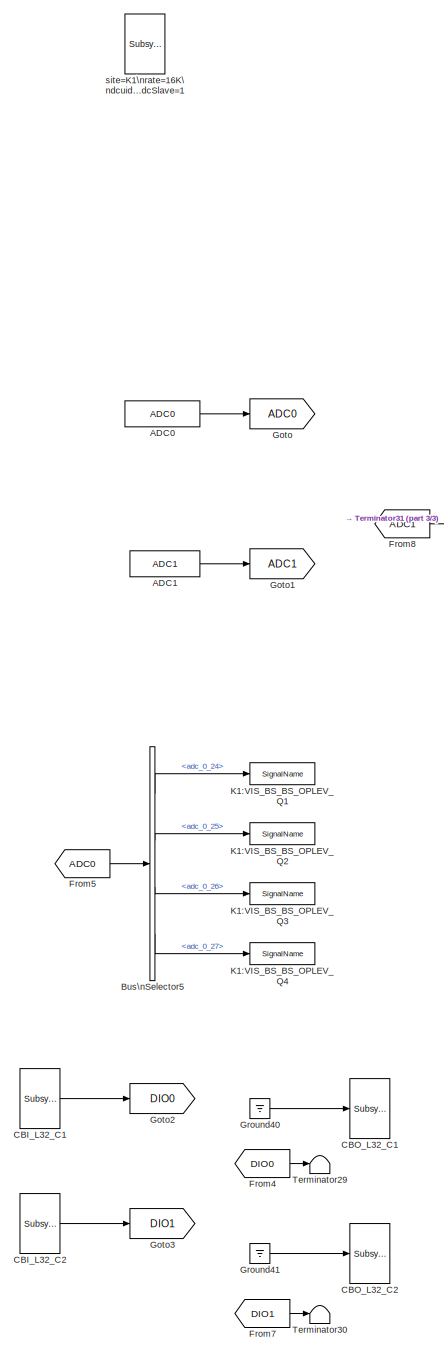
[diagram: root canvas - part 1/3, left side, full height]
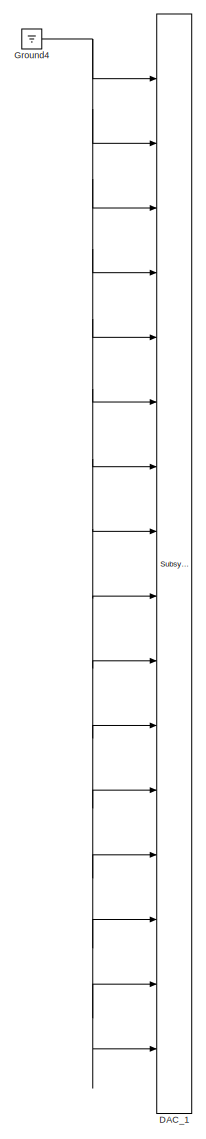
[diagram: root canvas - part 2/3, right side, full height]
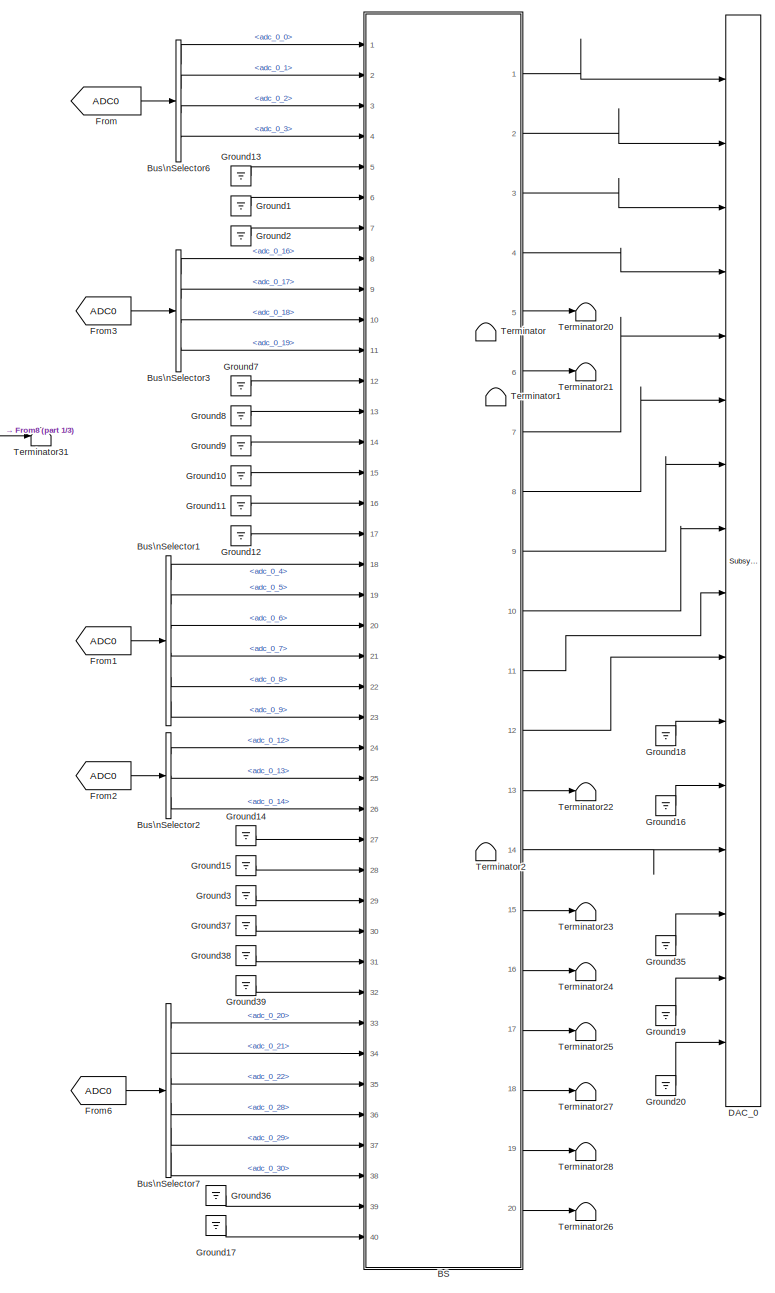
[diagram: root canvas - part 3/3, center side, full height]
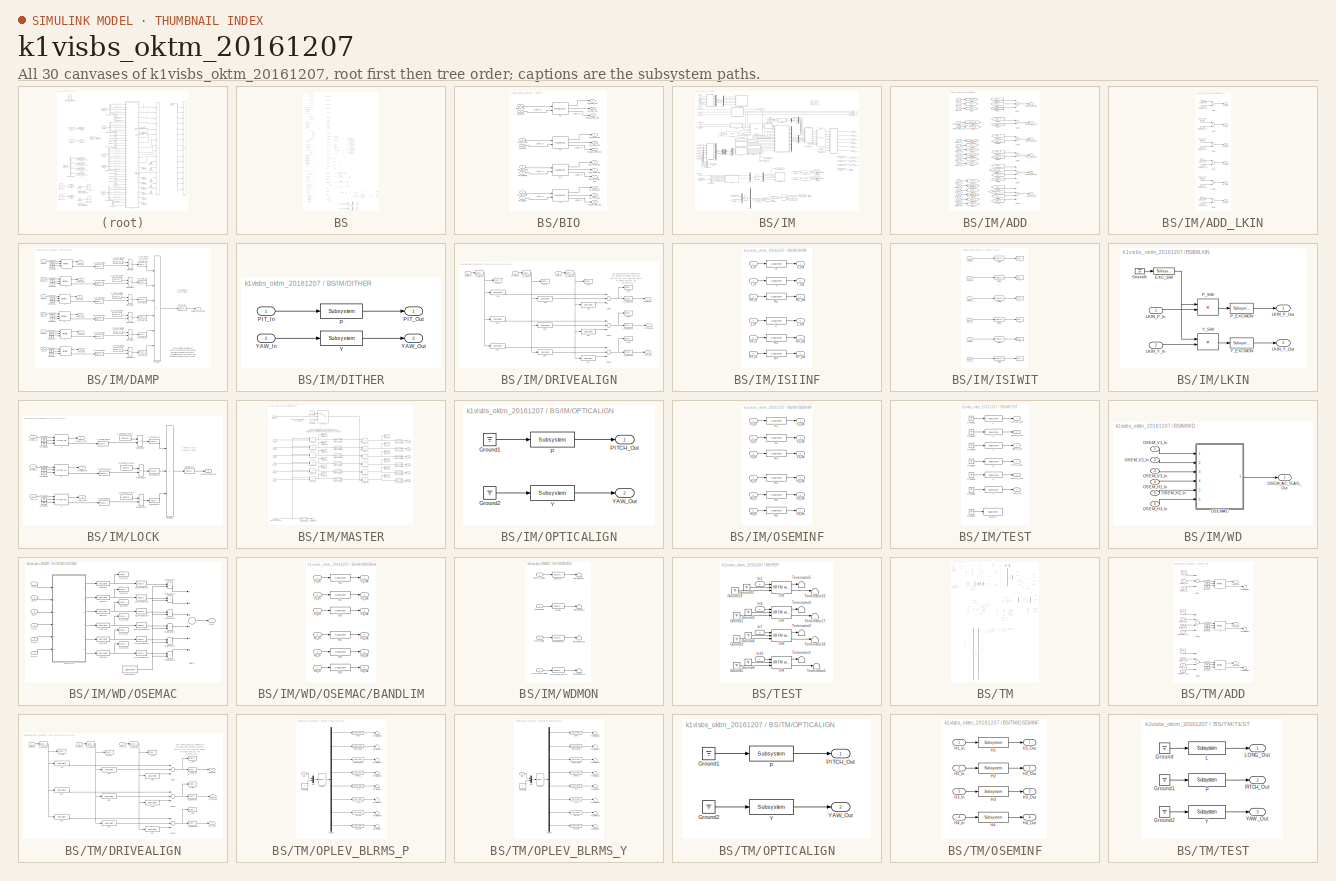
[diagram: thumbnail index - all 30 canvases of the model, root first then tree order]
MODEL k1visbs_oktm_20161207
KIND model
BLOCK [Reference] ADC0  REF=cdsAdcx0/ADC0
  AttributesFormatString = %<Description>\\n%<Tag>
  Description = type-GSC_16AI64SSA\ncard_num=0
  Ports = [0, 1]
  SID = 271
  SourceBlock = cdsAdcx0/ADC0
  SourceType = SubSystem
  Tag = cdsAdc
BLOCK [Reference] ADC1  REF=cdsAdcx1/ADC1
  AttributesFormatString = %<Description>\\n%<Tag>
  Description = type-GSC_16AI64SSA\ncard_num=1
  Ports = [0, 1]
  SID = 497
  SourceBlock = cdsAdcx1/ADC1
  SourceType = SubSystem
  Tag = cdsAdc
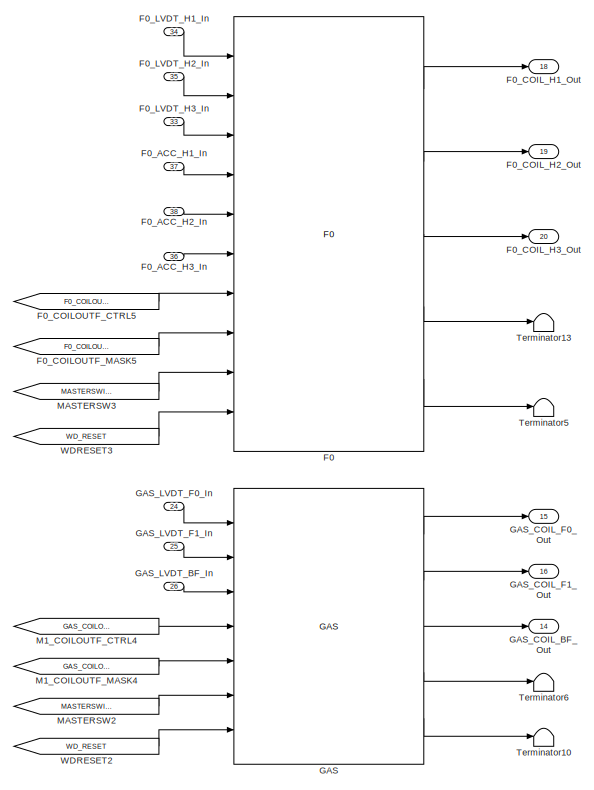
[diagram: BS - part 1/4, top left region]
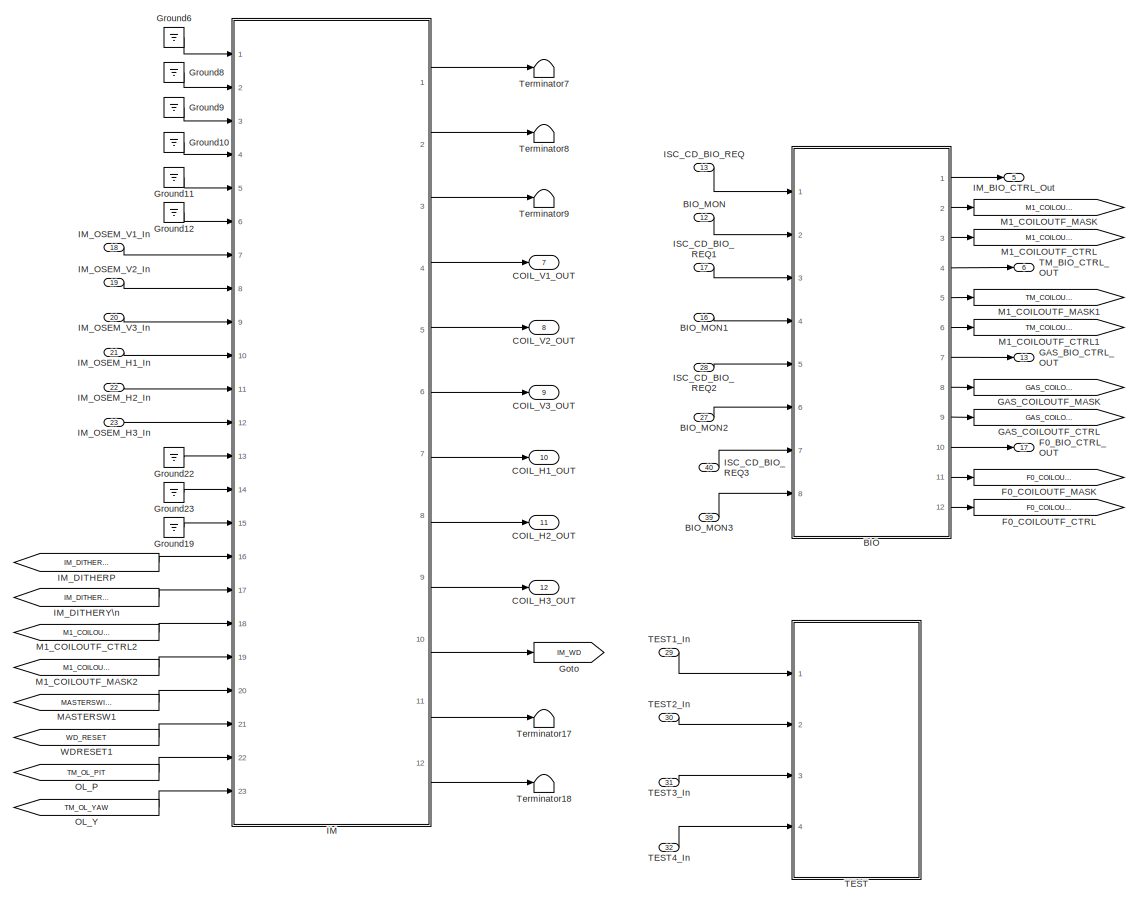
[diagram: BS - part 2/4, central region]
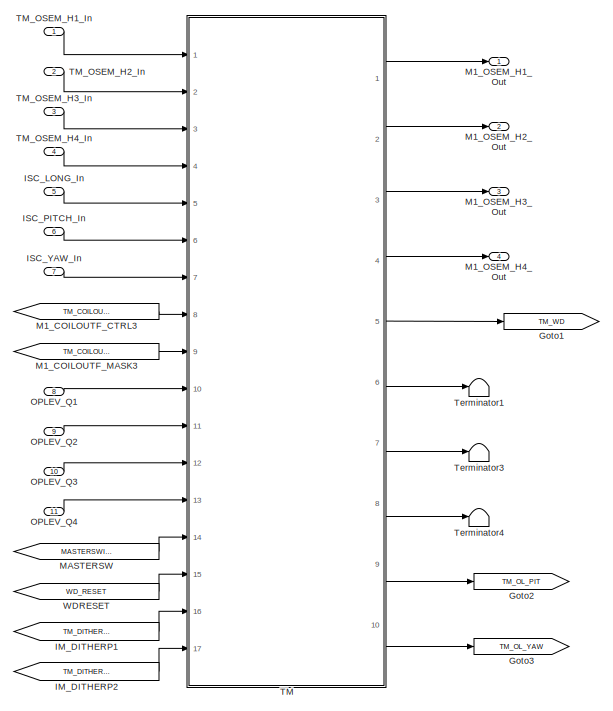
[diagram: BS - part 3/4, bottom left region]
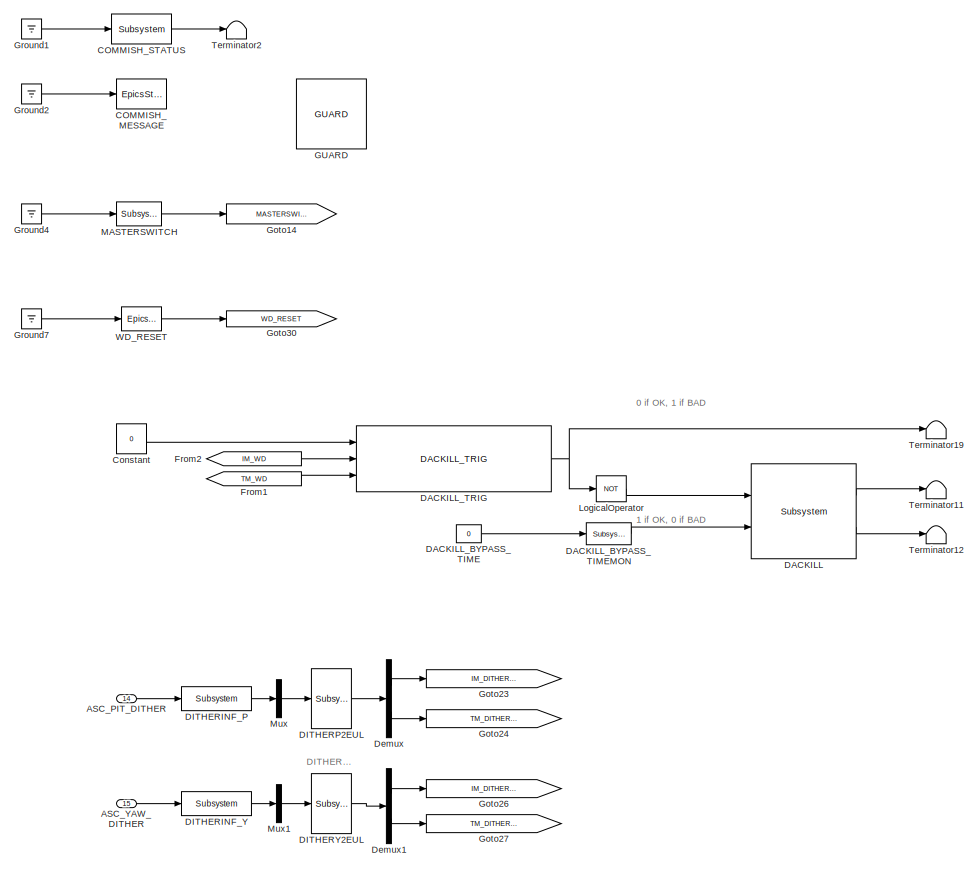
[diagram: BS - part 4/4, bottom right region]
BLOCK [SubSystem] BS
  AncestorBlock = TYPEB_MASTER/TYPEB MASTER
  AttributesFormatString = %<Description>
  Description = TYPEB MASTER
  Ports = [40, 20]
  RequestExecContextInheritance = off
  SID = 473
BLOCK [Inport] BS/ASC_PIT_DITHER
  IconDisplay = Port number
  Port = 14
  SID = 473:15
BLOCK [Inport] BS/ASC_YAW_DITHER
  IconDisplay = Port number
  Port = 15
  SID = 473:16
BLOCK [SubSystem] BS/BIO
  Ports = [8, 12]
  RequestExecContextInheritance = off
  SID = 473:32
BLOCK [Reference] BS/BIO/F0  REF=STATE_BIO_MASTER/TACQ_BIO_MASTER
  Ports = [2, 3]
  SID = 473:202
  SourceBlock = STATE_BIO_MASTER/TACQ_BIO_MASTER
  SourceType = SubSystem
BLOCK [Outport] BS/BIO/F0_BO_CTRL_Out
  IconDisplay = Port number
  Port = 10
  SID = 473:203
BLOCK [Outport] BS/BIO/F0_CTRL_Out
  IconDisplay = Port number
  Port = 12
  SID = 473:205
BLOCK [Inport] BS/BIO/F0_ISC_CTRL
  IconDisplay = Port number
  Port = 7
  SID = 473:200
BLOCK [Outport] BS/BIO/F0_MASK_Out
  IconDisplay = Port number
  Port = 11
  SID = 473:204
BLOCK [Inport] BS/BIO/F0_MON_In
  IconDisplay = Port number
  Port = 8
  SID = 473:201
BLOCK [Reference] BS/BIO/GAS  REF=STATE_BIO_MASTER/TACQ_BIO_MASTER
  Ports = [2, 3]
  SID = 473:39
  SourceBlock = STATE_BIO_MASTER/TACQ_BIO_MASTER
  SourceType = SubSystem
BLOCK [Outport] BS/BIO/GAS_BO_CTRL_Out
  IconDisplay = Port number
  Port = 7
  SID = 473:48
BLOCK [Outport] BS/BIO/GAS_CTRL_Out
  IconDisplay = Port number
  Port = 9
  SID = 473:50
BLOCK [Inport] BS/BIO/GAS_ISC_CTRL
  IconDisplay = Port number
  Port = 5
  SID = 473:37
BLOCK [Outport] BS/BIO/GAS_MASK_Out
  IconDisplay = Port number
  Port = 8
  SID = 473:49
BLOCK [Inport] BS/BIO/GAS_MON_In
  IconDisplay = Port number
  Port = 6
  SID = 473:38
BLOCK [Reference] BS/BIO/IM  REF=STATE_BIO_MASTER/TOP_BIO_MASTER
  Ports = [2, 3]
  SID = 473:40
  SourceBlock = STATE_BIO_MASTER/TOP_BIO_MASTER
  SourceType = SubSystem
BLOCK [Outport] BS/BIO/IM_BO_CTRL_Out
  IconDisplay = Port number
  SID = 473:42
BLOCK [Outport] BS/BIO/IM_CTRL_Out
  IconDisplay = Port number
  Port = 3
  SID = 473:44
BLOCK [Inport] BS/BIO/IM_ISC_CTRL
  IconDisplay = Port number
  SID = 473:33
BLOCK [Outport] BS/BIO/IM_MASK_Out
  IconDisplay = Port number
  Port = 2
  SID = 473:43
BLOCK [Inport] BS/BIO/IM_MON_In
  IconDisplay = Port number
  Port = 2
  SID = 473:34
BLOCK [Reference] BS/BIO/TM  REF=STATE_BIO_MASTER/TACQ_BIO_MASTER
  Ports = [2, 3]
  SID = 473:41
  SourceBlock = STATE_BIO_MASTER/TACQ_BIO_MASTER
  SourceType = SubSystem
BLOCK [Outport] BS/BIO/TM_BO_CTRL_Out
  IconDisplay = Port number
  Port = 4
  SID = 473:45
BLOCK [Outport] BS/BIO/TM_CTRL_Out
  IconDisplay = Port number
  Port = 6
  SID = 473:47
BLOCK [Inport] BS/BIO/TM_ISC_CTRL
  IconDisplay = Port number
  Port = 3
  SID = 473:35
BLOCK [Outport] BS/BIO/TM_MASK_Out
  IconDisplay = Port number
  Port = 5
  SID = 473:46
BLOCK [Inport] BS/BIO/TM_MON_In
  IconDisplay = Port number
  Port = 4
  SID = 473:36
BLOCK [Inport] BS/BIO_MON
  IconDisplay = Port number
  Port = 12
  SID = 473:13
BLOCK [Inport] BS/BIO_MON1
  IconDisplay = Port number
  Port = 16
  SID = 473:17
BLOCK [Inport] BS/BIO_MON2
  IconDisplay = Port number
  Port = 27
  SID = 473:26
BLOCK [Inport] BS/BIO_MON3
  IconDisplay = Port number
  Port = 39
  SID = 473:211
BLOCK [Outport] BS/COIL_H1_OUT
  IconDisplay = Port number
  Port = 10
  SID = 473:176
BLOCK [Outport] BS/COIL_H2_OUT
  IconDisplay = Port number
  Port = 11
  SID = 473:177
BLOCK [Outport] BS/COIL_H3_OUT
  IconDisplay = Port number
  Port = 12
  SID = 473:178
BLOCK [Outport] BS/COIL_V1_OUT
  IconDisplay = Port number
  Port = 7
  SID = 473:173
BLOCK [Outport] BS/COIL_V2_OUT
  IconDisplay = Port number
  Port = 8
  SID = 473:174
BLOCK [Outport] BS/COIL_V3_OUT
  IconDisplay = Port number
  Port = 9
  SID = 473:175
BLOCK [Reference] BS/COMMISH_MESSAGE  REF=cdsEpicsStringIn/EpicsStringIn
  AttributesFormatString = %<Tag>
  Description = cdsEpicsStringIn
  Ports = [1]
  SID = 473:57
  SourceBlock = cdsEpicsStringIn/EpicsStringIn
  SourceType = SubSystem
  Tag = cdsEpicsStringIn
BLOCK [Reference] BS/COMMISH_STATUS  REF=cdsEpicsBinIn/Subsystem
  AttributesFormatString = %<Tag>
  Description = Purpose:                                                                            \nCreate an EPICS binary (0 or 1) input channel to the FE realtime controls.          \n                                                                                    \nOperation:                                                                          \nOutputs value from an EPICS ai record. Value is binary i...<+252ch>  <repeated x4 — deduplicated; at blocks: COMMISH_STATUS, EXC_SW, STATUS, MASTERSWITCH>
  Ports = [1, 1]
  SID = 473:58
  SourceBlock = cdsEpicsBinIn/Subsystem
  SourceType = SubSystem
  Tag = cdsEpicsBinIn
BLOCK [Constant] BS/Constant
  SID = 473:59
  Value = 0
BLOCK [Reference] BS/DACKILL  REF=cdsDacKill/Subsystem
  AttributesFormatString = %<Description>
  Description = cdsDacKill
  Ports = [2, 2]
  SID = 473:60
  SourceBlock = cdsDacKill/Subsystem
  SourceType = SubSystem
BLOCK [Constant] BS/DACKILL_BYPASS_TIME
  SID = 473:61
  Value = 0
BLOCK [Reference] BS/DACKILL_BYPASS_TIMEMON  REF=cdsEpicsOut/Subsystem
  AttributesFormatString = %<Tag>
  Description = Purpose:                                          \nOutput a FE signal to an EPICS channel.           \n                                                  \nOperation:                                        \nTakes input value and passes it to EPICS record.  \n                                                  \nUsage:                                            \nName the part with the desired EPICS...<+14ch>  <repeated x78 — deduplicated; at blocks: DACKILL_BYPASS_TIMEMON, L_STATE_NOW, L_STATE_OK, P_STATE_NOW, P_STATE_OK, R_STATE_NOW, R_STATE_OK, STATE_OK, T_STATE_NOW, T_STATE_OK, V_STATE_NOW, V_STATE_OK, Y_STATE_NOW, Y_STATE_OK, L_INMON, L_OUTMON, +40 more>
  Ports = [1, 1]
  SID = 473:62
  SourceBlock = cdsEpicsOut/Subsystem
  SourceType = SubSystem
  Tag = cdsEpicsOutput
BLOCK [Reference] BS/DACKILL_TRIG  REF=VIS_LIB/DACKILL_TRIG
  Ports = [3, 1]
  SID = 473:63
  SourceBlock = VIS_LIB/DACKILL_TRIG
  SourceType = SubSystem
BLOCK [Reference] BS/DITHERINF_P  REF=cdsFilt/Subsystem
  AttributesFormatString = %<Tag>
  Description = Purpose:                                                                                                                                                                                                                                  \nStandard CDS IIR filter module.                                                                                                                                     ...<+1302ch>  <repeated x57 — deduplicated; at blocks: DITHERINF_P, DITHERINF_Y, P, Y, L2L, L2P, L2Y, P2L, P2P, P2Y, Y2L, Y2P, Y2Y, RX, RY, RZ, +13 more>
  Ports = [1, 1]
  SID = 473:64
  SourceBlock = cdsFilt/Subsystem
  SourceType = SubSystem
  Tag = cdsFilt
BLOCK [Reference] BS/DITHERINF_Y  REF=cdsFilt/Subsystem
  AttributesFormatString = %<Tag>
  Ports = [1, 1]
  SID = 473:65
  SourceBlock = cdsFilt/Subsystem
  SourceType = SubSystem
  Tag = cdsFilt
BLOCK [Reference] BS/DITHERP2EUL  REF=cdsMuxMatrix/Subsystem
  AttributesFormatString = %<Tag>
  Description = Any size matrix. Inputs and outputs must be connected using Mux and Demux parts.
  Ports = [1, 1]
  SID = 473:66
  SourceBlock = cdsMuxMatrix/Subsystem
  SourceType = SubSystem
  Tag = cdsMuxMatrix
BLOCK [Reference] BS/DITHERY2EUL  REF=cdsMuxMatrix/Subsystem
  AttributesFormatString = %<Tag>
  Description = Any size matrix. Inputs and outputs must be connected using Mux and Demux parts.
  Ports = [1, 1]
  SID = 473:67
  SourceBlock = cdsMuxMatrix/Subsystem
  SourceType = SubSystem
  Tag = cdsMuxMatrix
BLOCK [Demux] BS/Demux
  DisplayOption = bar
  Outputs = 2
  Ports = [1, 2]
  SID = 473:68
BLOCK [Demux] BS/Demux1
  DisplayOption = bar
  Outputs = 2
  Ports = [1, 2]
  SID = 473:69
BLOCK [Reference] BS/F0  REF=F0_MASTER/F0
  Ports = [10, 5]
  SID = 473:191
  SourceBlock = F0_MASTER/F0
  SourceType = SubSystem
BLOCK [Inport] BS/F0_ACC_H1_In
  IconDisplay = Port number
  Port = 37
  SID = 473:196
BLOCK [Inport] BS/F0_ACC_H2_In
  IconDisplay = Port number
  Port = 38
  SID = 473:197
BLOCK [Inport] BS/F0_ACC_H3_In
  IconDisplay = Port number
  Port = 36
  SID = 473:195
BLOCK [Outport] BS/F0_BIO_CTRL_OUT
  IconDisplay = Port number
  Port = 17
  SID = 473:210
BLOCK [Goto] BS/F0_COILOUTF_CTRL
  GotoTag = F0_COILOUTF_CTRL
  SID = 473:208
BLOCK [From] BS/F0_COILOUTF_CTRL5
  CloseFcn = tagdialog Close
  GotoTag = F0_COILOUTF_CTRL
  SID = 473:214
BLOCK [Goto] BS/F0_COILOUTF_MASK
  GotoTag = F0_COILOUTF_MASK
  SID = 473:209
BLOCK [From] BS/F0_COILOUTF_MASK5
  CloseFcn = tagdialog Close
  GotoTag = F0_COILOUTF_MASK
  SID = 473:215
BLOCK [Outport] BS/F0_COIL_H1_Out
  IconDisplay = Port number
  Port = 18
  SID = 473:217
BLOCK [Outport] BS/F0_COIL_H2_Out
  IconDisplay = Port number
  Port = 19
  SID = 473:218
BLOCK [Outport] BS/F0_COIL_H3_Out
  IconDisplay = Port number
  Port = 20
  SID = 473:216
BLOCK [Inport] BS/F0_LVDT_H1_In
  IconDisplay = Port number
  Port = 34
  SID = 473:193
BLOCK [Inport] BS/F0_LVDT_H2_In
  IconDisplay = Port number
  Port = 35
  SID = 473:194
BLOCK [Inport] BS/F0_LVDT_H3_In
  IconDisplay = Port number
  Port = 33
  SID = 473:192
BLOCK [From] BS/From1
  CloseFcn = tagdialog Close
  GotoTag = TM_WD
  SID = 473:70
BLOCK [From] BS/From2
  CloseFcn = tagdialog Close
  GotoTag = IM_WD
  SID = 473:71
BLOCK [Reference] BS/GAS  REF=GAS_TYPEB_MASTER/GAS
  Description = GAS_TYPEB_MASTER
  Ports = [7, 5]
  SID = 473:185
  SourceBlock = GAS_TYPEB_MASTER/GAS
  SourceType = SubSystem
  Tag = GAS_TYPEB_MASTER
BLOCK [Outport] BS/GAS_BIO_CTRL_OUT
  IconDisplay = Port number
  Port = 13
  SID = 473:179
BLOCK [Goto] BS/GAS_COILOUTF_CTRL
  GotoTag = GAS_COILOUTF_CTRL
  SID = 473:73
BLOCK [Goto] BS/GAS_COILOUTF_MASK
  GotoTag = GAS_COILOUTF_MASK
  SID = 473:74
BLOCK [Outport] BS/GAS_COIL_BF_Out
  IconDisplay = Port number
  Port = 14
  SID = 473:180
BLOCK [Outport] BS/GAS_COIL_F0_Out
  IconDisplay = Port number
  Port = 15
  SID = 473:188
BLOCK [Outport] BS/GAS_COIL_F1_Out
  IconDisplay = Port number
  Port = 16
  SID = 473:189
BLOCK [Inport] BS/GAS_LVDT_BF_In
  IconDisplay = Port number
  Port = 26
  SID = 473:25
BLOCK [Inport] BS/GAS_LVDT_F0_In
  IconDisplay = Port number
  Port = 24
  SID = 473:186
BLOCK [Inport] BS/GAS_LVDT_F1_In
  IconDisplay = Port number
  Port = 25
  SID = 473:187
BLOCK [Reference] BS/GUARD  REF=ISC_common/GUARD
  Ports = []
  SID = 473:75
  SourceBlock = ISC_common/GUARD
  SourceType = SubSystem
BLOCK [Goto] BS/Goto
  GotoTag = IM_WD
  SID = 473:76
BLOCK [Goto] BS/Goto1
  GotoTag = TM_WD
  SID = 473:77
BLOCK [Goto] BS/Goto14
  GotoTag = MASTERSWITCH
  SID = 473:78
BLOCK [Goto] BS/Goto2
  GotoTag = TM_OL_PIT
  SID = 473:79
BLOCK [Goto] BS/Goto23
  GotoTag = IM_DITHER_PIT
  SID = 473:80
BLOCK [Goto] BS/Goto24
  GotoTag = TM_DITHER_PIT
  SID = 473:81
BLOCK [Goto] BS/Goto26
  GotoTag = IM_DITHER_YAW
  SID = 473:82
BLOCK [Goto] BS/Goto27
  GotoTag = TM_DITHER_YAW
  SID = 473:83
BLOCK [Goto] BS/Goto3
  GotoTag = TM_OL_YAW
  SID = 473:84
BLOCK [Goto] BS/Goto30
  GotoTag = WD_RESET
  SID = 473:85
BLOCK [Ground] BS/Ground1
  SID = 473:86
BLOCK [Ground] BS/Ground10
  SID = 473:87
BLOCK [Ground] BS/Ground11
  SID = 473:88
BLOCK [Ground] BS/Ground12
  SID = 473:89
BLOCK [Ground] BS/Ground19
  SID = 473:90
BLOCK [Ground] BS/Ground2
  SID = 473:91
BLOCK [Ground] BS/Ground22
  SID = 473:92
BLOCK [Ground] BS/Ground23
  SID = 473:93
BLOCK [Ground] BS/Ground4
  SID = 473:94
BLOCK [Ground] BS/Ground6
  SID = 473:95
BLOCK [Ground] BS/Ground7
  SID = 473:96
BLOCK [Ground] BS/Ground8
  SID = 473:97
BLOCK [Ground] BS/Ground9
  SID = 473:98
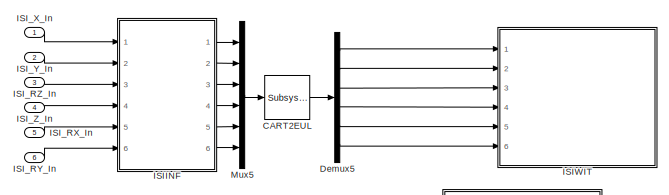
[diagram: BS/IM - part 1/4, top left region]
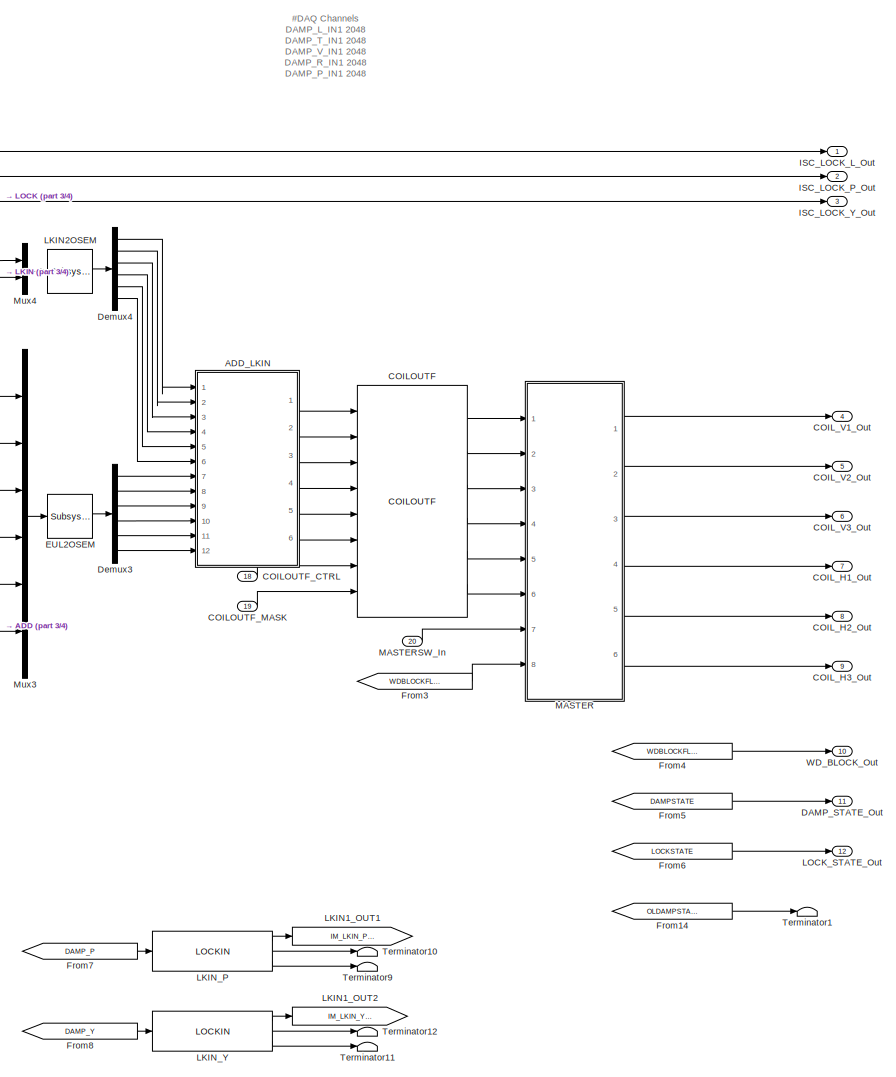
[diagram: BS/IM - part 2/4, middle right region]
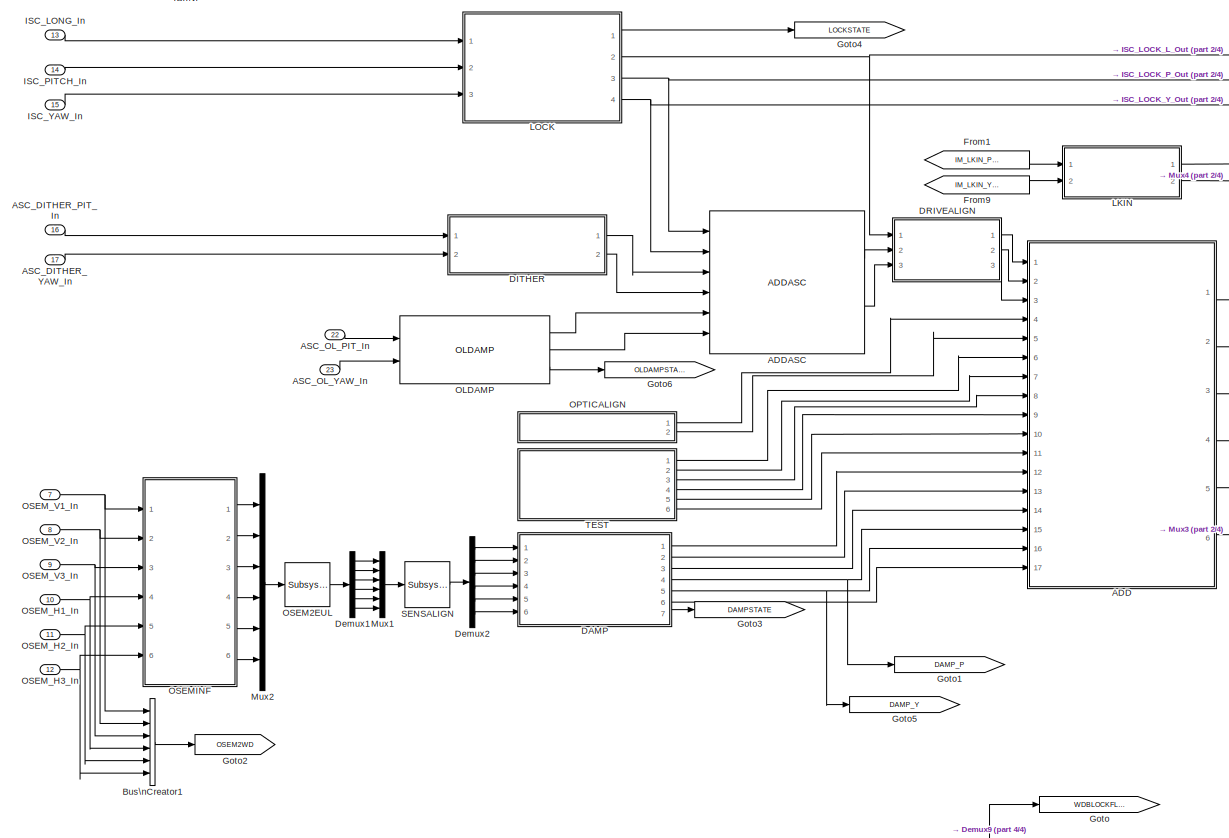
[diagram: BS/IM - part 3/4, middle left region]
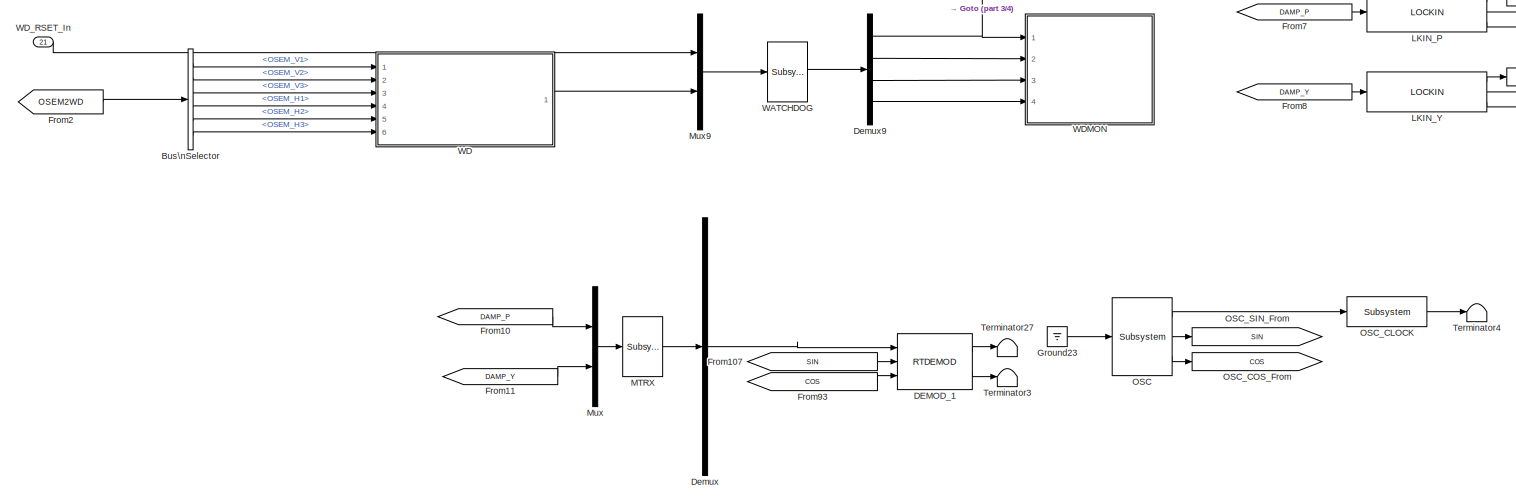
[diagram: BS/IM - part 4/4, bottom center region]
BLOCK [SubSystem] BS/IM
  AncestorBlock = SIXOSEM_F_STAGE_MASTER/SIXOSEM_F_STAGE_MASTER
  Description = SIXOSEMSTAGE_FACE_MASTER
  Ports = [23, 12]
  RequestExecContextInheritance = off
  SID = 473:99
BLOCK [SubSystem] BS/IM/ADD
  Ports = [17, 6]
  RequestExecContextInheritance = off
  SID = 473:99:12
BLOCK [Inport] BS/IM/ADD/DAMP_L_In
  IconDisplay = Port number
  Port = 12
  SID = 473:99:22
BLOCK [Inport] BS/IM/ADD/DAMP_P_In
  IconDisplay = Port number
  Port = 16
  SID = 473:99:26
BLOCK [Inport] BS/IM/ADD/DAMP_R_In
  IconDisplay = Port number
  Port = 15
  SID = 473:99:25
BLOCK [Inport] BS/IM/ADD/DAMP_T_In
  IconDisplay = Port number
  Port = 13
  SID = 473:99:23
BLOCK [Inport] BS/IM/ADD/DAMP_V_In
  IconDisplay = Port number
  Port = 14
  SID = 473:99:24
BLOCK [Inport] BS/IM/ADD/DAMP_Y_In
  IconDisplay = Port number
  Port = 17
  SID = 473:99:27
BLOCK [From] BS/IM/ADD/From1
  CloseFcn = tagdialog Close
  GotoTag = TEST_L
  SID = 473:99:437
BLOCK [From] BS/IM/ADD/From10
  CloseFcn = tagdialog Close
  GotoTag = DAMP_Y
  SID = 473:99:463
BLOCK [From] BS/IM/ADD/From11
  CloseFcn = tagdialog Close
  GotoTag = OPTICALIGN_Y
  SID = 473:99:702
BLOCK [From] BS/IM/ADD/From12
  CloseFcn = tagdialog Close
  GotoTag = TEST_R
  SID = 473:99:465
BLOCK [From] BS/IM/ADD/From13
  CloseFcn = tagdialog Close
  GotoTag = DAMP_R
  SID = 473:99:466
BLOCK [From] BS/IM/ADD/From14
  CloseFcn = tagdialog Close
  GotoTag = TEST_V
  SID = 473:99:467
BLOCK [From] BS/IM/ADD/From15
  CloseFcn = tagdialog Close
  GotoTag = DAMP_V
  SID = 473:99:468
BLOCK [From] BS/IM/ADD/From16
  CloseFcn = tagdialog Close
  GotoTag = TEST_T
  SID = 473:99:469
BLOCK [From] BS/IM/ADD/From17
  CloseFcn = tagdialog Close
  GotoTag = DAMP_T
  SID = 473:99:470
BLOCK [From] BS/IM/ADD/From2
  CloseFcn = tagdialog Close
  GotoTag = ISC_L
  SID = 473:99:436
BLOCK [From] BS/IM/ADD/From3
  CloseFcn = tagdialog Close
  GotoTag = DAMP_L
  SID = 473:99:438
BLOCK [From] BS/IM/ADD/From4
  CloseFcn = tagdialog Close
  GotoTag = TEST_P
  SID = 473:99:457
BLOCK [From] BS/IM/ADD/From5
  CloseFcn = tagdialog Close
  GotoTag = ISC_P
  SID = 473:99:458
BLOCK [From] BS/IM/ADD/From6
  CloseFcn = tagdialog Close
  GotoTag = DAMP_P
  SID = 473:99:459
BLOCK [From] BS/IM/ADD/From7
  CloseFcn = tagdialog Close
  GotoTag = OPTICALIGN_P
  SID = 473:99:701
BLOCK [From] BS/IM/ADD/From8
  CloseFcn = tagdialog Close
  GotoTag = TEST_Y
  SID = 473:99:461
BLOCK [From] BS/IM/ADD/From9
  CloseFcn = tagdialog Close
  GotoTag = ISC_Y
  SID = 473:99:462
BLOCK [Goto] BS/IM/ADD/Goto
  GotoTag = ISC_L
  SID = 473:99:416
BLOCK [Goto] BS/IM/ADD/Goto1
  GotoTag = ISC_P
  SID = 473:99:419
BLOCK [Goto] BS/IM/ADD/Goto10
  GotoTag = TEST_V
  SID = 473:99:429
BLOCK [Goto] BS/IM/ADD/Goto11
  GotoTag = DAMP_V
  SID = 473:99:430
BLOCK [Goto] BS/IM/ADD/Goto12
  GotoTag = DAMP_L
  SID = 473:99:431
BLOCK [Goto] BS/IM/ADD/Goto13
  GotoTag = DAMP_P
  SID = 473:99:432
BLOCK [Goto] BS/IM/ADD/Goto14
  GotoTag = DAMP_Y
  SID = 473:99:433
BLOCK [Goto] BS/IM/ADD/Goto15
  GotoTag = DAMP_T
  SID = 473:99:434
BLOCK [Goto] BS/IM/ADD/Goto16
  GotoTag = DAMP_R
  SID = 473:99:435
BLOCK [Goto] BS/IM/ADD/Goto2
  GotoTag = ISC_Y
  SID = 473:99:420
BLOCK [Goto] BS/IM/ADD/Goto3
  GotoTag = TEST_L
  SID = 473:99:424
BLOCK [Goto] BS/IM/ADD/Goto4
  GotoTag = OPTICALIGN_P
  SID = 473:99:422
BLOCK [Goto] BS/IM/ADD/Goto5
  GotoTag = OPTICALIGN_Y
  SID = 473:99:423
BLOCK [Goto] BS/IM/ADD/Goto6
  GotoTag = TEST_P
  SID = 473:99:425
BLOCK [Goto] BS/IM/ADD/Goto7
  GotoTag = TEST_Y
  SID = 473:99:426
BLOCK [Goto] BS/IM/ADD/Goto8
  GotoTag = TEST_T
  SID = 473:99:427
BLOCK [Goto] BS/IM/ADD/Goto9
  GotoTag = TEST_R
  SID = 473:99:428
BLOCK [Inport] BS/IM/ADD/ISC_L_In
  IconDisplay = Port number
  SID = 473:99:13
BLOCK [Inport] BS/IM/ADD/ISC_P_In
  IconDisplay = Port number
  Port = 2
  SID = 473:99:14
BLOCK [Inport] BS/IM/ADD/ISC_Y_In
  IconDisplay = Port number
  Port = 3
  SID = 473:99:15
BLOCK [Outport] BS/IM/ADD/LONG_MAIN_Out
  IconDisplay = Port number
  SID = 473:99:34
BLOCK [Inport] BS/IM/ADD/OPTICALIGN_P_In
  IconDisplay = Port number
  Port = 4
  SID = 473:99:366
BLOCK [Inport] BS/IM/ADD/OPTICALIGN_Y_In
  IconDisplay = Port number
  Port = 5
  SID = 473:99:367
BLOCK [Outport] BS/IM/ADD/PITCH_MAIN_Out
  IconDisplay = Port number
  Port = 5
  SID = 473:99:38
BLOCK [Outport] BS/IM/ADD/ROLL_MAIN_Out
  IconDisplay = Port number
  Port = 4
  SID = 473:99:37
BLOCK [Sum] BS/IM/ADD/Sum
  InputSameDT = off
  Inputs = +++
  OutDataTypeStr = Inherit: Inherit via internal rule
  Ports = [3, 1]
  SID = 473:99:28
  SaturateOnIntegerOverflow = off
BLOCK [Sum] BS/IM/ADD/Sum1
  InputSameDT = off
  OutDataTypeStr = Inherit: Inherit via internal rule
  Ports = [2, 1]
  SID = 473:99:401
  SaturateOnIntegerOverflow = off
BLOCK [Sum] BS/IM/ADD/Sum2
  InputSameDT = off
  OutDataTypeStr = Inherit: Inherit via internal rule
  Ports = [2, 1]
  SID = 473:99:402
  SaturateOnIntegerOverflow = off
BLOCK [Sum] BS/IM/ADD/Sum3
  InputSameDT = off
  Inputs = ++++
  OutDataTypeStr = Inherit: Inherit via internal rule
  Ports = [4, 1]
  SID = 473:99:31
  SaturateOnIntegerOverflow = off
BLOCK [Sum] BS/IM/ADD/Sum4
  InputSameDT = off
  Inputs = ++++
  OutDataTypeStr = Inherit: Inherit via internal rule
  Ports = [4, 1]
  SID = 473:99:32
  SaturateOnIntegerOverflow = off
BLOCK [Sum] BS/IM/ADD/Sum5
  InputSameDT = off
  OutDataTypeStr = Inherit: Inherit via internal rule
  Ports = [2, 1]
  SID = 473:99:403
  SaturateOnIntegerOverflow = off
BLOCK [Inport] BS/IM/ADD/TEST_L_In
  IconDisplay = Port number
  Port = 6
  SID = 473:99:16
BLOCK [Inport] BS/IM/ADD/TEST_P_In
  IconDisplay = Port number
  Port = 10
  SID = 473:99:20
BLOCK [Inport] BS/IM/ADD/TEST_R_In
  IconDisplay = Port number
  Port = 9
  SID = 473:99:19
BLOCK [Inport] BS/IM/ADD/TEST_T_In
  IconDisplay = Port number
  Port = 7
  SID = 473:99:17
BLOCK [Inport] BS/IM/ADD/TEST_V_In
  IconDisplay = Port number
  Port = 8
  SID = 473:99:18
BLOCK [Inport] BS/IM/ADD/TEST_Y_In
  IconDisplay = Port number
  Port = 11
  SID = 473:99:21
BLOCK [Outport] BS/IM/ADD/TRANS_MAIN_Out
  IconDisplay = Port number
  Port = 2
  SID = 473:99:35
BLOCK [Outport] BS/IM/ADD/VERT_MAIN_Out
  IconDisplay = Port number
  Port = 3
  SID = 473:99:36
BLOCK [Outport] BS/IM/ADD/YAW_MAIN_Out
  IconDisplay = Port number
  Port = 6
  SID = 473:99:39
BLOCK [Reference] BS/IM/ADDASC  REF=VIS_LIB/ADDASC
  Ports = [6, 2]
  SID = 473:99:923
  SourceBlock = VIS_LIB/ADDASC
  SourceType = SubSystem
BLOCK [SubSystem] BS/IM/ADD_LKIN
  Ports = [12, 6]
  RequestExecContextInheritance = off
  SID = 473:99:775
BLOCK [Outport] BS/IM/ADD_LKIN/H1_Out
  IconDisplay = Port number
  Port = 4
  SID = 473:99:791
BLOCK [Outport] BS/IM/ADD_LKIN/H2_Out
  IconDisplay = Port number
  Port = 5
  SID = 473:99:798
BLOCK [Outport] BS/IM/ADD_LKIN/H3_Out
  IconDisplay = Port number
  Port = 6
  SID = 473:99:799
BLOCK [Inport] BS/IM/ADD_LKIN/LKIN_H1_In
  IconDisplay = Port number
  Port = 4
  SID = 473:99:779
BLOCK [Inport] BS/IM/ADD_LKIN/LKIN_H2_In
  IconDisplay = Port number
  Port = 5
  SID = 473:99:792
BLOCK [Inport] BS/IM/ADD_LKIN/LKIN_H3_In
  IconDisplay = Port number
  Port = 6
  SID = 473:99:793
BLOCK [Inport] BS/IM/ADD_LKIN/LKIN_V3_In
  IconDisplay = Port number
  Port = 3
  SID = 473:99:778
BLOCK [Inport] BS/IM/ADD_LKIN/LKN_V1_In
  IconDisplay = Port number
  SID = 473:99:776
BLOCK [Inport] BS/IM/ADD_LKIN/LKN_V2_In
  IconDisplay = Port number
  Port = 2
  SID = 473:99:777
BLOCK [Inport] BS/IM/ADD_LKIN/OSEM_H1_In
  IconDisplay = Port number
  Port = 10
  SID = 473:99:783
BLOCK [Inport] BS/IM/ADD_LKIN/OSEM_H2_In
  IconDisplay = Port number
  Port = 11
  SID = 473:99:794
BLOCK [Inport] BS/IM/ADD_LKIN/OSEM_H3_In
  IconDisplay = Port number
  Port = 12
  SID = 473:99:795
BLOCK [Inport] BS/IM/ADD_LKIN/OSEM_V1_In
  IconDisplay = Port number
  Port = 7
  SID = 473:99:780
BLOCK [Inport] BS/IM/ADD_LKIN/OSEM_V2_In
  IconDisplay = Port number
  Port = 8
  SID = 473:99:781
BLOCK [Inport] BS/IM/ADD_LKIN/OSEM_V3_In
  IconDisplay = Port number
  Port = 9
  SID = 473:99:782
BLOCK [Sum] BS/IM/ADD_LKIN/Sum
  InputSameDT = off
  OutDataTypeStr = Inherit: Inherit via internal rule
  Ports = [2, 1]
  SID = 473:99:784
  SaturateOnIntegerOverflow = off
BLOCK [Sum] BS/IM/ADD_LKIN/Sum1
  InputSameDT = off
  OutDataTypeStr = Inherit: Inherit via internal rule
  Ports = [2, 1]
  SID = 473:99:785
  SaturateOnIntegerOverflow = off
BLOCK [Sum] BS/IM/ADD_LKIN/Sum2
  InputSameDT = off
  OutDataTypeStr = Inherit: Inherit via internal rule
  Ports = [2, 1]
  SID = 473:99:796
  SaturateOnIntegerOverflow = off
BLOCK [Sum] BS/IM/ADD_LKIN/Sum3
  InputSameDT = off
  OutDataTypeStr = Inherit: Inherit via internal rule
  Ports = [2, 1]
  SID = 473:99:786
  SaturateOnIntegerOverflow = off
BLOCK [Sum] BS/IM/ADD_LKIN/Sum4
  InputSameDT = off
  OutDataTypeStr = Inherit: Inherit via internal rule
  Ports = [2, 1]
  SID = 473:99:787
  SaturateOnIntegerOverflow = off
BLOCK [Sum] BS/IM/ADD_LKIN/Sum5
  InputSameDT = off
  OutDataTypeStr = Inherit: Inherit via internal rule
  Ports = [2, 1]
  SID = 473:99:797
  SaturateOnIntegerOverflow = off
BLOCK [Outport] BS/IM/ADD_LKIN/V1_Out
  IconDisplay = Port number
  SID = 473:99:788
BLOCK [Outport] BS/IM/ADD_LKIN/V2_Out
  IconDisplay = Port number
  Port = 2
  SID = 473:99:789
BLOCK [Outport] BS/IM/ADD_LKIN/V3_Out
  IconDisplay = Port number
  Port = 3
  SID = 473:99:790
BLOCK [Inport] BS/IM/ASC_DITHER_PIT_In
  IconDisplay = Port number
  Port = 16
  SID = 473:99:864
BLOCK [Inport] BS/IM/ASC_DITHER_YAW_In
  IconDisplay = Port number
  Port = 17
  SID = 473:99:865
BLOCK [Inport] BS/IM/ASC_OL_PIT_In
  IconDisplay = Port number
  Port = 22
  SID = 473:99:930
BLOCK [Inport] BS/IM/ASC_OL_YAW_In
  IconDisplay = Port number
  Port = 23
  SID = 473:99:931
BLOCK [BusCreator] BS/IM/Bus\nCreator1
  DisplayOption = bar
  Inputs = 'OSEM_V1','OSEM_V2','OSEM_V3','OSEM_H1','OSEM_H2','OSEM_H3'
  Ports = [6, 1]
  SID = 473:99:40
BLOCK [BusSelector] BS/IM/Bus\nSelector
  OutputSignals = OSEM_V1,OSEM_V2,OSEM_V3,OSEM_H1,OSEM_H2,OSEM_H3
  Ports = [1, 6]
  SID = 473:99:42
BLOCK [Reference] BS/IM/CART2EUL  REF=cdsMuxMatrix/Subsystem
  AttributesFormatString = %<Tag>
  Description = Any size matrix. Inputs and outputs must be connected using Mux and Demux parts.
  Ports = [1, 1]
  SID = 473:99:546
  SourceBlock = cdsMuxMatrix/Subsystem
  SourceType = SubSystem
  Tag = cdsMuxMatrix
BLOCK [Reference] BS/IM/COILOUTF  REF=SIXOSEM_F_COILOUTF_MASTER/COILOUTF
  Ports = [8, 6]
  SID = 473:99:358
  SourceBlock = SIXOSEM_F_COILOUTF_MASTER/COILOUTF
  SourceType = SubSystem
BLOCK [Inport] BS/IM/COILOUTF_CTRL
  IconDisplay = Port number
  Port = 18
  SID = 473:99:364
BLOCK [Inport] BS/IM/COILOUTF_MASK
  IconDisplay = Port number
  Port = 19
  SID = 473:99:365
BLOCK [Outport] BS/IM/COIL_H1_Out
  IconDisplay = Port number
  Port = 7
  SID = 473:99:352
BLOCK [Outport] BS/IM/COIL_H2_Out
  IconDisplay = Port number
  Port = 8
  SID = 473:99:353
BLOCK [Outport] BS/IM/COIL_H3_Out
  IconDisplay = Port number
  Port = 9
  SID = 473:99:354
BLOCK [Outport] BS/IM/COIL_V1_Out
  IconDisplay = Port number
  Port = 4
  SID = 473:99:349
BLOCK [Outport] BS/IM/COIL_V2_Out
  IconDisplay = Port number
  Port = 5
  SID = 473:99:350
BLOCK [Outport] BS/IM/COIL_V3_Out
  IconDisplay = Port number
  Port = 6
  SID = 473:99:351
BLOCK [SubSystem] BS/IM/DAMP
  Ports = [6, 7]
  RequestExecContextInheritance = off
  SID = 473:99:45
BLOCK [Outport] BS/IM/DAMP/DAMP_STATE_Out
  IconDisplay = Port number
  Port = 7
  SID = 473:99:695
BLOCK [Ground] BS/IM/DAMP/Ground1
  SID = 473:99:652
BLOCK [Ground] BS/IM/DAMP/Ground10
  SID = 473:99:872
BLOCK [Ground] BS/IM/DAMP/Ground11
  SID = 473:99:874
BLOCK [Ground] BS/IM/DAMP/Ground12
  SID = 473:99:875
BLOCK [Ground] BS/IM/DAMP/Ground2
  SID = 473:99:653
BLOCK [Ground] BS/IM/DAMP/Ground3
  SID = 473:99:654
BLOCK [Ground] BS/IM/DAMP/Ground4
  SID = 473:99:655
BLOCK [Ground] BS/IM/DAMP/Ground5
  SID = 473:99:656
BLOCK [Ground] BS/IM/DAMP/Ground6
  SID = 473:99:657
BLOCK [Ground] BS/IM/DAMP/Ground7
  SID = 473:99:869
BLOCK [Ground] BS/IM/DAMP/Ground8
  SID = 473:99:870
BLOCK [Ground] BS/IM/DAMP/Ground9
  SID = 473:99:871
BLOCK [Reference] BS/IM/DAMP/L  REF=cdsFiltCtrl/IIR FM with control
  AttributesFormatString = %<Tag>
  Description = cdsFiltCntrl is the standard IIR filter module (exactly the same as cdsFilt) but with added control data output 'Ctrl'. Filter module digital signal output appears on the first output, which is called 'Val'. 'Ctrl' output has a bit pattern encoding the state of filter's on/off switches (FM1 through FM10). The bit values are:\n                                                                        ...<+4621ch>  <repeated x16 — deduplicated; at blocks: L, P, R, T, V, Y, CH1, CH2, CH3, CH4>
  Ports = [3, 2]
  SID = 473:99:677
  SourceBlock = cdsFiltCtrl/IIR FM with control
  SourceType = SubSystem
  Tag = cdsFiltCtrl
BLOCK [Inport] BS/IM/DAMP/LONG_In
  IconDisplay = Port number
  SID = 473:99:646
BLOCK [Outport] BS/IM/DAMP/LONG_Out
  IconDisplay = Port number
  SID = 473:99:689
BLOCK [Reference] BS/IM/DAMP/L_STATE_GOOD  REF=cdsEpicsIn/Subsystem
  AttributesFormatString = %<Tag>
  Description = Purpose:                                                                              \nCreate an EPICS input channel connection to the FE realtime controls.                 \n                                                                                      \nOperation:                                                                            \nOutputs value from an EPICS ai record. Value is ...<+266ch>  <repeated x10 — deduplicated; at blocks: L_STATE_GOOD, P_STATE_GOOD, R_STATE_GOOD, T_STATE_GOOD, V_STATE_GOOD, Y_STATE_GOOD, RMS_MAX>
  Ports = [0, 1]
  SID = 473:99:678
  SourceBlock = cdsEpicsIn/Subsystem
  SourceType = SubSystem
  Tag = cdsEpicsIn
BLOCK [Reference] BS/IM/DAMP/L_STATE_NOW  REF=cdsEpicsOut/Subsystem
  AttributesFormatString = %<Tag>
  Ports = [1, 1]
  SID = 473:99:679
  SourceBlock = cdsEpicsOut/Subsystem
  SourceType = SubSystem
  Tag = cdsEpicsOutput
BLOCK [Reference] BS/IM/DAMP/L_STATE_OK  REF=cdsEpicsOut/Subsystem
  AttributesFormatString = %<Tag>
  Ports = [1, 1]
  SID = 473:99:817
  SourceBlock = cdsEpicsOut/Subsystem
  SourceType = SubSystem
  Tag = cdsEpicsOutput
BLOCK [RelationalOperator] BS/IM/DAMP/Operator
  InputSameDT = off
  Operator = ==
  OutDataTypeStr = boolean
  Ports = [2, 1]
  SID = 473:99:658
BLOCK [RelationalOperator] BS/IM/DAMP/Operator1
  InputSameDT = off
  Operator = ==
  OutDataTypeStr = boolean
  Ports = [2, 1]
  SID = 473:99:659
BLOCK [RelationalOperator] BS/IM/DAMP/Operator2
  InputSameDT = off
  Operator = ==
  OutDataTypeStr = boolean
  Ports = [2, 1]
  SID = 473:99:660
BLOCK [RelationalOperator] BS/IM/DAMP/Operator3
  InputSameDT = off
  Operator = ==
  OutDataTypeStr = boolean
  Ports = [2, 1]
  SID = 473:99:661
BLOCK [RelationalOperator] BS/IM/DAMP/Operator4
  InputSameDT = off
  Operator = ==
  OutDataTypeStr = boolean
  Ports = [2, 1]
  SID = 473:99:662
BLOCK [RelationalOperator] BS/IM/DAMP/Operator5
  InputSameDT = off
  Operator = ==
  OutDataTypeStr = boolean
  Ports = [2, 1]
  SID = 473:99:663
BLOCK [Reference] BS/IM/DAMP/P  REF=cdsFiltCtrl/IIR FM with control
  AttributesFormatString = %<Tag>
  Ports = [3, 2]
  SID = 473:99:665
  SourceBlock = cdsFiltCtrl/IIR FM with control
  SourceType = SubSystem
  Tag = cdsFiltCtrl
BLOCK [Inport] BS/IM/DAMP/PITCH_In
  IconDisplay = Port number
  Port = 5
  SID = 473:99:650
BLOCK [Outport] BS/IM/DAMP/PITCH_Out
  IconDisplay = Port number
  Port = 5
  SID = 473:99:693
BLOCK [Reference] BS/IM/DAMP/P_STATE_GOOD  REF=cdsEpicsIn/Subsystem
  AttributesFormatString = %<Tag>
  Ports = [0, 1]
  SID = 473:99:666
  SourceBlock = cdsEpicsIn/Subsystem
  SourceType = SubSystem
  Tag = cdsEpicsIn
BLOCK [Reference] BS/IM/DAMP/P_STATE_NOW  REF=cdsEpicsOut/Subsystem
  AttributesFormatString = %<Tag>
  Ports = [1, 1]
  SID = 473:99:667
  SourceBlock = cdsEpicsOut/Subsystem
  SourceType = SubSystem
  Tag = cdsEpicsOutput
BLOCK [Reference] BS/IM/DAMP/P_STATE_OK  REF=cdsEpicsOut/Subsystem
  AttributesFormatString = %<Tag>
  Ports = [1, 1]
  SID = 473:99:821
  SourceBlock = cdsEpicsOut/Subsystem
  SourceType = SubSystem
  Tag = cdsEpicsOutput
BLOCK [Product] BS/IM/DAMP/Product
  InputSameDT = off
  Inputs = 6
  OutDataTypeStr = Inherit: Inherit via internal rule
  Ports = [6, 1]
  SID = 473:99:664
  SaturateOnIntegerOverflow = off
BLOCK [Reference] BS/IM/DAMP/R  REF=cdsFiltCtrl/IIR FM with control
  AttributesFormatString = %<Tag>
  Ports = [3, 2]
  SID = 473:99:685
  SourceBlock = cdsFiltCtrl/IIR FM with control
  SourceType = SubSystem
  Tag = cdsFiltCtrl
BLOCK [Inport] BS/IM/DAMP/ROLL_In
  IconDisplay = Port number
  Port = 4
  SID = 473:99:649
BLOCK [Outport] BS/IM/DAMP/ROLL_Out
  IconDisplay = Port number
  Port = 4
  SID = 473:99:692
BLOCK [Reference] BS/IM/DAMP/R_STATE_GOOD  REF=cdsEpicsIn/Subsystem
  AttributesFormatString = %<Tag>
  Ports = [0, 1]
  SID = 473:99:686
  SourceBlock = cdsEpicsIn/Subsystem
  SourceType = SubSystem
  Tag = cdsEpicsIn
BLOCK [Reference] BS/IM/DAMP/R_STATE_NOW  REF=cdsEpicsOut/Subsystem
  AttributesFormatString = %<Tag>
  Ports = [1, 1]
  SID = 473:99:687
  SourceBlock = cdsEpicsOut/Subsystem
  SourceType = SubSystem
  Tag = cdsEpicsOutput
BLOCK [Reference] BS/IM/DAMP/R_STATE_OK  REF=cdsEpicsOut/Subsystem
  AttributesFormatString = %<Tag>
  Ports = [1, 1]
  SID = 473:99:820
  SourceBlock = cdsEpicsOut/Subsystem
  SourceType = SubSystem
  Tag = cdsEpicsOutput
BLOCK [Reference] BS/IM/DAMP/STATE_OK  REF=cdsEpicsOut/Subsystem
  AttributesFormatString = %<Tag>
  Ports = [1, 1]
  SID = 473:99:696
  SourceBlock = cdsEpicsOut/Subsystem
  SourceType = SubSystem
  Tag = cdsEpicsOutput
BLOCK [Reference] BS/IM/DAMP/T  REF=cdsFiltCtrl/IIR FM with control
  AttributesFormatString = %<Tag>
  Ports = [3, 2]
  SID = 473:99:681
  SourceBlock = cdsFiltCtrl/IIR FM with control
  SourceType = SubSystem
  Tag = cdsFiltCtrl
BLOCK [Inport] BS/IM/DAMP/TRANS_In
  IconDisplay = Port number
  Port = 2
  SID = 473:99:647
BLOCK [Outport] BS/IM/DAMP/TRANS_Out
  IconDisplay = Port number
  Port = 2
  SID = 473:99:690
BLOCK [Reference] BS/IM/DAMP/T_STATE_GOOD  REF=cdsEpicsIn/Subsystem
  AttributesFormatString = %<Tag>
  Ports = [0, 1]
  SID = 473:99:682
  SourceBlock = cdsEpicsIn/Subsystem
  SourceType = SubSystem
  Tag = cdsEpicsIn
BLOCK [Reference] BS/IM/DAMP/T_STATE_NOW  REF=cdsEpicsOut/Subsystem
  AttributesFormatString = %<Tag>
  Ports = [1, 1]
  SID = 473:99:683
  SourceBlock = cdsEpicsOut/Subsystem
  SourceType = SubSystem
  Tag = cdsEpicsOutput
BLOCK [Reference] BS/IM/DAMP/T_STATE_OK  REF=cdsEpicsOut/Subsystem
  AttributesFormatString = %<Tag>
  Ports = [1, 1]
  SID = 473:99:818
  SourceBlock = cdsEpicsOut/Subsystem
  SourceType = SubSystem
  Tag = cdsEpicsOutput
BLOCK [Reference] BS/IM/DAMP/V  REF=cdsFiltCtrl/IIR FM with control
  AttributesFormatString = %<Tag>
  Ports = [3, 2]
  SID = 473:99:673
  SourceBlock = cdsFiltCtrl/IIR FM with control
  SourceType = SubSystem
  Tag = cdsFiltCtrl
BLOCK [Inport] BS/IM/DAMP/VERT_In
  IconDisplay = Port number
  Port = 3
  SID = 473:99:648
BLOCK [Outport] BS/IM/DAMP/VERT_Out
  IconDisplay = Port number
  Port = 3
  SID = 473:99:691
BLOCK [Reference] BS/IM/DAMP/V_STATE_GOOD  REF=cdsEpicsIn/Subsystem
  AttributesFormatString = %<Tag>
  Ports = [0, 1]
  SID = 473:99:674
  SourceBlock = cdsEpicsIn/Subsystem
  SourceType = SubSystem
  Tag = cdsEpicsIn
BLOCK [Reference] BS/IM/DAMP/V_STATE_NOW  REF=cdsEpicsOut/Subsystem
  AttributesFormatString = %<Tag>
  Ports = [1, 1]
  SID = 473:99:675
  SourceBlock = cdsEpicsOut/Subsystem
  SourceType = SubSystem
  Tag = cdsEpicsOutput
BLOCK [Reference] BS/IM/DAMP/V_STATE_OK  REF=cdsEpicsOut/Subsystem
  AttributesFormatString = %<Tag>
  Ports = [1, 1]
  SID = 473:99:819
  SourceBlock = cdsEpicsOut/Subsystem
  SourceType = SubSystem
  Tag = cdsEpicsOutput
BLOCK [Reference] BS/IM/DAMP/Y  REF=cdsFiltCtrl/IIR FM with control
  AttributesFormatString = %<Tag>
  Ports = [3, 2]
  SID = 473:99:669
  SourceBlock = cdsFiltCtrl/IIR FM with control
  SourceType = SubSystem
  Tag = cdsFiltCtrl
BLOCK [Inport] BS/IM/DAMP/YAW_In
  IconDisplay = Port number
  Port = 6
  SID = 473:99:651
BLOCK [Outport] BS/IM/DAMP/YAW_Out
  IconDisplay = Port number
  Port = 6
  SID = 473:99:694
BLOCK [Reference] BS/IM/DAMP/Y_STATE_GOOD  REF=cdsEpicsIn/Subsystem
  AttributesFormatString = %<Tag>
  Ports = [0, 1]
  SID = 473:99:670
  SourceBlock = cdsEpicsIn/Subsystem
  SourceType = SubSystem
  Tag = cdsEpicsIn
BLOCK [Reference] BS/IM/DAMP/Y_STATE_NOW  REF=cdsEpicsOut/Subsystem
  AttributesFormatString = %<Tag>
  Ports = [1, 1]
  SID = 473:99:671
  SourceBlock = cdsEpicsOut/Subsystem
  SourceType = SubSystem
  Tag = cdsEpicsOutput
BLOCK [Reference] BS/IM/DAMP/Y_STATE_OK  REF=cdsEpicsOut/Subsystem
  AttributesFormatString = %<Tag>
  Ports = [1, 1]
  SID = 473:99:822
  SourceBlock = cdsEpicsOut/Subsystem
  SourceType = SubSystem
  Tag = cdsEpicsOutput
BLOCK [Outport] BS/IM/DAMP_STATE_Out
  IconDisplay = Port number
  Port = 11
  SID = 473:99:697
BLOCK [Reference] BS/IM/DEMOD_1  REF=rtdemod/RTDEMOD
  Ports = [3, 2]
  SID = 473:99:905
  SourceBlock = rtdemod/RTDEMOD
  SourceType = SubSystem
  Tag = top_names
BLOCK [SubSystem] BS/IM/DITHER
  Ports = [2, 2]
  RequestExecContextInheritance = off
  SID = 473:99:840
BLOCK [Reference] BS/IM/DITHER/P  REF=cdsFilt/Subsystem
  AttributesFormatString = %<Tag>
  Ports = [1, 1]
  SID = 473:99:843
  SourceBlock = cdsFilt/Subsystem
  SourceType = SubSystem
  Tag = cdsFilt
BLOCK [Inport] BS/IM/DITHER/PIT_In
  IconDisplay = Port number
  SID = 473:99:841
BLOCK [Outport] BS/IM/DITHER/PIT_Out
  IconDisplay = Port number
  SID = 473:99:845
BLOCK [Reference] BS/IM/DITHER/Y  REF=cdsFilt/Subsystem
  AttributesFormatString = %<Tag>
  Ports = [1, 1]
  SID = 473:99:844
  SourceBlock = cdsFilt/Subsystem
  SourceType = SubSystem
  Tag = cdsFilt
BLOCK [Inport] BS/IM/DITHER/YAW_In
  IconDisplay = Port number
  Port = 2
  SID = 473:99:842
BLOCK [Outport] BS/IM/DITHER/YAW_Out
  IconDisplay = Port number
  Port = 2
  SID = 473:99:846
BLOCK [SubSystem] BS/IM/DRIVEALIGN
  Ports = [3, 3]
  RequestExecContextInheritance = off
  SID = 473:99:709
BLOCK [Reference] BS/IM/DRIVEALIGN/L2L  REF=cdsFilt/Subsystem
  AttributesFormatString = %<Tag>
  Ports = [1, 1]
  SID = 473:99:713
  SourceBlock = cdsFilt/Subsystem
  SourceType = SubSystem
  Tag = cdsFilt
BLOCK [Reference] BS/IM/DRIVEALIGN/L2P  REF=cdsFilt/Subsystem
  AttributesFormatString = %<Tag>
  Ports = [1, 1]
  SID = 473:99:714
  SourceBlock = cdsFilt/Subsystem
  SourceType = SubSystem
  Tag = cdsFilt
BLOCK [Reference] BS/IM/DRIVEALIGN/L2Y  REF=cdsFilt/Subsystem
  AttributesFormatString = %<Tag>
  Ports = [1, 1]
  SID = 473:99:715
  SourceBlock = cdsFilt/Subsystem
  SourceType = SubSystem
  Tag = cdsFilt
BLOCK [Inport] BS/IM/DRIVEALIGN/LONG_In
  IconDisplay = Port number
  SID = 473:99:710
BLOCK [Outport] BS/IM/DRIVEALIGN/LONG_Out
  IconDisplay = Port number
  SID = 473:99:737
BLOCK [Reference] BS/IM/DRIVEALIGN/L_IN  REF=cdsTP/Subsystem
  AttributesFormatString = %<Tag>
  Ports = [1]
  SID = 473:99:716
  SourceBlock = cdsTP/Subsystem
  SourceType = SubSystem
  Tag = Test Point
BLOCK [Reference] BS/IM/DRIVEALIGN/L_INMON  REF=cdsEpicsOut/Subsystem
  AttributesFormatString = %<Tag>
  Ports = [1, 1]
  SID = 473:99:717
  SourceBlock = cdsEpicsOut/Subsystem
  SourceType = SubSystem
  Tag = cdsEpicsOutput
BLOCK [Reference] BS/IM/DRIVEALIGN/L_OUT  REF=cdsTP/Subsystem
  AttributesFormatString = %<Tag>
  Ports = [1]
  SID = 473:99:718
  SourceBlock = cdsTP/Subsystem
  SourceType = SubSystem
  Tag = Test Point
BLOCK [Reference] BS/IM/DRIVEALIGN/L_OUTMON  REF=cdsEpicsOut/Subsystem
  AttributesFormatString = %<Tag>
  Ports = [1, 1]
  SID = 473:99:719
  SourceBlock = cdsEpicsOut/Subsystem
  SourceType = SubSystem
  Tag = cdsEpicsOutput
BLOCK [Reference] BS/IM/DRIVEALIGN/P2L  REF=cdsFilt/Subsystem
  AttributesFormatString = %<Tag>
  Ports = [1, 1]
  SID = 473:99:720
  SourceBlock = cdsFilt/Subsystem
  SourceType = SubSystem
  Tag = cdsFilt
BLOCK [Reference] BS/IM/DRIVEALIGN/P2P  REF=cdsFilt/Subsystem
  AttributesFormatString = %<Tag>
  Ports = [1, 1]
  SID = 473:99:721
  SourceBlock = cdsFilt/Subsystem
  SourceType = SubSystem
  Tag = cdsFilt
BLOCK [Reference] BS/IM/DRIVEALIGN/P2Y  REF=cdsFilt/Subsystem
  AttributesFormatString = %<Tag>
  Ports = [1, 1]
  SID = 473:99:722
  SourceBlock = cdsFilt/Subsystem
  SourceType = SubSystem
  Tag = cdsFilt
BLOCK [Inport] BS/IM/DRIVEALIGN/PITCH_In
  IconDisplay = Port number
  Port = 2
  SID = 473:99:711
BLOCK [Outport] BS/IM/DRIVEALIGN/PITCH_Out
  IconDisplay = Port number
  Port = 2
  SID = 473:99:738
BLOCK [Reference] BS/IM/DRIVEALIGN/P_IN  REF=cdsTP/Subsystem
  AttributesFormatString = %<Tag>
  Ports = [1]
  SID = 473:99:723
  SourceBlock = cdsTP/Subsystem
  SourceType = SubSystem
  Tag = Test Point
BLOCK [Reference] BS/IM/DRIVEALIGN/P_INMON  REF=cdsEpicsOut/Subsystem
  AttributesFormatString = %<Tag>
  Ports = [1, 1]
  SID = 473:99:724
  SourceBlock = cdsEpicsOut/Subsystem
  SourceType = SubSystem
  Tag = cdsEpicsOutput
BLOCK [Reference] BS/IM/DRIVEALIGN/P_OUT  REF=cdsTP/Subsystem
  AttributesFormatString = %<Tag>
  Ports = [1]
  SID = 473:99:725
  SourceBlock = cdsTP/Subsystem
  SourceType = SubSystem
  Tag = Test Point
BLOCK [Reference] BS/IM/DRIVEALIGN/P_OUTMON  REF=cdsEpicsOut/Subsystem
  AttributesFormatString = %<Tag>
  Ports = [1, 1]
  SID = 473:99:726
  SourceBlock = cdsEpicsOut/Subsystem
  SourceType = SubSystem
  Tag = cdsEpicsOutput
BLOCK [Sum] BS/IM/DRIVEALIGN/Sum
  InputSameDT = off
  Inputs = +++
  OutDataTypeStr = Inherit: Inherit via internal rule
  Ports = [3, 1]
  SID = 473:99:727
  SaturateOnIntegerOverflow = off
BLOCK [Sum] BS/IM/DRIVEALIGN/Sum1
  InputSameDT = off
  Inputs = +++
  OutDataTypeStr = Inherit: Inherit via internal rule
  Ports = [3, 1]
  SID = 473:99:728
  SaturateOnIntegerOverflow = off
BLOCK [Sum] BS/IM/DRIVEALIGN/Sum2
  InputSameDT = off
  Inputs = +++
  OutDataTypeStr = Inherit: Inherit via internal rule
  Ports = [3, 1]
  SID = 473:99:729
  SaturateOnIntegerOverflow = off
BLOCK [Reference] BS/IM/DRIVEALIGN/Y2L  REF=cdsFilt/Subsystem
  AttributesFormatString = %<Tag>
  Ports = [1, 1]
  SID = 473:99:730
  SourceBlock = cdsFilt/Subsystem
  SourceType = SubSystem
  Tag = cdsFilt
BLOCK [Reference] BS/IM/DRIVEALIGN/Y2P  REF=cdsFilt/Subsystem
  AttributesFormatString = %<Tag>
  Ports = [1, 1]
  SID = 473:99:731
  SourceBlock = cdsFilt/Subsystem
  SourceType = SubSystem
  Tag = cdsFilt
BLOCK [Reference] BS/IM/DRIVEALIGN/Y2Y  REF=cdsFilt/Subsystem
  AttributesFormatString = %<Tag>
  Ports = [1, 1]
  SID = 473:99:732
  SourceBlock = cdsFilt/Subsystem
  SourceType = SubSystem
  Tag = cdsFilt
BLOCK [Inport] BS/IM/DRIVEALIGN/YAW_In
  IconDisplay = Port number
  Port = 3
  SID = 473:99:712
BLOCK [Outport] BS/IM/DRIVEALIGN/YAW_Out
  IconDisplay = Port number
  Port = 3
  SID = 473:99:739
BLOCK [Reference] BS/IM/DRIVEALIGN/Y_IN  REF=cdsTP/Subsystem
  AttributesFormatString = %<Tag>
  Ports = [1]
  SID = 473:99:733
  SourceBlock = cdsTP/Subsystem
  SourceType = SubSystem
  Tag = Test Point
BLOCK [Reference] BS/IM/DRIVEALIGN/Y_INMON  REF=cdsEpicsOut/Subsystem
  AttributesFormatString = %<Tag>
  Ports = [1, 1]
  SID = 473:99:734
  SourceBlock = cdsEpicsOut/Subsystem
  SourceType = SubSystem
  Tag = cdsEpicsOutput
BLOCK [Reference] BS/IM/DRIVEALIGN/Y_OUT  REF=cdsTP/Subsystem
  AttributesFormatString = %<Tag>
  Ports = [1]
  SID = 473:99:735
  SourceBlock = cdsTP/Subsystem
  SourceType = SubSystem
  Tag = Test Point
BLOCK [Reference] BS/IM/DRIVEALIGN/Y_OUTMON  REF=cdsEpicsOut/Subsystem
  AttributesFormatString = %<Tag>
  Ports = [1, 1]
  SID = 473:99:736
  SourceBlock = cdsEpicsOut/Subsystem
  SourceType = SubSystem
  Tag = cdsEpicsOutput
BLOCK [Demux] BS/IM/Demux
  DisplayOption = bar
  Outputs = 1
  Ports = [1, 1]
  SID = 473:99:906
BLOCK [Demux] BS/IM/Demux1
  DisplayOption = bar
  Outputs = 6
  Ports = [1, 6]
  SID = 473:99:143
BLOCK [Demux] BS/IM/Demux2
  DisplayOption = bar
  Outputs = 6
  Ports = [1, 6]
  SID = 473:99:144
BLOCK [Demux] BS/IM/Demux3
  DisplayOption = bar
  Outputs = 6
  Ports = [1, 6]
  SID = 473:99:145
BLOCK [Demux] BS/IM/Demux4
  DisplayOption = bar
  Outputs = 6
  Ports = [1, 6]
  SID = 473:99:768
BLOCK [Demux] BS/IM/Demux5
  DisplayOption = bar
  Outputs = 6
  Ports = [1, 6]
  SID = 473:99:547
BLOCK [Demux] BS/IM/Demux9
  DisplayOption = bar
  Ports = [1, 4]
  SID = 473:99:146
BLOCK [Reference] BS/IM/EUL2OSEM  REF=cdsMuxMatrix/Subsystem
  AttributesFormatString = %<Tag>
  Description = Any size matrix. Inputs and outputs must be connected using Mux and Demux parts.
  Ports = [1, 1]
  SID = 473:99:147
  SourceBlock = cdsMuxMatrix/Subsystem
  SourceType = SubSystem
  Tag = cdsMuxMatrix
BLOCK [From] BS/IM/From1
  CloseFcn = tagdialog Close
  GotoTag = IM_LKIN_P_EXC
  SID = 473:99:896
BLOCK [From] BS/IM/From10
  CloseFcn = tagdialog Close
  GotoTag = DAMP_P
  SID = 473:99:921
BLOCK [From] BS/IM/From107
  GotoTag = SIN
  SID = 473:99:908
BLOCK [From] BS/IM/From11
  CloseFcn = tagdialog Close
  GotoTag = DAMP_Y
  SID = 473:99:922
BLOCK [From] BS/IM/From14
  CloseFcn = tagdialog Close
  GotoTag = OLDAMPSTATE
  SID = 473:99:933
BLOCK [From] BS/IM/From2
  CloseFcn = tagdialog Close
  GotoTag = OSEM2WD
  SID = 473:99:149
BLOCK [From] BS/IM/From3
  CloseFcn = tagdialog Close
  GotoTag = WDBLOCKFLAG
  SID = 473:99:150
BLOCK [From] BS/IM/From4
  CloseFcn = tagdialog Close
  GotoTag = WDBLOCKFLAG
  SID = 473:99:698
BLOCK [From] BS/IM/From5
  CloseFcn = tagdialog Close
  GotoTag = DAMPSTATE
  SID = 473:99:700
BLOCK [From] BS/IM/From6
  CloseFcn = tagdialog Close
  GotoTag = LOCKSTATE
  SID = 473:99:761
BLOCK [From] BS/IM/From7
  CloseFcn = tagdialog Close
  GotoTag = DAMP_P
  SID = 473:99:903
BLOCK [From] BS/IM/From8
  CloseFcn = tagdialog Close
  GotoTag = DAMP_Y
  SID = 473:99:904
BLOCK [From] BS/IM/From9
  CloseFcn = tagdialog Close
  GotoTag = IM_LKIN_Y_EXC
  SID = 473:99:897
BLOCK [From] BS/IM/From93
  GotoTag = COS
  SID = 473:99:910
BLOCK [Goto] BS/IM/Goto
  GotoTag = WDBLOCKFLAG
  SID = 473:99:151
BLOCK [Goto] BS/IM/Goto1
  GotoTag = DAMP_P
  SID = 473:99:900
BLOCK [Goto] BS/IM/Goto2
  GotoTag = OSEM2WD
  SID = 473:99:153
BLOCK [Goto] BS/IM/Goto3
  GotoTag = DAMPSTATE
  SID = 473:99:699
BLOCK [Goto] BS/IM/Goto4
  GotoTag = LOCKSTATE
  SID = 473:99:760
BLOCK [Goto] BS/IM/Goto5
  GotoTag = DAMP_Y
  SID = 473:99:901
BLOCK [Goto] BS/IM/Goto6
  GotoTag = OLDAMPSTATE
  SID = 473:99:926
BLOCK [Ground] BS/IM/Ground23
  SID = 473:99:911
BLOCK [Outport] BS/IM/ISC_LOCK_L_Out
  IconDisplay = Port number
  SID = 473:99:837
BLOCK [Outport] BS/IM/ISC_LOCK_P_Out
  IconDisplay = Port number
  Port = 2
  SID = 473:99:838
BLOCK [Outport] BS/IM/ISC_LOCK_Y_Out
  IconDisplay = Port number
  Port = 3
  SID = 473:99:839
BLOCK [Inport] BS/IM/ISC_LONG_In
  IconDisplay = Port number
  Port = 13
  SID = 473:99:8
BLOCK [Inport] BS/IM/ISC_PITCH_In
  IconDisplay = Port number
  Port = 14
  SID = 473:99:9
BLOCK [Inport] BS/IM/ISC_YAW_In
  IconDisplay = Port number
  Port = 15
  SID = 473:99:10
BLOCK [SubSystem] BS/IM/ISIINF
  Ports = [6, 6]
  RequestExecContextInheritance = off
  SID = 473:99:526
BLOCK [Reference] BS/IM/ISIINF/RX  REF=cdsFilt/Subsystem
  AttributesFormatString = %<Tag>
  Ports = [1, 1]
  SID = 473:99:537
  SourceBlock = cdsFilt/Subsystem
  SourceType = SubSystem
  Tag = cdsFilt
BLOCK [Inport] BS/IM/ISIINF/RX_In
  IconDisplay = Port number
  Port = 5
  SID = 473:99:531
BLOCK [Outport] BS/IM/ISIINF/RX_Out
  IconDisplay = Port number
  Port = 5
  SID = 473:99:543
BLOCK [Reference] BS/IM/ISIINF/RY  REF=cdsFilt/Subsystem
  AttributesFormatString = %<Tag>
  Ports = [1, 1]
  SID = 473:99:538
  SourceBlock = cdsFilt/Subsystem
  SourceType = SubSystem
  Tag = cdsFilt
BLOCK [Inport] BS/IM/ISIINF/RY_In
  IconDisplay = Port number
  Port = 6
  SID = 473:99:532
BLOCK [Outport] BS/IM/ISIINF/RY_Out
  IconDisplay = Port number
  Port = 6
  SID = 473:99:544
BLOCK [Reference] BS/IM/ISIINF/RZ  REF=cdsFilt/Subsystem
  AttributesFormatString = %<Tag>
  Ports = [1, 1]
  SID = 473:99:535
  SourceBlock = cdsFilt/Subsystem
  SourceType = SubSystem
  Tag = cdsFilt
BLOCK [Inport] BS/IM/ISIINF/RZ_In
  IconDisplay = Port number
  Port = 3
  SID = 473:99:529
BLOCK [Outport] BS/IM/ISIINF/RZ_Out
  IconDisplay = Port number
  Port = 3
  SID = 473:99:541
BLOCK [Reference] BS/IM/ISIINF/X  REF=cdsFilt/Subsystem
  AttributesFormatString = %<Tag>
  Ports = [1, 1]
  SID = 473:99:533
  SourceBlock = cdsFilt/Subsystem
  SourceType = SubSystem
  Tag = cdsFilt
BLOCK [Inport] BS/IM/ISIINF/X_In
  IconDisplay = Port number
  SID = 473:99:527
BLOCK [Outport] BS/IM/ISIINF/X_Out
  IconDisplay = Port number
  SID = 473:99:539
BLOCK [Reference] BS/IM/ISIINF/Y  REF=cdsFilt/Subsystem
  AttributesFormatString = %<Tag>
  Ports = [1, 1]
  SID = 473:99:534
  SourceBlock = cdsFilt/Subsystem
  SourceType = SubSystem
  Tag = cdsFilt
BLOCK [Inport] BS/IM/ISIINF/Y_In
  IconDisplay = Port number
  Port = 2
  SID = 473:99:528
BLOCK [Outport] BS/IM/ISIINF/Y_Out
  IconDisplay = Port number
  Port = 2
  SID = 473:99:540
BLOCK [Reference] BS/IM/ISIINF/Z  REF=cdsFilt/Subsystem
  AttributesFormatString = %<Tag>
  Ports = [1, 1]
  SID = 473:99:536
  SourceBlock = cdsFilt/Subsystem
  SourceType = SubSystem
  Tag = cdsFilt
BLOCK [Inport] BS/IM/ISIINF/Z_In
  IconDisplay = Port number
  Port = 4
  SID = 473:99:530
BLOCK [Outport] BS/IM/ISIINF/Z_Out
  IconDisplay = Port number
  Port = 4
  SID = 473:99:542
BLOCK [SubSystem] BS/IM/ISIWIT
  Ports = [6]
  RequestExecContextInheritance = off
  SID = 473:99:570
BLOCK [Reference] BS/IM/ISIWIT/L  REF=cdsTP/Subsystem
  AttributesFormatString = %<Tag>
  Ports = [1]
  SID = 473:99:589
  SourceBlock = cdsTP/Subsystem
  SourceType = SubSystem
  Tag = Test Point
BLOCK [Reference] BS/IM/ISIWIT/LMON  REF=cdsEpicsOut/Subsystem
  AttributesFormatString = %<Tag>
  Ports = [1, 1]
  SID = 473:99:590
  SourceBlock = cdsEpicsOut/Subsystem
  SourceType = SubSystem
  Tag = cdsEpicsOutput
BLOCK [Inport] BS/IM/ISIWIT/LONG_In
  IconDisplay = Port number
  SID = 473:99:571
BLOCK [Reference] BS/IM/ISIWIT/P  REF=cdsTP/Subsystem
  AttributesFormatString = %<Tag>
  Ports = [1]
  SID = 473:99:597
  SourceBlock = cdsTP/Subsystem
  SourceType = SubSystem
  Tag = Test Point
BLOCK [Inport] BS/IM/ISIWIT/PITCH_In
  IconDisplay = Port number
  Port = 5
  SID = 473:99:575
BLOCK [Reference] BS/IM/ISIWIT/PMON  REF=cdsEpicsOut/Subsystem
  AttributesFormatString = %<Tag>
  Ports = [1, 1]
  SID = 473:99:598
  SourceBlock = cdsEpicsOut/Subsystem
  SourceType = SubSystem
  Tag = cdsEpicsOutput
BLOCK [Reference] BS/IM/ISIWIT/R  REF=cdsTP/Subsystem
  AttributesFormatString = %<Tag>
  Ports = [1]
  SID = 473:99:595
  SourceBlock = cdsTP/Subsystem
  SourceType = SubSystem
  Tag = Test Point
BLOCK [Reference] BS/IM/ISIWIT/RMON  REF=cdsEpicsOut/Subsystem
  AttributesFormatString = %<Tag>
  Ports = [1, 1]
  SID = 473:99:596
  SourceBlock = cdsEpicsOut/Subsystem
  SourceType = SubSystem
  Tag = cdsEpicsOutput
BLOCK [Inport] BS/IM/ISIWIT/ROLL_In
  IconDisplay = Port number
  Port = 4
  SID = 473:99:574
BLOCK [Reference] BS/IM/ISIWIT/T  REF=cdsTP/Subsystem
  AttributesFormatString = %<Tag>
  Ports = [1]
  SID = 473:99:591
  SourceBlock = cdsTP/Subsystem
  SourceType = SubSystem
  Tag = Test Point
BLOCK [Reference] BS/IM/ISIWIT/TMON  REF=cdsEpicsOut/Subsystem
  AttributesFormatString = %<Tag>
  Ports = [1, 1]
  SID = 473:99:592
  SourceBlock = cdsEpicsOut/Subsystem
  SourceType = SubSystem
  Tag = cdsEpicsOutput
BLOCK [Inport] BS/IM/ISIWIT/TRANS_In
  IconDisplay = Port number
  Port = 2
  SID = 473:99:572
BLOCK [Reference] BS/IM/ISIWIT/V  REF=cdsTP/Subsystem
  AttributesFormatString = %<Tag>
  Ports = [1]
  SID = 473:99:593
  SourceBlock = cdsTP/Subsystem
  SourceType = SubSystem
  Tag = Test Point
BLOCK [Inport] BS/IM/ISIWIT/VERT_In
  IconDisplay = Port number
  Port = 3
  SID = 473:99:573
BLOCK [Reference] BS/IM/ISIWIT/VMON  REF=cdsEpicsOut/Subsystem
  AttributesFormatString = %<Tag>
  Ports = [1, 1]
  SID = 473:99:594
  SourceBlock = cdsEpicsOut/Subsystem
  SourceType = SubSystem
  Tag = cdsEpicsOutput
BLOCK [Reference] BS/IM/ISIWIT/Y  REF=cdsTP/Subsystem
  AttributesFormatString = %<Tag>
  Ports = [1]
  SID = 473:99:599
  SourceBlock = cdsTP/Subsystem
  SourceType = SubSystem
  Tag = Test Point
BLOCK [Inport] BS/IM/ISIWIT/YAW_In
  IconDisplay = Port number
  Port = 6
  SID = 473:99:576
BLOCK [Reference] BS/IM/ISIWIT/YMON  REF=cdsEpicsOut/Subsystem
  AttributesFormatString = %<Tag>
  Ports = [1, 1]
  SID = 473:99:600
  SourceBlock = cdsEpicsOut/Subsystem
  SourceType = SubSystem
  Tag = cdsEpicsOutput
BLOCK [Inport] BS/IM/ISI_RX_In
  IconDisplay = Port number
  Port = 5
  SID = 473:99:524
BLOCK [Inport] BS/IM/ISI_RY_In
  IconDisplay = Port number
  Port = 6
  SID = 473:99:525
BLOCK [Inport] BS/IM/ISI_RZ_In
  IconDisplay = Port number
  Port = 3
  SID = 473:99:522
BLOCK [Inport] BS/IM/ISI_X_In
  IconDisplay = Port number
  SID = 473:99:520
BLOCK [Inport] BS/IM/ISI_Y_In
  IconDisplay = Port number
  Port = 2
  SID = 473:99:521
BLOCK [Inport] BS/IM/ISI_Z_In
  IconDisplay = Port number
  Port = 4
  SID = 473:99:523
BLOCK [SubSystem] BS/IM/LKIN
  Ports = [2, 2]
  RequestExecContextInheritance = off
  SID = 473:99:811
BLOCK [Reference] BS/IM/LKIN/EXC_SW  REF=cdsEpicsBinIn/Subsystem
  AttributesFormatString = %<Tag>
  Ports = [1, 1]
  SID = 473:99:772
  SourceBlock = cdsEpicsBinIn/Subsystem
  SourceType = SubSystem
  Tag = cdsEpicsBinIn
BLOCK [Ground] BS/IM/LKIN/Ground3
  SID = 473:99:769
BLOCK [Inport] BS/IM/LKIN/LKIN_P_In
  IconDisplay = Port number
  SID = 473:99:813
BLOCK [Outport] BS/IM/LKIN/LKIN_P_Out
  IconDisplay = Port number
  SID = 473:99:812
BLOCK [Inport] BS/IM/LKIN/LKIN_Y_In
  IconDisplay = Port number
  Port = 2
  SID = 473:99:815
BLOCK [Outport] BS/IM/LKIN/LKIN_Y_Out
  IconDisplay = Port number
  Port = 2
  SID = 473:99:814
BLOCK [Reference] BS/IM/LKIN/P_EXCMON  REF=cdsEpicsOut/Subsystem
  AttributesFormatString = %<Tag>
  Ports = [1, 1]
  SID = 473:99:771
  SourceBlock = cdsEpicsOut/Subsystem
  SourceType = SubSystem
  Tag = cdsEpicsOutput
BLOCK [Product] BS/IM/LKIN/P_SW
  InputSameDT = off
  OutDataTypeStr = Inherit: Inherit via internal rule
  Ports = [2, 1]
  SID = 473:99:774
  SaturateOnIntegerOverflow = off
BLOCK [Reference] BS/IM/LKIN/Y_EXCMON  REF=cdsEpicsOut/Subsystem
  AttributesFormatString = %<Tag>
  Ports = [1, 1]
  SID = 473:99:810
  SourceBlock = cdsEpicsOut/Subsystem
  SourceType = SubSystem
  Tag = cdsEpicsOutput
BLOCK [Product] BS/IM/LKIN/Y_SW
  InputSameDT = off
  OutDataTypeStr = Inherit: Inherit via internal rule
  Ports = [2, 1]
  SID = 473:99:809
  SaturateOnIntegerOverflow = off
BLOCK [Goto] BS/IM/LKIN1_OUT1
  GotoTag = IM_LKIN_P_EXC
  SID = 473:99:888
BLOCK [Goto] BS/IM/LKIN1_OUT2
  GotoTag = IM_LKIN_Y_EXC
  SID = 473:99:889
BLOCK [Reference] BS/IM/LKIN2OSEM  REF=cdsMuxMatrix/Subsystem
  AttributesFormatString = %<Tag>
  Description = Any size matrix. Inputs and outputs must be connected using Mux and Demux parts.
  Ports = [1, 1]
  SID = 473:99:770
  SourceBlock = cdsMuxMatrix/Subsystem
  SourceType = SubSystem
  Tag = cdsMuxMatrix
BLOCK [Reference] BS/IM/LKIN_P  REF=lockin/LOCKIN
  AttributesFormatString = %<Tag>
  Description = ADL=LOCKIN.adl
  Ports = [1, 3]
  SID = 473:99:890
  SourceBlock = lockin/LOCKIN
  SourceType = SubSystem
BLOCK [Reference] BS/IM/LKIN_Y  REF=lockin/LOCKIN
  AttributesFormatString = %<Tag>
  Description = ADL=LOCKIN.adl
  Ports = [1, 3]
  SID = 473:99:891
  SourceBlock = lockin/LOCKIN
  SourceType = SubSystem
BLOCK [SubSystem] BS/IM/LOCK
  Ports = [3, 4]
  RequestExecContextInheritance = off
  SID = 473:99:154
BLOCK [Ground] BS/IM/LOCK/Ground1
  SID = 473:99:866
BLOCK [Ground] BS/IM/LOCK/Ground2
  SID = 473:99:867
BLOCK [Ground] BS/IM/LOCK/Ground3
  SID = 473:99:868
BLOCK [Ground] BS/IM/LOCK/Ground4
  SID = 473:99:745
BLOCK [Ground] BS/IM/LOCK/Ground5
  SID = 473:99:751
BLOCK [Ground] BS/IM/LOCK/Ground6
  SID = 473:99:740
BLOCK [Reference] BS/IM/LOCK/L  REF=cdsFiltCtrl/IIR FM with control
  AttributesFormatString = %<Tag>
  Ports = [3, 2]
  SID = 473:99:741
  SourceBlock = cdsFiltCtrl/IIR FM with control
  SourceType = SubSystem
  Tag = cdsFiltCtrl
BLOCK [Outport] BS/IM/LOCK/LOCK_STATE_Out
  IconDisplay = Port number
  SID = 473:99:759
BLOCK [Inport] BS/IM/LOCK/LONG_In
  IconDisplay = Port number
  SID = 473:99:155
BLOCK [Outport] BS/IM/LOCK/LONG_Out
  IconDisplay = Port number
  Port = 2
  SID = 473:99:161
BLOCK [Reference] BS/IM/LOCK/L_STATE_GOOD  REF=cdsEpicsIn/Subsystem
  AttributesFormatString = %<Tag>
  Ports = [0, 1]
  SID = 473:99:742
  SourceBlock = cdsEpicsIn/Subsystem
  SourceType = SubSystem
  Tag = cdsEpicsIn
BLOCK [Reference] BS/IM/LOCK/L_STATE_NOW  REF=cdsEpicsOut/Subsystem
  AttributesFormatString = %<Tag>
  Ports = [1, 1]
  SID = 473:99:743
  SourceBlock = cdsEpicsOut/Subsystem
  SourceType = SubSystem
  Tag = cdsEpicsOutput
BLOCK [Reference] BS/IM/LOCK/L_STATE_OK  REF=cdsEpicsOut/Subsystem
  AttributesFormatString = %<Tag>
  Ports = [1, 1]
  SID = 473:99:823
  SourceBlock = cdsEpicsOut/Subsystem
  SourceType = SubSystem
  Tag = cdsEpicsOutput
BLOCK [RelationalOperator] BS/IM/LOCK/Operator
  InputSameDT = off
  Operator = ==
  OutDataTypeStr = boolean
  Ports = [2, 1]
  SID = 473:99:744
BLOCK [RelationalOperator] BS/IM/LOCK/Operator4
  InputSameDT = off
  Operator = ==
  OutDataTypeStr = boolean
  Ports = [2, 1]
  SID = 473:99:746
BLOCK [RelationalOperator] BS/IM/LOCK/Operator5
  InputSameDT = off
  Operator = ==
  OutDataTypeStr = boolean
  Ports = [2, 1]
  SID = 473:99:752
BLOCK [Reference] BS/IM/LOCK/P  REF=cdsFiltCtrl/IIR FM with control
  AttributesFormatString = %<Tag>
  Ports = [3, 2]
  SID = 473:99:747
  SourceBlock = cdsFiltCtrl/IIR FM with control
  SourceType = SubSystem
  Tag = cdsFiltCtrl
BLOCK [Inport] BS/IM/LOCK/PITCH_In
  IconDisplay = Port number
  Port = 2
  SID = 473:99:156
BLOCK [Outport] BS/IM/LOCK/PITCH_Out
  IconDisplay = Port number
  Port = 3
  SID = 473:99:162
BLOCK [Reference] BS/IM/LOCK/P_STATE_GOOD  REF=cdsEpicsIn/Subsystem
  AttributesFormatString = %<Tag>
  Ports = [0, 1]
  SID = 473:99:748
  SourceBlock = cdsEpicsIn/Subsystem
  SourceType = SubSystem
  Tag = cdsEpicsIn
BLOCK [Reference] BS/IM/LOCK/P_STATE_NOW  REF=cdsEpicsOut/Subsystem
  AttributesFormatString = %<Tag>
  Ports = [1, 1]
  SID = 473:99:749
  SourceBlock = cdsEpicsOut/Subsystem
  SourceType = SubSystem
  Tag = cdsEpicsOutput
BLOCK [Reference] BS/IM/LOCK/P_STATE_OK  REF=cdsEpicsOut/Subsystem
  AttributesFormatString = %<Tag>
  Ports = [1, 1]
  SID = 473:99:824
  SourceBlock = cdsEpicsOut/Subsystem
  SourceType = SubSystem
  Tag = cdsEpicsOutput
BLOCK [Product] BS/IM/LOCK/Product
  InputSameDT = off
  Inputs = 3
  OutDataTypeStr = Inherit: Inherit via internal rule
  Ports = [3, 1]
  SID = 473:99:757
  SaturateOnIntegerOverflow = off
BLOCK [Reference] BS/IM/LOCK/STATE_OK  REF=cdsEpicsOut/Subsystem
  AttributesFormatString = %<Tag>
  Ports = [1, 1]
  SID = 473:99:758
  SourceBlock = cdsEpicsOut/Subsystem
  SourceType = SubSystem
  Tag = cdsEpicsOutput
BLOCK [Reference] BS/IM/LOCK/Y  REF=cdsFiltCtrl/IIR FM with control
  AttributesFormatString = %<Tag>
  Ports = [3, 2]
  SID = 473:99:753
  SourceBlock = cdsFiltCtrl/IIR FM with control
  SourceType = SubSystem
  Tag = cdsFiltCtrl
BLOCK [Inport] BS/IM/LOCK/YAW_In
  IconDisplay = Port number
  Port = 3
  SID = 473:99:157
BLOCK [Outport] BS/IM/LOCK/YAW_Out
  IconDisplay = Port number
  Port = 4
  SID = 473:99:163
BLOCK [Reference] BS/IM/LOCK/Y_STATE_GOOD  REF=cdsEpicsIn/Subsystem
  AttributesFormatString = %<Tag>
  Ports = [0, 1]
  SID = 473:99:754
  SourceBlock = cdsEpicsIn/Subsystem
  SourceType = SubSystem
  Tag = cdsEpicsIn
BLOCK [Reference] BS/IM/LOCK/Y_STATE_NOW  REF=cdsEpicsOut/Subsystem
  AttributesFormatString = %<Tag>
  Ports = [1, 1]
  SID = 473:99:755
  SourceBlock = cdsEpicsOut/Subsystem
  SourceType = SubSystem
  Tag = cdsEpicsOutput
BLOCK [Reference] BS/IM/LOCK/Y_STATE_OK  REF=cdsEpicsOut/Subsystem
  AttributesFormatString = %<Tag>
  Ports = [1, 1]
  SID = 473:99:825
  SourceBlock = cdsEpicsOut/Subsystem
  SourceType = SubSystem
  Tag = cdsEpicsOutput
BLOCK [Outport] BS/IM/LOCK_STATE_Out
  IconDisplay = Port number
  Port = 12
  SID = 473:99:762
BLOCK [SubSystem] BS/IM/MASTER
  Ports = [8, 6]
  RequestExecContextInheritance = off
  SID = 473:99:164
BLOCK [Switch] BS/IM/MASTER/Choice1
  Criteria = u2 ~= 0
  InputSameDT = off
  SID = 473:99:172
  SaturateOnIntegerOverflow = off
  Threshold = 0.5
BLOCK [Constant] BS/IM/MASTER/Constant0
  SID = 473:99:173
  Value = 0
BLOCK [Constant] BS/IM/MASTER/Constant1
  SID = 473:99:174
BLOCK [Inport] BS/IM/MASTER/F1_In
  IconDisplay = Port number
  SID = 473:99:165
BLOCK [Inport] BS/IM/MASTER/F2_In
  IconDisplay = Port number
  Port = 2
  SID = 473:99:166
BLOCK [Inport] BS/IM/MASTER/F3_In
  IconDisplay = Port number
  Port = 3
  SID = 473:99:167
BLOCK [Outport] BS/IM/MASTER/H1_Out
  IconDisplay = Port number
  Port = 4
  SID = 473:99:217
BLOCK [Outport] BS/IM/MASTER/H2_Out
  IconDisplay = Port number
  Port = 5
  SID = 473:99:218
BLOCK [Outport] BS/IM/MASTER/H3_Out
  IconDisplay = Port number
  Port = 6
  SID = 473:99:219
BLOCK [Inport] BS/IM/MASTER/LF_In
  IconDisplay = Port number
  Port = 4
  SID = 473:99:168
BLOCK [Inport] BS/IM/MASTER/MASTERSWITCH
  IconDisplay = Port number
  Port = 7
  SID = 473:99:643
BLOCK [Reference] BS/IM/MASTER/OUT_H1  REF=cdsTP/Subsystem
  AttributesFormatString = %<Tag>
  Ports = [1]
  SID = 473:99:182
  SourceBlock = cdsTP/Subsystem
  SourceType = SubSystem
  Tag = Test Point
BLOCK [Reference] BS/IM/MASTER/OUT_H1MON  REF=cdsEpicsOut/Subsystem
  AttributesFormatString = %<Tag>
  Ports = [1, 1]
  SID = 473:99:183
  SourceBlock = cdsEpicsOut/Subsystem
  SourceType = SubSystem
  Tag = cdsEpicsOutput
BLOCK [Reference] BS/IM/MASTER/OUT_H2  REF=cdsTP/Subsystem
  AttributesFormatString = %<Tag>
  Ports = [1]
  SID = 473:99:184
  SourceBlock = cdsTP/Subsystem
  SourceType = SubSystem
  Tag = Test Point
BLOCK [Reference] BS/IM/MASTER/OUT_H2MON  REF=cdsEpicsOut/Subsystem
  AttributesFormatString = %<Tag>
  Ports = [1, 1]
  SID = 473:99:185
  SourceBlock = cdsEpicsOut/Subsystem
  SourceType = SubSystem
  Tag = cdsEpicsOutput
BLOCK [Reference] BS/IM/MASTER/OUT_H3  REF=cdsTP/Subsystem
  AttributesFormatString = %<Tag>
  Ports = [1]
  SID = 473:99:186
  SourceBlock = cdsTP/Subsystem
  SourceType = SubSystem
  Tag = Test Point
BLOCK [Reference] BS/IM/MASTER/OUT_H3MON  REF=cdsEpicsOut/Subsystem
  AttributesFormatString = %<Tag>
  Ports = [1, 1]
  SID = 473:99:187
  SourceBlock = cdsEpicsOut/Subsystem
  SourceType = SubSystem
  Tag = cdsEpicsOutput
BLOCK [Reference] BS/IM/MASTER/OUT_V1  REF=cdsTP/Subsystem
  AttributesFormatString = %<Tag>
  Ports = [1]
  SID = 473:99:176
  SourceBlock = cdsTP/Subsystem
  SourceType = SubSystem
  Tag = Test Point
BLOCK [Reference] BS/IM/MASTER/OUT_V1MON  REF=cdsEpicsOut/Subsystem
  AttributesFormatString = %<Tag>
  Ports = [1, 1]
  SID = 473:99:177
  SourceBlock = cdsEpicsOut/Subsystem
  SourceType = SubSystem
  Tag = cdsEpicsOutput
BLOCK [Reference] BS/IM/MASTER/OUT_V2  REF=cdsTP/Subsystem
  AttributesFormatString = %<Tag>
  Ports = [1]
  SID = 473:99:178
  SourceBlock = cdsTP/Subsystem
  SourceType = SubSystem
  Tag = Test Point
BLOCK [Reference] BS/IM/MASTER/OUT_V2MON  REF=cdsEpicsOut/Subsystem
  AttributesFormatString = %<Tag>
  Ports = [1, 1]
  SID = 473:99:179
  SourceBlock = cdsEpicsOut/Subsystem
  SourceType = SubSystem
  Tag = cdsEpicsOutput
BLOCK [Reference] BS/IM/MASTER/OUT_V3  REF=cdsTP/Subsystem
  AttributesFormatString = %<Tag>
  Ports = [1]
  SID = 473:99:180
  SourceBlock = cdsTP/Subsystem
  SourceType = SubSystem
  Tag = Test Point
BLOCK [Reference] BS/IM/MASTER/OUT_V3MON  REF=cdsEpicsOut/Subsystem
  AttributesFormatString = %<Tag>
  Ports = [1, 1]
  SID = 473:99:181
  SourceBlock = cdsEpicsOut/Subsystem
  SourceType = SubSystem
  Tag = cdsEpicsOutput
BLOCK [Reference] BS/IM/MASTER/PWD_H1  REF=cdsTP/Subsystem
  AttributesFormatString = %<Tag>
  Ports = [1]
  SID = 473:99:194
  SourceBlock = cdsTP/Subsystem
  SourceType = SubSystem
  Tag = Test Point
BLOCK [Reference] BS/IM/MASTER/PWD_H1MON  REF=cdsEpicsOut/Subsystem
  AttributesFormatString = %<Tag>
  Ports = [1, 1]
  SID = 473:99:195
  SourceBlock = cdsEpicsOut/Subsystem
  SourceType = SubSystem
  Tag = cdsEpicsOutput
BLOCK [Reference] BS/IM/MASTER/PWD_H2  REF=cdsTP/Subsystem
  AttributesFormatString = %<Tag>
  Ports = [1]
  SID = 473:99:196
  SourceBlock = cdsTP/Subsystem
  SourceType = SubSystem
  Tag = Test Point
BLOCK [Reference] BS/IM/MASTER/PWD_H2MON  REF=cdsEpicsOut/Subsystem
  AttributesFormatString = %<Tag>
  Ports = [1, 1]
  SID = 473:99:197
  SourceBlock = cdsEpicsOut/Subsystem
  SourceType = SubSystem
  Tag = cdsEpicsOutput
BLOCK [Reference] BS/IM/MASTER/PWD_H3  REF=cdsTP/Subsystem
  AttributesFormatString = %<Tag>
  Ports = [1]
  SID = 473:99:198
  SourceBlock = cdsTP/Subsystem
  SourceType = SubSystem
  Tag = Test Point
BLOCK [Reference] BS/IM/MASTER/PWD_H3MON  REF=cdsEpicsOut/Subsystem
  AttributesFormatString = %<Tag>
  Ports = [1, 1]
  SID = 473:99:199
  SourceBlock = cdsEpicsOut/Subsystem
  SourceType = SubSystem
  Tag = cdsEpicsOutput
BLOCK [Reference] BS/IM/MASTER/PWD_V1  REF=cdsTP/Subsystem
  AttributesFormatString = %<Tag>
  Ports = [1]
  SID = 473:99:188
  SourceBlock = cdsTP/Subsystem
  SourceType = SubSystem
  Tag = Test Point
BLOCK [Reference] BS/IM/MASTER/PWD_V1MON  REF=cdsEpicsOut/Subsystem
  AttributesFormatString = %<Tag>
  Ports = [1, 1]
  SID = 473:99:189
  SourceBlock = cdsEpicsOut/Subsystem
  SourceType = SubSystem
  Tag = cdsEpicsOutput
BLOCK [Reference] BS/IM/MASTER/PWD_V2  REF=cdsTP/Subsystem
  AttributesFormatString = %<Tag>
  Ports = [1]
  SID = 473:99:190
  SourceBlock = cdsTP/Subsystem
  SourceType = SubSystem
  Tag = Test Point
BLOCK [Reference] BS/IM/MASTER/PWD_V2MON  REF=cdsEpicsOut/Subsystem
  AttributesFormatString = %<Tag>
  Ports = [1, 1]
  SID = 473:99:191
  SourceBlock = cdsEpicsOut/Subsystem
  SourceType = SubSystem
  Tag = cdsEpicsOutput
BLOCK [Reference] BS/IM/MASTER/PWD_V3  REF=cdsTP/Subsystem
  AttributesFormatString = %<Tag>
  Ports = [1]
  SID = 473:99:192
  SourceBlock = cdsTP/Subsystem
  SourceType = SubSystem
  Tag = Test Point
BLOCK [Reference] BS/IM/MASTER/PWD_V3MON  REF=cdsEpicsOut/Subsystem
  AttributesFormatString = %<Tag>
  Ports = [1, 1]
  SID = 473:99:193
  SourceBlock = cdsEpicsOut/Subsystem
  SourceType = SubSystem
  Tag = cdsEpicsOutput
BLOCK [Product] BS/IM/MASTER/P_MS_H1
  InputSameDT = off
  OutDataTypeStr = Inherit: Inherit via internal rule
  Ports = [2, 1]
  SID = 473:99:203
  SaturateOnIntegerOverflow = off
BLOCK [Product] BS/IM/MASTER/P_MS_H2
  InputSameDT = off
  OutDataTypeStr = Inherit: Inherit via internal rule
  Ports = [2, 1]
  SID = 473:99:204
  SaturateOnIntegerOverflow = off
BLOCK [Product] BS/IM/MASTER/P_MS_H3
  InputSameDT = off
  OutDataTypeStr = Inherit: Inherit via internal rule
  Ports = [2, 1]
  SID = 473:99:205
  SaturateOnIntegerOverflow = off
BLOCK [Product] BS/IM/MASTER/P_MS_V1
  InputSameDT = off
  OutDataTypeStr = Inherit: Inherit via internal rule
  Ports = [2, 1]
  SID = 473:99:200
  SaturateOnIntegerOverflow = off
BLOCK [Product] BS/IM/MASTER/P_MS_V2
  InputSameDT = off
  OutDataTypeStr = Inherit: Inherit via internal rule
  Ports = [2, 1]
  SID = 473:99:201
  SaturateOnIntegerOverflow = off
BLOCK [Product] BS/IM/MASTER/P_MS_V3
  InputSameDT = off
  OutDataTypeStr = Inherit: Inherit via internal rule
  Ports = [2, 1]
  SID = 473:99:202
  SaturateOnIntegerOverflow = off
BLOCK [Product] BS/IM/MASTER/P_WD_H1
  InputSameDT = off
  OutDataTypeStr = Inherit: Inherit via internal rule
  Ports = [2, 1]
  SID = 473:99:209
  SaturateOnIntegerOverflow = off
BLOCK [Product] BS/IM/MASTER/P_WD_H2
  InputSameDT = off
  OutDataTypeStr = Inherit: Inherit via internal rule
  Ports = [2, 1]
  SID = 473:99:210
  SaturateOnIntegerOverflow = off
BLOCK [Product] BS/IM/MASTER/P_WD_H3
  InputSameDT = off
  OutDataTypeStr = Inherit: Inherit via internal rule
  Ports = [2, 1]
  SID = 473:99:211
  SaturateOnIntegerOverflow = off
BLOCK [Product] BS/IM/MASTER/P_WD_V1
  InputSameDT = off
  OutDataTypeStr = Inherit: Inherit via internal rule
  Ports = [2, 1]
  SID = 473:99:206
  SaturateOnIntegerOverflow = off
BLOCK [Product] BS/IM/MASTER/P_WD_V2
  InputSameDT = off
  OutDataTypeStr = Inherit: Inherit via internal rule
  Ports = [2, 1]
  SID = 473:99:207
  SaturateOnIntegerOverflow = off
BLOCK [Product] BS/IM/MASTER/P_WD_V3
  InputSameDT = off
  OutDataTypeStr = Inherit: Inherit via internal rule
  Ports = [2, 1]
  SID = 473:99:208
  SaturateOnIntegerOverflow = off
BLOCK [Inport] BS/IM/MASTER/RT_In
  IconDisplay = Port number
  Port = 5
  SID = 473:99:169
BLOCK [Inport] BS/IM/MASTER/SD_In
  IconDisplay = Port number
  Port = 6
  SID = 473:99:170
BLOCK [Reference] BS/IM/MASTER/SWITCHMON  REF=cdsEpicsOut/Subsystem
  AttributesFormatString = %<Tag>
  Ports = [1, 1]
  SID = 473:99:213
  SourceBlock = cdsEpicsOut/Subsystem
  SourceType = SubSystem
  Tag = cdsEpicsOutput
BLOCK [Terminator] BS/IM/MASTER/Terminator2
  SID = 473:99:644
BLOCK [Outport] BS/IM/MASTER/V1_Out
  IconDisplay = Port number
  SID = 473:99:214
BLOCK [Outport] BS/IM/MASTER/V2_Out
  IconDisplay = Port number
  Port = 2
  SID = 473:99:215
BLOCK [Outport] BS/IM/MASTER/V3_Out
  IconDisplay = Port number
  Port = 3
  SID = 473:99:216
BLOCK [Inport] BS/IM/MASTER/WDFLAG
  IconDisplay = Port number
  Port = 8
  SID = 473:99:171
BLOCK [Inport] BS/IM/MASTERSW_In
  IconDisplay = Port number
  Port = 20
  SID = 473:99:645
BLOCK [Reference] BS/IM/MTRX  REF=cdsMuxMatrix/Subsystem
  AttributesFormatString = %<Tag>
  Description = Any size matrix. Inputs and outputs must be connected using Mux and Demux parts.
  Ports = [1, 1]
  SID = 473:99:912
  SourceBlock = cdsMuxMatrix/Subsystem
  SourceType = SubSystem
  Tag = cdsMuxMatrix
BLOCK [Mux] BS/IM/Mux
  DisplayOption = bar
  Inputs = 2
  Ports = [2, 1]
  SID = 473:99:913
BLOCK [Mux] BS/IM/Mux1
  DisplayOption = bar
  Inputs = 6
  Ports = [6, 1]
  SID = 473:99:227
BLOCK [Mux] BS/IM/Mux2
  DisplayOption = bar
  Inputs = 6
  Ports = [6, 1]
  SID = 473:99:228
BLOCK [Mux] BS/IM/Mux3
  DisplayOption = bar
  Inputs = 6
  Ports = [6, 1]
  SID = 473:99:229
BLOCK [Mux] BS/IM/Mux4
  DisplayOption = bar
  Inputs = 2
  Ports = [2, 1]
  SID = 473:99:773
BLOCK [Mux] BS/IM/Mux5
  DisplayOption = bar
  Inputs = 6
  Ports = [6, 1]
  SID = 473:99:545
BLOCK [Mux] BS/IM/Mux9
  DisplayOption = bar
  Inputs = 2
  Ports = [2, 1]
  SID = 473:99:230
BLOCK [Reference] BS/IM/OLDAMP  REF=VIS_LIB/OLDAMP
  Ports = [2, 3]
  SID = 473:99:927
  SourceBlock = VIS_LIB/OLDAMP
  SourceType = SubSystem
BLOCK [SubSystem] BS/IM/OPTICALIGN
  Ports = [0, 2]
  RequestExecContextInheritance = off
  SID = 473:99:370
BLOCK [Ground] BS/IM/OPTICALIGN/Ground1
  SID = 473:99:641
BLOCK [Ground] BS/IM/OPTICALIGN/Ground2
  SID = 473:99:642
BLOCK [Reference] BS/IM/OPTICALIGN/P  REF=cdsFilt/Subsystem
  AttributesFormatString = %<Tag>
  Ports = [1, 1]
  SID = 473:99:639
  SourceBlock = cdsFilt/Subsystem
  SourceType = SubSystem
  Tag = cdsFilt
BLOCK [Outport] BS/IM/OPTICALIGN/PITCH_Out
  IconDisplay = Port number
  SID = 473:99:373
BLOCK [Reference] BS/IM/OPTICALIGN/Y  REF=cdsFilt/Subsystem
  AttributesFormatString = %<Tag>
  Ports = [1, 1]
  SID = 473:99:640
  SourceBlock = cdsFilt/Subsystem
  SourceType = SubSystem
  Tag = cdsFilt
BLOCK [Outport] BS/IM/OPTICALIGN/YAW_Out
  IconDisplay = Port number
  Port = 2
  SID = 473:99:374
BLOCK [Reference] BS/IM/OSC  REF=cdsOsc/Subsystem
  AttributesFormatString = %<Tag>
  Description = Oscillator
  Ports = [1, 3]
  SID = 473:99:914
  SourceBlock = cdsOsc/Subsystem
  SourceType = SubSystem
  Tag = cdsOsc
BLOCK [Reference] BS/IM/OSC_CLOCK  REF=cdsEpicsOut/Subsystem
  AttributesFormatString = %<Tag>
  Ports = [1, 1]
  SID = 473:99:915
  SourceBlock = cdsEpicsOut/Subsystem
  SourceType = SubSystem
  Tag = cdsEpicsOutput
BLOCK [Goto] BS/IM/OSC_COS_From
  GotoTag = COS
  SID = 473:99:916
BLOCK [Goto] BS/IM/OSC_SIN_From
  GotoTag = SIN
  SID = 473:99:917
BLOCK [Reference] BS/IM/OSEM2EUL  REF=cdsMuxMatrix/Subsystem
  AttributesFormatString = %<Tag>
  Description = Any size matrix. Inputs and outputs must be connected using Mux and Demux parts.
  Ports = [1, 1]
  SID = 473:99:231
  SourceBlock = cdsMuxMatrix/Subsystem
  SourceType = SubSystem
  Tag = cdsMuxMatrix
BLOCK [SubSystem] BS/IM/OSEMINF
  Ports = [6, 6]
  RequestExecContextInheritance = off
  SID = 473:99:232
BLOCK [Reference] BS/IM/OSEMINF/H1  REF=cdsFilt/Subsystem
  AttributesFormatString = %<Tag>
  Ports = [1, 1]
  SID = 473:99:242
  SourceBlock = cdsFilt/Subsystem
  SourceType = SubSystem
  Tag = cdsFilt
BLOCK [Inport] BS/IM/OSEMINF/H1_In
  IconDisplay = Port number
  Port = 4
  SID = 473:99:236
BLOCK [Outport] BS/IM/OSEMINF/H1_Out
  IconDisplay = Port number
  Port = 4
  SID = 473:99:248
BLOCK [Reference] BS/IM/OSEMINF/H2  REF=cdsFilt/Subsystem
  AttributesFormatString = %<Tag>
  Ports = [1, 1]
  SID = 473:99:243
  SourceBlock = cdsFilt/Subsystem
  SourceType = SubSystem
  Tag = cdsFilt
BLOCK [Inport] BS/IM/OSEMINF/H2_In
  IconDisplay = Port number
  Port = 5
  SID = 473:99:237
BLOCK [Outport] BS/IM/OSEMINF/H2_Out
  IconDisplay = Port number
  Port = 5
  SID = 473:99:249
BLOCK [Reference] BS/IM/OSEMINF/H3  REF=cdsFilt/Subsystem
  AttributesFormatString = %<Tag>
  Ports = [1, 1]
  SID = 473:99:244
  SourceBlock = cdsFilt/Subsystem
  SourceType = SubSystem
  Tag = cdsFilt
BLOCK [Inport] BS/IM/OSEMINF/H3_In
  IconDisplay = Port number
  Port = 6
  SID = 473:99:238
BLOCK [Outport] BS/IM/OSEMINF/H3_Out
  IconDisplay = Port number
  Port = 6
  SID = 473:99:250
BLOCK [Reference] BS/IM/OSEMINF/V1  REF=cdsFilt/Subsystem
  AttributesFormatString = %<Tag>
  Ports = [1, 1]
  SID = 473:99:239
  SourceBlock = cdsFilt/Subsystem
  SourceType = SubSystem
  Tag = cdsFilt
BLOCK [Inport] BS/IM/OSEMINF/V1_In
  IconDisplay = Port number
  SID = 473:99:233
BLOCK [Outport] BS/IM/OSEMINF/V1_Out
  IconDisplay = Port number
  SID = 473:99:245
BLOCK [Reference] BS/IM/OSEMINF/V2  REF=cdsFilt/Subsystem
  AttributesFormatString = %<Tag>
  Ports = [1, 1]
  SID = 473:99:240
  SourceBlock = cdsFilt/Subsystem
  SourceType = SubSystem
  Tag = cdsFilt
BLOCK [Inport] BS/IM/OSEMINF/V2_In
  IconDisplay = Port number
  Port = 2
  SID = 473:99:234
BLOCK [Outport] BS/IM/OSEMINF/V2_Out
  IconDisplay = Port number
  Port = 2
  SID = 473:99:246
BLOCK [Reference] BS/IM/OSEMINF/V3  REF=cdsFilt/Subsystem
  AttributesFormatString = %<Tag>
  Ports = [1, 1]
  SID = 473:99:241
  SourceBlock = cdsFilt/Subsystem
  SourceType = SubSystem
  Tag = cdsFilt
BLOCK [Inport] BS/IM/OSEMINF/V3_In
  IconDisplay = Port number
  Port = 3
  SID = 473:99:235
BLOCK [Outport] BS/IM/OSEMINF/V3_Out
  IconDisplay = Port number
  Port = 3
  SID = 473:99:247
BLOCK [Inport] BS/IM/OSEM_H1_In
  IconDisplay = Port number
  Port = 10
  SID = 473:99:5
BLOCK [Inport] BS/IM/OSEM_H2_In
  IconDisplay = Port number
  Port = 11
  SID = 473:99:6
BLOCK [Inport] BS/IM/OSEM_H3_In
  IconDisplay = Port number
  Port = 12
  SID = 473:99:7
BLOCK [Inport] BS/IM/OSEM_V1_In
  IconDisplay = Port number
  Port = 7
  SID = 473:99:2
BLOCK [Inport] BS/IM/OSEM_V2_In
  IconDisplay = Port number
  Port = 8
  SID = 473:99:3
BLOCK [Inport] BS/IM/OSEM_V3_In
  IconDisplay = Port number
  Port = 9
  SID = 473:99:4
BLOCK [Reference] BS/IM/SENSALIGN  REF=cdsMuxMatrix/Subsystem
  AttributesFormatString = %<Tag>
  Description = Any size matrix. Inputs and outputs must be connected using Mux and Demux parts.
  Ports = [1, 1]
  SID = 473:99:288
  SourceBlock = cdsMuxMatrix/Subsystem
  SourceType = SubSystem
  Tag = cdsMuxMatrix
BLOCK [SubSystem] BS/IM/TEST
  Ports = [0, 6]
  RequestExecContextInheritance = off
  SID = 473:99:289
BLOCK [Ground] BS/IM/TEST/Ground1
  SID = 473:99:290
BLOCK [Ground] BS/IM/TEST/Ground2
  SID = 473:99:291
BLOCK [Ground] BS/IM/TEST/Ground3
  SID = 473:99:292
BLOCK [Ground] BS/IM/TEST/Ground4
  SID = 473:99:293
BLOCK [Ground] BS/IM/TEST/Ground5
  SID = 473:99:294
BLOCK [Ground] BS/IM/TEST/Ground6
  SID = 473:99:295
BLOCK [Ground] BS/IM/TEST/Ground7
  SID = 473:99:296
BLOCK [Reference] BS/IM/TEST/L  REF=cdsFilt/Subsystem
  AttributesFormatString = %<Tag>
  Ports = [1, 1]
  SID = 473:99:297
  SourceBlock = cdsFilt/Subsystem
  SourceType = SubSystem
  Tag = cdsFilt
BLOCK [Outport] BS/IM/TEST/LONG_Out
  IconDisplay = Port number
  SID = 473:99:304
BLOCK [Reference] BS/IM/TEST/P  REF=cdsFilt/Subsystem
  AttributesFormatString = %<Tag>
  Ports = [1, 1]
  SID = 473:99:298
  SourceBlock = cdsFilt/Subsystem
  SourceType = SubSystem
  Tag = cdsFilt
BLOCK [Outport] BS/IM/TEST/PITCH_Out
  IconDisplay = Port number
  Port = 5
  SID = 473:99:308
BLOCK [Reference] BS/IM/TEST/R  REF=cdsFilt/Subsystem
  AttributesFormatString = %<Tag>
  Ports = [1, 1]
  SID = 473:99:299
  SourceBlock = cdsFilt/Subsystem
  SourceType = SubSystem
  Tag = cdsFilt
BLOCK [Outport] BS/IM/TEST/ROLL_Out
  IconDisplay = Port number
  Port = 4
  SID = 473:99:307
BLOCK [Reference] BS/IM/TEST/STATUS  REF=cdsEpicsBinIn/Subsystem
  AttributesFormatString = %<Tag>
  Ports = [1, 1]
  SID = 473:99:300
  SourceBlock = cdsEpicsBinIn/Subsystem
  SourceType = SubSystem
  Tag = cdsEpicsBinIn
BLOCK [Reference] BS/IM/TEST/T  REF=cdsFilt/Subsystem
  AttributesFormatString = %<Tag>
  Ports = [1, 1]
  SID = 473:99:301
  SourceBlock = cdsFilt/Subsystem
  SourceType = SubSystem
  Tag = cdsFilt
BLOCK [Outport] BS/IM/TEST/TRANS_Out
  IconDisplay = Port number
  Port = 2
  SID = 473:99:305
BLOCK [Reference] BS/IM/TEST/V  REF=cdsFilt/Subsystem
  AttributesFormatString = %<Tag>
  Ports = [1, 1]
  SID = 473:99:302
  SourceBlock = cdsFilt/Subsystem
  SourceType = SubSystem
  Tag = cdsFilt
BLOCK [Outport] BS/IM/TEST/VERT_Out
  IconDisplay = Port number
  Port = 3
  SID = 473:99:306
BLOCK [Reference] BS/IM/TEST/Y  REF=cdsFilt/Subsystem
  AttributesFormatString = %<Tag>
  Ports = [1, 1]
  SID = 473:99:303
  SourceBlock = cdsFilt/Subsystem
  SourceType = SubSystem
  Tag = cdsFilt
BLOCK [Outport] BS/IM/TEST/YAW_Out
  IconDisplay = Port number
  Port = 6
  SID = 473:99:309
BLOCK [Terminator] BS/IM/Terminator1
  SID = 473:99:934
BLOCK [Terminator] BS/IM/Terminator10
  SID = 473:99:892
BLOCK [Terminator] BS/IM/Terminator11
  SID = 473:99:893
BLOCK [Terminator] BS/IM/Terminator12
  SID = 473:99:894
BLOCK [Terminator] BS/IM/Terminator27
  SID = 473:99:918
BLOCK [Terminator] BS/IM/Terminator3
  SID = 473:99:919
BLOCK [Terminator] BS/IM/Terminator4
  SID = 473:99:920
BLOCK [Terminator] BS/IM/Terminator9
  SID = 473:99:895
BLOCK [Reference] BS/IM/WATCHDOG  REF=cdsFunctionCall/Subsystem
  AttributesFormatString = %<Tag>\\n%<Description>
  Description = inline OSEMWATCHDOG <path>
  Ports = [1, 1]
  SID = 473:99:876
  SourceBlock = cdsFunctionCall/Subsystem
  SourceType = SubSystem
  Tag = cdsFunctionCall
BLOCK [SubSystem] BS/IM/WD
  Ports = [6, 1]
  RequestExecContextInheritance = off
  SID = 473:99:311
BLOCK [SubSystem] BS/IM/WD/OSEMAC
  AncestorBlock = SIXOSEM_F_WD_AC_MASTER/AC
  Ports = [6, 1]
  RequestExecContextInheritance = off
  SID = 473:99:361
BLOCK [SubSystem] BS/IM/WD/OSEMAC/BANDLIM
  Ports = [6, 6]
  RequestExecContextInheritance = off
  SID = 473:99:361:8
BLOCK [Reference] BS/IM/WD/OSEMAC/BANDLIM/H1  REF=cdsFilt/Subsystem
  AttributesFormatString = %<Tag>
  Ports = [1, 1]
  SID = 473:99:361:18
  SourceBlock = cdsFilt/Subsystem
  SourceType = SubSystem
  Tag = cdsFilt
BLOCK [Inport] BS/IM/WD/OSEMAC/BANDLIM/H1_In
  IconDisplay = Port number
  Port = 4
  SID = 473:99:361:12
BLOCK [Outport] BS/IM/WD/OSEMAC/BANDLIM/H1_Out
  IconDisplay = Port number
  Port = 4
  SID = 473:99:361:24
BLOCK [Reference] BS/IM/WD/OSEMAC/BANDLIM/H2  REF=cdsFilt/Subsystem
  AttributesFormatString = %<Tag>
  Ports = [1, 1]
  SID = 473:99:361:19
  SourceBlock = cdsFilt/Subsystem
  SourceType = SubSystem
  Tag = cdsFilt
BLOCK [Inport] BS/IM/WD/OSEMAC/BANDLIM/H2_In
  IconDisplay = Port number
  Port = 5
  SID = 473:99:361:13
BLOCK [Outport] BS/IM/WD/OSEMAC/BANDLIM/H2_Out
  IconDisplay = Port number
  Port = 5
  SID = 473:99:361:25
BLOCK [Reference] BS/IM/WD/OSEMAC/BANDLIM/H3  REF=cdsFilt/Subsystem
  AttributesFormatString = %<Tag>
  Ports = [1, 1]
  SID = 473:99:361:20
  SourceBlock = cdsFilt/Subsystem
  SourceType = SubSystem
  Tag = cdsFilt
BLOCK [Inport] BS/IM/WD/OSEMAC/BANDLIM/H3_In
  IconDisplay = Port number
  Port = 6
  SID = 473:99:361:14
BLOCK [Outport] BS/IM/WD/OSEMAC/BANDLIM/H3_Out
  IconDisplay = Port number
  Port = 6
  SID = 473:99:361:26
BLOCK [Reference] BS/IM/WD/OSEMAC/BANDLIM/V1  REF=cdsFilt/Subsystem
  AttributesFormatString = %<Tag>
  Ports = [1, 1]
  SID = 473:99:361:15
  SourceBlock = cdsFilt/Subsystem
  SourceType = SubSystem
  Tag = cdsFilt
BLOCK [Inport] BS/IM/WD/OSEMAC/BANDLIM/V1_In
  IconDisplay = Port number
  SID = 473:99:361:9
BLOCK [Outport] BS/IM/WD/OSEMAC/BANDLIM/V1_Out
  IconDisplay = Port number
  SID = 473:99:361:21
BLOCK [Reference] BS/IM/WD/OSEMAC/BANDLIM/V2  REF=cdsFilt/Subsystem
  AttributesFormatString = %<Tag>
  Ports = [1, 1]
  SID = 473:99:361:16
  SourceBlock = cdsFilt/Subsystem
  SourceType = SubSystem
  Tag = cdsFilt
BLOCK [Inport] BS/IM/WD/OSEMAC/BANDLIM/V2_In
  IconDisplay = Port number
  Port = 2
  SID = 473:99:361:10
BLOCK [Outport] BS/IM/WD/OSEMAC/BANDLIM/V2_Out
  IconDisplay = Port number
  Port = 2
  SID = 473:99:361:22
BLOCK [Reference] BS/IM/WD/OSEMAC/BANDLIM/V3  REF=cdsFilt/Subsystem
  AttributesFormatString = %<Tag>
  Ports = [1, 1]
  SID = 473:99:361:17
  SourceBlock = cdsFilt/Subsystem
  SourceType = SubSystem
  Tag = cdsFilt
BLOCK [Inport] BS/IM/WD/OSEMAC/BANDLIM/V3_In
  IconDisplay = Port number
  Port = 3
  SID = 473:99:361:11
BLOCK [Outport] BS/IM/WD/OSEMAC/BANDLIM/V3_Out
  IconDisplay = Port number
  Port = 3
  SID = 473:99:361:23
BLOCK [Outport] BS/IM/WD/OSEMAC/FLAG
  IconDisplay = Port number
  SID = 473:99:361:53
BLOCK [Reference] BS/IM/WD/OSEMAC/H1RMS  REF=cdsRms/Subsystem
  AttributesFormatString = %<Tag>
  Description = Purpose:                                   \nCalculate an RMS based on the input signal.
  Ports = [1, 1]
  SID = 473:99:361:36
  SourceBlock = cdsRms/Subsystem
  SourceType = SubSystem
  Tag = cdsRms
BLOCK [Inport] BS/IM/WD/OSEMAC/H1_In
  IconDisplay = Port number
  Port = 4
  SID = 473:99:361:5
BLOCK [Reference] BS/IM/WD/OSEMAC/H1_RMS  REF=cdsTP/Subsystem
  AttributesFormatString = %<Tag>
  Ports = [1]
  SID = 473:99:361:37
  SourceBlock = cdsTP/Subsystem
  SourceType = SubSystem
  Tag = Test Point
BLOCK [Reference] BS/IM/WD/OSEMAC/H2RMS  REF=cdsRms/Subsystem
  AttributesFormatString = %<Tag>
  Description = Purpose:                                   \nCalculate an RMS based on the input signal.
  Ports = [1, 1]
  SID = 473:99:361:46
  SourceBlock = cdsRms/Subsystem
  SourceType = SubSystem
  Tag = cdsRms
BLOCK [Inport] BS/IM/WD/OSEMAC/H2_In
  IconDisplay = Port number
  Port = 5
  SID = 473:99:361:6
BLOCK [Reference] BS/IM/WD/OSEMAC/H2_RMS  REF=cdsTP/Subsystem
  AttributesFormatString = %<Tag>
  Ports = [1]
  SID = 473:99:361:47
  SourceBlock = cdsTP/Subsystem
  SourceType = SubSystem
  Tag = Test Point
BLOCK [Reference] BS/IM/WD/OSEMAC/H2_RMSMON  REF=cdsEpicsOut/Subsystem
  AttributesFormatString = %<Tag>
  Ports = [1, 1]
  SID = 473:99:361:48
  SourceBlock = cdsEpicsOut/Subsystem
  SourceType = SubSystem
  Tag = cdsEpicsOutput
BLOCK [Reference] BS/IM/WD/OSEMAC/H3RMS  REF=cdsRms/Subsystem
  AttributesFormatString = %<Tag>
  Description = Purpose:                                   \nCalculate an RMS based on the input signal.
  Ports = [1, 1]
  SID = 473:99:361:49
  SourceBlock = cdsRms/Subsystem
  SourceType = SubSystem
  Tag = cdsRms
BLOCK [Inport] BS/IM/WD/OSEMAC/H3_In
  IconDisplay = Port number
  Port = 6
  SID = 473:99:361:7
BLOCK [Reference] BS/IM/WD/OSEMAC/H3_RMS  REF=cdsTP/Subsystem
  AttributesFormatString = %<Tag>
  Ports = [1]
  SID = 473:99:361:50
  SourceBlock = cdsTP/Subsystem
  SourceType = SubSystem
  Tag = Test Point
BLOCK [Reference] BS/IM/WD/OSEMAC/H3_RMSMON  REF=cdsEpicsOut/Subsystem
  AttributesFormatString = %<Tag>
  Ports = [1, 1]
  SID = 473:99:361:51
  SourceBlock = cdsEpicsOut/Subsystem
  SourceType = SubSystem
  Tag = cdsEpicsOutput
BLOCK [RelationalOperator] BS/IM/WD/OSEMAC/Operator1
  InputSameDT = off
  Operator = >
  OutDataTypeStr = boolean
  Ports = [2, 1]
  SID = 473:99:361:39
BLOCK [RelationalOperator] BS/IM/WD/OSEMAC/Operator2
  InputSameDT = off
  Operator = >
  OutDataTypeStr = boolean
  Ports = [2, 1]
  SID = 473:99:361:40
  ZeroCross = off
BLOCK [RelationalOperator] BS/IM/WD/OSEMAC/Operator3
  InputSameDT = off
  Operator = >
  OutDataTypeStr = boolean
  Ports = [2, 1]
  SID = 473:99:361:41
BLOCK [RelationalOperator] BS/IM/WD/OSEMAC/Operator4
  InputSameDT = off
  Operator = >
  OutDataTypeStr = boolean
  Ports = [2, 1]
  SID = 473:99:361:42
BLOCK [RelationalOperator] BS/IM/WD/OSEMAC/Operator5
  InputSameDT = off
  Operator = >
  OutDataTypeStr = boolean
  Ports = [2, 1]
  SID = 473:99:361:43
BLOCK [RelationalOperator] BS/IM/WD/OSEMAC/Operator6
  InputSameDT = off
  Operator = >
  OutDataTypeStr = boolean
  Ports = [2, 1]
  SID = 473:99:361:44
BLOCK [Reference] BS/IM/WD/OSEMAC/RMS_MAX  REF=cdsEpicsIn/Subsystem
  AttributesFormatString = %<Tag>
  Ports = [0, 1]
  SID = 473:99:361:45
  SourceBlock = cdsEpicsIn/Subsystem
  SourceType = SubSystem
  Tag = cdsEpicsIn
BLOCK [Sum] BS/IM/WD/OSEMAC/Sum1
  InputSameDT = off
  Inputs = ++++++
  OutDataTypeStr = Inherit: Inherit via internal rule
  Ports = [6, 1]
  SID = 473:99:361:52
  SaturateOnIntegerOverflow = off
BLOCK [Reference] BS/IM/WD/OSEMAC/V1RMS  REF=cdsRms/Subsystem
  AttributesFormatString = %<Tag>
  Description = Purpose:                                   \nCalculate an RMS based on the input signal.
  Ports = [1, 1]
  SID = 473:99:361:27
  SourceBlock = cdsRms/Subsystem
  SourceType = SubSystem
  Tag = cdsRms
BLOCK [Inport] BS/IM/WD/OSEMAC/V1_In
  IconDisplay = Port number
  SID = 473:99:361:2
BLOCK [Reference] BS/IM/WD/OSEMAC/V1_RMS  REF=cdsTP/Subsystem
  AttributesFormatString = %<Tag>
  Ports = [1]
  SID = 473:99:361:28
  SourceBlock = cdsTP/Subsystem
  SourceType = SubSystem
  Tag = Test Point
BLOCK [Reference] BS/IM/WD/OSEMAC/V1_RMSMON  REF=cdsEpicsOut/Subsystem
  AttributesFormatString = %<Tag>
  Ports = [1, 1]
  SID = 473:99:361:29
  SourceBlock = cdsEpicsOut/Subsystem
  SourceType = SubSystem
  Tag = cdsEpicsOutput
BLOCK [Reference] BS/IM/WD/OSEMAC/V2RMS  REF=cdsRms/Subsystem
  AttributesFormatString = %<Tag>
  Description = Purpose:                                   \nCalculate an RMS based on the input signal.
  Ports = [1, 1]
  SID = 473:99:361:30
  SourceBlock = cdsRms/Subsystem
  SourceType = SubSystem
  Tag = cdsRms
BLOCK [Inport] BS/IM/WD/OSEMAC/V2_In
  IconDisplay = Port number
  Port = 2
  SID = 473:99:361:3
BLOCK [Reference] BS/IM/WD/OSEMAC/V2_RMS  REF=cdsTP/Subsystem
  AttributesFormatString = %<Tag>
  Ports = [1]
  SID = 473:99:361:31
  SourceBlock = cdsTP/Subsystem
  SourceType = SubSystem
  Tag = Test Point
BLOCK [Reference] BS/IM/WD/OSEMAC/V2_RMSMON  REF=cdsEpicsOut/Subsystem
  AttributesFormatString = %<Tag>
  Ports = [1, 1]
  SID = 473:99:361:32
  SourceBlock = cdsEpicsOut/Subsystem
  SourceType = SubSystem
  Tag = cdsEpicsOutput
BLOCK [Reference] BS/IM/WD/OSEMAC/V3RMS  REF=cdsRms/Subsystem
  AttributesFormatString = %<Tag>
  Description = Purpose:                                   \nCalculate an RMS based on the input signal.
  Ports = [1, 1]
  SID = 473:99:361:33
  SourceBlock = cdsRms/Subsystem
  SourceType = SubSystem
  Tag = cdsRms
BLOCK [Inport] BS/IM/WD/OSEMAC/V3_In
  IconDisplay = Port number
  Port = 3
  SID = 473:99:361:4
BLOCK [Reference] BS/IM/WD/OSEMAC/V3_RMS  REF=cdsTP/Subsystem
  AttributesFormatString = %<Tag>
  Ports = [1]
  SID = 473:99:361:34
  SourceBlock = cdsTP/Subsystem
  SourceType = SubSystem
  Tag = Test Point
BLOCK [Reference] BS/IM/WD/OSEMAC/V3_RMSMON  REF=cdsEpicsOut/Subsystem
  AttributesFormatString = %<Tag>
  Ports = [1, 1]
  SID = 473:99:361:35
  SourceBlock = cdsEpicsOut/Subsystem
  SourceType = SubSystem
  Tag = cdsEpicsOutput
BLOCK [Reference] BS/IM/WD/OSEMAC/\nH1_RMSMON  REF=cdsEpicsOut/Subsystem
  AttributesFormatString = %<Tag>
  Ports = [1, 1]
  SID = 473:99:361:38
  SourceBlock = cdsEpicsOut/Subsystem
  SourceType = SubSystem
  Tag = cdsEpicsOutput
BLOCK [Outport] BS/IM/WD/OSEM_AC_FLAG_Out
  IconDisplay = Port number
  SID = 473:99:331
BLOCK [Inport] BS/IM/WD/OSEM_H1_In
  IconDisplay = Port number
  Port = 4
  SID = 473:99:315
BLOCK [Inport] BS/IM/WD/OSEM_H2_In
  IconDisplay = Port number
  Port = 5
  SID = 473:99:316
BLOCK [Inport] BS/IM/WD/OSEM_H3_In
  IconDisplay = Port number
  Port = 6
  SID = 473:99:317
BLOCK [Inport] BS/IM/WD/OSEM_V1_In
  IconDisplay = Port number
  SID = 473:99:312
BLOCK [Inport] BS/IM/WD/OSEM_V2_In
  IconDisplay = Port number
  Port = 2
  SID = 473:99:313
BLOCK [Inport] BS/IM/WD/OSEM_V3_In
  IconDisplay = Port number
  Port = 3
  SID = 473:99:314
BLOCK [SubSystem] BS/IM/WDMON
  Ports = [4]
  RequestExecContextInheritance = off
  SID = 473:99:333
BLOCK [Reference] BS/IM/WDMON/BLOCK  REF=cdsEpicsOut/Subsystem
  AttributesFormatString = %<Tag>
  Description = field(PREC,\"3\")
  Ports = [1, 1]
  SID = 473:99:338
  SourceBlock = cdsEpicsOut/Subsystem
  SourceType = SubSystem
  Tag = cdsEpicsOutput
BLOCK [Inport] BS/IM/WDMON/BLOCK_Flag
  IconDisplay = Port number
  SID = 473:99:334
BLOCK [Reference] BS/IM/WDMON/CURRENTTRIG  REF=cdsEpicsOut/Subsystem
  AttributesFormatString = %<Tag>
  Description = field(PREC,\"3\")
  Ports = [1, 1]
  SID = 473:99:339
  SourceBlock = cdsEpicsOut/Subsystem
  SourceType = SubSystem
  Tag = cdsEpicsOutput
BLOCK [Inport] BS/IM/WDMON/CURRENT_Flag
  IconDisplay = Port number
  Port = 4
  SID = 473:99:337
BLOCK [Reference] BS/IM/WDMON/FIRSTTRIG  REF=cdsEpicsOut/Subsystem
  AttributesFormatString = %<Tag>
  Description = field(PREC,\"3\")
  Ports = [1, 1]
  SID = 473:99:340
  SourceBlock = cdsEpicsOut/Subsystem
  SourceType = SubSystem
  Tag = cdsEpicsOutput
BLOCK [Inport] BS/IM/WDMON/FIRST_Flag
  IconDisplay = Port number
  Port = 3
  SID = 473:99:336
BLOCK [Reference] BS/IM/WDMON/STATE  REF=cdsEpicsOut/Subsystem
  AttributesFormatString = %<Tag>
  Description = field(PREC,\"3\")
  Ports = [1, 1]
  SID = 473:99:341
  SourceBlock = cdsEpicsOut/Subsystem
  SourceType = SubSystem
  Tag = cdsEpicsOutput
BLOCK [Inport] BS/IM/WDMON/STATE_Flag
  IconDisplay = Port number
  Port = 2
  SID = 473:99:335
BLOCK [Terminator] BS/IM/WDMON/Terminator1
  SID = 473:99:342
BLOCK [Terminator] BS/IM/WDMON/Terminator10
  SID = 473:99:343
BLOCK [Terminator] BS/IM/WDMON/Terminator11
  SID = 473:99:344
BLOCK [Terminator] BS/IM/WDMON/Terminator3
  SID = 473:99:345
BLOCK [Outport] BS/IM/WD_BLOCK_Out
  IconDisplay = Port number
  Port = 10
  SID = 473:99:356
BLOCK [Inport] BS/IM/WD_RSET_In
  IconDisplay = Port number
  Port = 21
  SID = 473:99:836
BLOCK [Outport] BS/IM_BIO_CTRL_Out
  IconDisplay = Port number
  Port = 5
  SID = 473:171
BLOCK [From] BS/IM_DITHERP
  CloseFcn = tagdialog Close
  GotoTag = IM_DITHER_PIT
  SID = 473:100
BLOCK [From] BS/IM_DITHERP1
  CloseFcn = tagdialog Close
  GotoTag = TM_DITHER_PIT
  SID = 473:101
BLOCK [From] BS/IM_DITHERP2
  CloseFcn = tagdialog Close
  GotoTag = TM_DITHER_YAW
  SID = 473:102
BLOCK [From] BS/IM_DITHERY\n
  CloseFcn = tagdialog Close
  GotoTag = IM_DITHER_YAW
  SID = 473:103
BLOCK [Inport] BS/IM_OSEM_H1_In
  IconDisplay = Port number
  Port = 21
  SID = 473:22
BLOCK [Inport] BS/IM_OSEM_H2_In
  IconDisplay = Port number
  Port = 22
  SID = 473:23
BLOCK [Inport] BS/IM_OSEM_H3_In
  IconDisplay = Port number
  Port = 23
  SID = 473:24
BLOCK [Inport] BS/IM_OSEM_V1_In
  IconDisplay = Port number
  Port = 18
  SID = 473:19
BLOCK [Inport] BS/IM_OSEM_V2_In
  IconDisplay = Port number
  Port = 19
  SID = 473:20
BLOCK [Inport] BS/IM_OSEM_V3_In
  IconDisplay = Port number
  Port = 20
  SID = 473:21
BLOCK [Inport] BS/ISC_CD_BIO_REQ
  IconDisplay = Port number
  Port = 13
  SID = 473:14
BLOCK [Inport] BS/ISC_CD_BIO_REQ1
  IconDisplay = Port number
  Port = 17
  SID = 473:18
BLOCK [Inport] BS/ISC_CD_BIO_REQ2
  IconDisplay = Port number
  Port = 28
  SID = 473:27
BLOCK [Inport] BS/ISC_CD_BIO_REQ3
  IconDisplay = Port number
  Port = 40
  SID = 473:212
BLOCK [Inport] BS/ISC_LONG_In
  IconDisplay = Port number
  Port = 5
  SID = 473:6
BLOCK [Inport] BS/ISC_PITCH_In
  IconDisplay = Port number
  Port = 6
  SID = 473:7
BLOCK [Inport] BS/ISC_YAW_In
  IconDisplay = Port number
  Port = 7
  SID = 473:8
BLOCK [Logic] BS/LogicalOperator
  AllPortsSameDT = off
  Operator = NOT
  OutDataTypeStr = boolean
  Ports = [1, 1]
  SID = 473:104
BLOCK [Goto] BS/M1_COILOUTF_CTRL
  GotoTag = M1_COILOUTF_CTRL
  SID = 473:105
BLOCK [Goto] BS/M1_COILOUTF_CTRL1
  GotoTag = TM_COILOUTF_CTRL
  SID = 473:106
BLOCK [From] BS/M1_COILOUTF_CTRL2
  CloseFcn = tagdialog Close
  GotoTag = M1_COILOUTF_CTRL
  SID = 473:107
BLOCK [From] BS/M1_COILOUTF_CTRL3
  CloseFcn = tagdialog Close
  GotoTag = TM_COILOUTF_CTRL
  SID = 473:108
BLOCK [From] BS/M1_COILOUTF_CTRL4
  CloseFcn = tagdialog Close
  GotoTag = GAS_COILOUTF_CTRL
  SID = 473:109
BLOCK [Goto] BS/M1_COILOUTF_MASK
  GotoTag = M1_COILOUTF_MASK
  SID = 473:110
BLOCK [Goto] BS/M1_COILOUTF_MASK1
  GotoTag = TM_COILOUTF_MASK
  SID = 473:111
BLOCK [From] BS/M1_COILOUTF_MASK2
  CloseFcn = tagdialog Close
  GotoTag = M1_COILOUTF_MASK
  SID = 473:112
BLOCK [From] BS/M1_COILOUTF_MASK3
  CloseFcn = tagdialog Close
  GotoTag = TM_COILOUTF_MASK
  SID = 473:113
BLOCK [From] BS/M1_COILOUTF_MASK4
  CloseFcn = tagdialog Close
  GotoTag = GAS_COILOUTF_MASK
  SID = 473:114
BLOCK [Outport] BS/M1_OSEM_H1_Out
  IconDisplay = Port number
  SID = 473:167
BLOCK [Outport] BS/M1_OSEM_H2_Out
  IconDisplay = Port number
  Port = 2
  SID = 473:168
BLOCK [Outport] BS/M1_OSEM_H3_Out
  IconDisplay = Port number
  Port = 3
  SID = 473:169
BLOCK [Outport] BS/M1_OSEM_H4_Out
  IconDisplay = Port number
  Port = 4
  SID = 473:170
BLOCK [From] BS/MASTERSW
  CloseFcn = tagdialog Close
  GotoTag = MASTERSWITCH
  SID = 473:115
BLOCK [From] BS/MASTERSW1
  CloseFcn = tagdialog Close
  GotoTag = MASTERSWITCH
  SID = 473:116
BLOCK [From] BS/MASTERSW2
  CloseFcn = tagdialog Close
  GotoTag = MASTERSWITCH
  SID = 473:117
BLOCK [From] BS/MASTERSW3
  CloseFcn = tagdialog Close
  GotoTag = MASTERSWITCH
  SID = 473:198
BLOCK [Reference] BS/MASTERSWITCH  REF=cdsEpicsBinIn/Subsystem
  AttributesFormatString = %<Tag>
  Ports = [1, 1]
  SID = 473:118
  SourceBlock = cdsEpicsBinIn/Subsystem
  SourceType = SubSystem
  Tag = cdsEpicsBinIn
BLOCK [Mux] BS/Mux
  DisplayOption = bar
  Inputs = 1
  Ports = [1, 1]
  SID = 473:119
BLOCK [Mux] BS/Mux1
  DisplayOption = bar
  Inputs = 1
  Ports = [1, 1]
  SID = 473:120
BLOCK [From] BS/OL_P
  CloseFcn = tagdialog Close
  GotoTag = TM_OL_PIT
  SID = 473:121
BLOCK [From] BS/OL_Y
  CloseFcn = tagdialog Close
  GotoTag = TM_OL_YAW
  SID = 473:122
BLOCK [Inport] BS/OPLEV_Q1
  IconDisplay = Port number
  Port = 8
  SID = 473:9
BLOCK [Inport] BS/OPLEV_Q2
  IconDisplay = Port number
  Port = 9
  SID = 473:10
BLOCK [Inport] BS/OPLEV_Q3
  IconDisplay = Port number
  Port = 10
  SID = 473:11
BLOCK [Inport] BS/OPLEV_Q4
  IconDisplay = Port number
  Port = 11
  SID = 473:12
BLOCK [SubSystem] BS/TEST
  Ports = [4]
  RequestExecContextInheritance = off
  SID = 473:123
BLOCK [Reference] BS/TEST/CH1  REF=cdsFiltCtrl/IIR FM with control
  AttributesFormatString = %<Tag>
  Ports = [3, 2]
  SID = 473:128
  SourceBlock = cdsFiltCtrl/IIR FM with control
  SourceType = SubSystem
  Tag = cdsFiltCtrl
BLOCK [Reference] BS/TEST/CH2  REF=cdsFiltCtrl/IIR FM with control
  AttributesFormatString = %<Tag>
  Ports = [3, 2]
  SID = 473:129
  SourceBlock = cdsFiltCtrl/IIR FM with control
  SourceType = SubSystem
  Tag = cdsFiltCtrl
BLOCK [Reference] BS/TEST/CH3  REF=cdsFiltCtrl/IIR FM with control
  AttributesFormatString = %<Tag>
  Ports = [3, 2]
  SID = 473:130
  SourceBlock = cdsFiltCtrl/IIR FM with control
  SourceType = SubSystem
  Tag = cdsFiltCtrl
BLOCK [Reference] BS/TEST/CH4  REF=cdsFiltCtrl/IIR FM with control
  AttributesFormatString = %<Tag>
  Ports = [3, 2]
  SID = 473:131
  SourceBlock = cdsFiltCtrl/IIR FM with control
  SourceType = SubSystem
  Tag = cdsFiltCtrl
BLOCK [Ground] BS/TEST/Ground1
  SID = 473:132
BLOCK [Ground] BS/TEST/Ground19
  SID = 473:133
BLOCK [Ground] BS/TEST/Ground2
  SID = 473:134
BLOCK [Ground] BS/TEST/Ground22
  SID = 473:135
BLOCK [Ground] BS/TEST/Ground3
  SID = 473:136
BLOCK [Ground] BS/TEST/Ground4
  SID = 473:137
BLOCK [Ground] BS/TEST/Ground5
  SID = 473:138
BLOCK [Ground] BS/TEST/Ground6
  SID = 473:139
BLOCK [Inport] BS/TEST/In1
  IconDisplay = Port number
  SID = 473:124
BLOCK [Inport] BS/TEST/In10
  IconDisplay = Port number
  Port = 4
  SID = 473:127
BLOCK [Inport] BS/TEST/In4
  IconDisplay = Port number
  Port = 2
  SID = 473:125
BLOCK [Inport] BS/TEST/In7
  IconDisplay = Port number
  Port = 3
  SID = 473:126
BLOCK [Terminator] BS/TEST/Terminator1
  SID = 473:140
BLOCK [Terminator] BS/TEST/Terminator16
  SID = 473:141
BLOCK [Terminator] BS/TEST/Terminator17
  SID = 473:142
BLOCK [Terminator] BS/TEST/Terminator18
  SID = 473:143
BLOCK [Terminator] BS/TEST/Terminator2
  SID = 473:144
BLOCK [Terminator] BS/TEST/Terminator3
  SID = 473:145
BLOCK [Terminator] BS/TEST/Terminator4
  SID = 473:146
BLOCK [Terminator] BS/TEST/Terminator5
  SID = 473:147
BLOCK [Inport] BS/TEST1_In
  IconDisplay = Port number
  Port = 29
  SID = 473:28
BLOCK [Inport] BS/TEST2_In
  IconDisplay = Port number
  Port = 30
  SID = 473:29
BLOCK [Inport] BS/TEST3_In
  IconDisplay = Port number
  Port = 31
  SID = 473:30
BLOCK [Inport] BS/TEST4_In
  IconDisplay = Port number
  Port = 32
  SID = 473:31
BLOCK [SubSystem] BS/TM
  AncestorBlock = FOUROSEM_OPLEV_DAMP_MASTER/FOUROSEM_OPLEV_DAMP_MASTER
  Ports = [17, 10]
  RequestExecContextInheritance = off
  SID = 473:148
BLOCK [SubSystem] BS/TM/ADD
  Ports = [11, 3]
  RequestExecContextInheritance = off
  SID = 473:148:367
BLOCK [Inport] BS/TM/ADD/DAMP_L_In
  IconDisplay = Port number
  Port = 9
  SID = 473:148:376
BLOCK [Inport] BS/TM/ADD/DAMP_P_In
  IconDisplay = Port number
  Port = 10
  SID = 473:148:377
BLOCK [Inport] BS/TM/ADD/DAMP_Y_In
  IconDisplay = Port number
  Port = 11
  SID = 473:148:378
BLOCK [Ground] BS/TM/ADD/Ground1
  SID = 473:148:1414
BLOCK [Ground] BS/TM/ADD/Ground2
  SID = 473:148:1416
BLOCK [Ground] BS/TM/ADD/Ground3
  SID = 473:148:1417
BLOCK [Ground] BS/TM/ADD/Ground4
  SID = 473:148:1419
BLOCK [Ground] BS/TM/ADD/Ground5
  SID = 473:148:1420
BLOCK [Ground] BS/TM/ADD/Ground6
  SID = 473:148:1415
BLOCK [Inport] BS/TM/ADD/ISC_L_In
  IconDisplay = Port number
  SID = 473:148:368
BLOCK [Inport] BS/TM/ADD/ISC_P_In
  IconDisplay = Port number
  Port = 2
  SID = 473:148:369
BLOCK [Inport] BS/TM/ADD/ISC_Y_In
  IconDisplay = Port number
  Port = 3
  SID = 473:148:370
BLOCK [Reference] BS/TM/ADD/L  REF=cdsFiltCtrl/IIR FM with control
  AttributesFormatString = %<Tag>
  Ports = [3, 2]
  SID = 473:148:1413
  SourceBlock = cdsFiltCtrl/IIR FM with control
  SourceType = SubSystem
  Tag = cdsFiltCtrl
BLOCK [Outport] BS/TM/ADD/LONG_Out
  IconDisplay = Port number
  SID = 473:148:382
BLOCK [Inport] BS/TM/ADD/OFFSET_P_In
  IconDisplay = Port number
  Port = 4
  SID = 473:148:371
BLOCK [Inport] BS/TM/ADD/OFFSET_Y_In
  IconDisplay = Port number
  Port = 5
  SID = 473:148:372
BLOCK [Reference] BS/TM/ADD/P  REF=cdsFiltCtrl/IIR FM with control
  AttributesFormatString = %<Tag>
  Ports = [3, 2]
  SID = 473:148:1418
  SourceBlock = cdsFiltCtrl/IIR FM with control
  SourceType = SubSystem
  Tag = cdsFiltCtrl
BLOCK [Outport] BS/TM/ADD/PITCH_Out
  IconDisplay = Port number
  Port = 2
  SID = 473:148:383
BLOCK [Sum] BS/TM/ADD/Sum
  InputSameDT = off
  Inputs = +++
  OutDataTypeStr = Inherit: Inherit via internal rule
  Ports = [3, 1]
  SID = 473:148:379
  SaturateOnIntegerOverflow = off
BLOCK [Sum] BS/TM/ADD/Sum3
  InputSameDT = off
  Inputs = ++++
  OutDataTypeStr = Inherit: Inherit via internal rule
  Ports = [4, 1]
  SID = 473:148:380
  SaturateOnIntegerOverflow = off
BLOCK [Sum] BS/TM/ADD/Sum4
  InputSameDT = off
  Inputs = ++++
  OutDataTypeStr = Inherit: Inherit via internal rule
  Ports = [4, 1]
  SID = 473:148:381
  SaturateOnIntegerOverflow = off
BLOCK [Inport] BS/TM/ADD/TEST_L_In
  IconDisplay = Port number
  Port = 6
  SID = 473:148:373
BLOCK [Inport] BS/TM/ADD/TEST_P_In
  IconDisplay = Port number
  Port = 7
  SID = 473:148:374
BLOCK [Inport] BS/TM/ADD/TEST_Y_In
  IconDisplay = Port number
  Port = 8
  SID = 473:148:375
BLOCK [Terminator] BS/TM/ADD/Terminator1
  SID = 473:148:1422
BLOCK [Terminator] BS/TM/ADD/Terminator2
  SID = 473:148:1423
BLOCK [Terminator] BS/TM/ADD/Terminator3
  SID = 473:148:1424
BLOCK [Reference] BS/TM/ADD/Y  REF=cdsFiltCtrl/IIR FM with control
  AttributesFormatString = %<Tag>
  Ports = [3, 2]
  SID = 473:148:1421
  SourceBlock = cdsFiltCtrl/IIR FM with control
  SourceType = SubSystem
  Tag = cdsFiltCtrl
BLOCK [Outport] BS/TM/ADD/YAW_Out
  IconDisplay = Port number
  Port = 3
  SID = 473:148:384
BLOCK [Reference] BS/TM/ADDASC  REF=VIS_LIB/ADDASC
  Ports = [6, 2]
  SID = 473:148:385
  SourceBlock = VIS_LIB/ADDASC
  SourceType = SubSystem
BLOCK [Reference] BS/TM/ADD_LKIN  REF=VIS_LIB/ADD_LKIN
  Ports = [8, 4]
  SID = 473:148:386
  SourceBlock = VIS_LIB/ADD_LKIN
  SourceType = SubSystem
BLOCK [Inport] BS/TM/ASC_PIT_DITHER
  IconDisplay = Port number
  Port = 16
  SID = 473:148:775
BLOCK [Inport] BS/TM/ASC_YAW_DITHER
  IconDisplay = Port number
  Port = 17
  SID = 473:148:776
BLOCK [BusCreator] BS/TM/Bus\nCreator1
  DisplayOption = bar
  Inputs = 'OSEM2WD_UL','OSEM2WD_LL','OSEM2WD_UR','OSEM2WD_LR'
  Ports = [4, 1]
  SID = 473:148:387
BLOCK [BusCreator] BS/TM/Bus\nCreator2
  DisplayOption = bar
  Inputs = 'OSEM2WD_UL','OSEM2WD_LL','OSEM2WD_UR','OSEM2WD_LR'
  Ports = [4, 1]
  SID = 473:148:388
BLOCK [BusSelector] BS/TM/Bus\nSelector1
  OutputSignals = OSEM2WD_UL,OSEM2WD_LL,OSEM2WD_UR,OSEM2WD_LR
  Ports = [1, 4]
  SID = 473:148:389
BLOCK [Reference] BS/TM/COILOUTF  REF=FOUROSEM_COILOUTF_MASTER/COILOUTF
  Ports = [6, 4]
  SID = 473:148:390
  SourceBlock = FOUROSEM_COILOUTF_MASTER/COILOUTF
  SourceType = SubSystem
BLOCK [Inport] BS/TM/COILOUTF_CTRL
  IconDisplay = Port number
  Port = 8
  SID = 473:148:359
BLOCK [Inport] BS/TM/COILOUTF_MASK
  IconDisplay = Port number
  Port = 9
  SID = 473:148:360
BLOCK [Outport] BS/TM/COIL_LL_Out
  IconDisplay = Port number
  Port = 2
  SID = 473:148:556
BLOCK [Outport] BS/TM/COIL_LR_Out
  IconDisplay = Port number
  Port = 4
  SID = 473:148:558
BLOCK [Outport] BS/TM/COIL_UL_Out
  IconDisplay = Port number
  SID = 473:148:555
BLOCK [Outport] BS/TM/COIL_UR_Out
  IconDisplay = Port number
  Port = 3
  SID = 473:148:557
BLOCK [Reference] BS/TM/DAMP  REF=VIS_LIB/DAMP
  Ports = [3, 4]
  SID = 473:148:391
  SourceBlock = VIS_LIB/DAMP
  SourceType = SubSystem
BLOCK [Outport] BS/TM/DAMP_STATE_Out
  IconDisplay = Port number
  Port = 6
  SID = 473:148:560
BLOCK [Reference] BS/TM/DEMOD_1  REF=rtdemod/RTDEMOD
  Ports = [3, 2]
  SID = 473:148:1885
  SourceBlock = rtdemod/RTDEMOD
  SourceType = SubSystem
  Tag = top_names
BLOCK [Reference] BS/TM/DITHER  REF=VIS_LIB/DITHER
  Ports = [2, 2]
  SID = 473:148:392
  SourceBlock = VIS_LIB/DITHER
  SourceType = SubSystem
BLOCK [SubSystem] BS/TM/DRIVEALIGN
  Ports = [3, 3]
  RequestExecContextInheritance = off
  SID = 473:148:393
BLOCK [Reference] BS/TM/DRIVEALIGN/L2L  REF=cdsFilt/Subsystem
  AttributesFormatString = %<Tag>
  Ports = [1, 1]
  SID = 473:148:397
  SourceBlock = cdsFilt/Subsystem
  SourceType = SubSystem
  Tag = cdsFilt
BLOCK [Reference] BS/TM/DRIVEALIGN/L2P  REF=cdsFilt/Subsystem
  AttributesFormatString = %<Tag>
  Ports = [1, 1]
  SID = 473:148:398
  SourceBlock = cdsFilt/Subsystem
  SourceType = SubSystem
  Tag = cdsFilt
BLOCK [Reference] BS/TM/DRIVEALIGN/L2Y  REF=cdsFilt/Subsystem
  AttributesFormatString = %<Tag>
  Ports = [1, 1]
  SID = 473:148:399
  SourceBlock = cdsFilt/Subsystem
  SourceType = SubSystem
  Tag = cdsFilt
BLOCK [Inport] BS/TM/DRIVEALIGN/LONG_In
  IconDisplay = Port number
  SID = 473:148:394
BLOCK [Outport] BS/TM/DRIVEALIGN/LONG_Out
  IconDisplay = Port number
  SID = 473:148:421
BLOCK [Reference] BS/TM/DRIVEALIGN/L_IN  REF=cdsTP/Subsystem
  AttributesFormatString = %<Tag>
  Ports = [1]
  SID = 473:148:400
  SourceBlock = cdsTP/Subsystem
  SourceType = SubSystem
  Tag = Test Point
BLOCK [Reference] BS/TM/DRIVEALIGN/L_INMON  REF=cdsEpicsOut/Subsystem
  AttributesFormatString = %<Tag>
  Ports = [1, 1]
  SID = 473:148:401
  SourceBlock = cdsEpicsOut/Subsystem
  SourceType = SubSystem
  Tag = cdsEpicsOutput
BLOCK [Reference] BS/TM/DRIVEALIGN/L_OUT  REF=cdsTP/Subsystem
  AttributesFormatString = %<Tag>
  Ports = [1]
  SID = 473:148:402
  SourceBlock = cdsTP/Subsystem
  SourceType = SubSystem
  Tag = Test Point
BLOCK [Reference] BS/TM/DRIVEALIGN/L_OUTMON  REF=cdsEpicsOut/Subsystem
  AttributesFormatString = %<Tag>
  Ports = [1, 1]
  SID = 473:148:403
  SourceBlock = cdsEpicsOut/Subsystem
  SourceType = SubSystem
  Tag = cdsEpicsOutput
BLOCK [Reference] BS/TM/DRIVEALIGN/P2L  REF=cdsFilt/Subsystem
  AttributesFormatString = %<Tag>
  Ports = [1, 1]
  SID = 473:148:404
  SourceBlock = cdsFilt/Subsystem
  SourceType = SubSystem
  Tag = cdsFilt
BLOCK [Reference] BS/TM/DRIVEALIGN/P2P  REF=cdsFilt/Subsystem
  AttributesFormatString = %<Tag>
  Ports = [1, 1]
  SID = 473:148:405
  SourceBlock = cdsFilt/Subsystem
  SourceType = SubSystem
  Tag = cdsFilt
BLOCK [Reference] BS/TM/DRIVEALIGN/P2Y  REF=cdsFilt/Subsystem
  AttributesFormatString = %<Tag>
  Ports = [1, 1]
  SID = 473:148:406
  SourceBlock = cdsFilt/Subsystem
  SourceType = SubSystem
  Tag = cdsFilt
BLOCK [Inport] BS/TM/DRIVEALIGN/PITCH_In
  IconDisplay = Port number
  Port = 2
  SID = 473:148:395
BLOCK [Outport] BS/TM/DRIVEALIGN/PITCH_Out
  IconDisplay = Port number
  Port = 2
  SID = 473:148:422
BLOCK [Reference] BS/TM/DRIVEALIGN/P_IN  REF=cdsTP/Subsystem
  AttributesFormatString = %<Tag>
  Ports = [1]
  SID = 473:148:407
  SourceBlock = cdsTP/Subsystem
  SourceType = SubSystem
  Tag = Test Point
BLOCK [Reference] BS/TM/DRIVEALIGN/P_INMON  REF=cdsEpicsOut/Subsystem
  AttributesFormatString = %<Tag>
  Ports = [1, 1]
  SID = 473:148:408
  SourceBlock = cdsEpicsOut/Subsystem
  SourceType = SubSystem
  Tag = cdsEpicsOutput
BLOCK [Reference] BS/TM/DRIVEALIGN/P_OUT  REF=cdsTP/Subsystem
  AttributesFormatString = %<Tag>
  Ports = [1]
  SID = 473:148:409
  SourceBlock = cdsTP/Subsystem
  SourceType = SubSystem
  Tag = Test Point
BLOCK [Reference] BS/TM/DRIVEALIGN/P_OUTMON  REF=cdsEpicsOut/Subsystem
  AttributesFormatString = %<Tag>
  Ports = [1, 1]
  SID = 473:148:410
  SourceBlock = cdsEpicsOut/Subsystem
  SourceType = SubSystem
  Tag = cdsEpicsOutput
BLOCK [Sum] BS/TM/DRIVEALIGN/Sum
  InputSameDT = off
  Inputs = +++
  OutDataTypeStr = Inherit: Inherit via internal rule
  Ports = [3, 1]
  SID = 473:148:411
  SaturateOnIntegerOverflow = off
BLOCK [Sum] BS/TM/DRIVEALIGN/Sum1
  InputSameDT = off
  Inputs = +++
  OutDataTypeStr = Inherit: Inherit via internal rule
  Ports = [3, 1]
  SID = 473:148:412
  SaturateOnIntegerOverflow = off
BLOCK [Sum] BS/TM/DRIVEALIGN/Sum2
  InputSameDT = off
  Inputs = +++
  OutDataTypeStr = Inherit: Inherit via internal rule
  Ports = [3, 1]
  SID = 473:148:413
  SaturateOnIntegerOverflow = off
BLOCK [Reference] BS/TM/DRIVEALIGN/Y2L  REF=cdsFilt/Subsystem
  AttributesFormatString = %<Tag>
  Ports = [1, 1]
  SID = 473:148:414
  SourceBlock = cdsFilt/Subsystem
  SourceType = SubSystem
  Tag = cdsFilt
BLOCK [Reference] BS/TM/DRIVEALIGN/Y2P  REF=cdsFilt/Subsystem
  AttributesFormatString = %<Tag>
  Ports = [1, 1]
  SID = 473:148:415
  SourceBlock = cdsFilt/Subsystem
  SourceType = SubSystem
  Tag = cdsFilt
BLOCK [Reference] BS/TM/DRIVEALIGN/Y2Y  REF=cdsFilt/Subsystem
  AttributesFormatString = %<Tag>
  Ports = [1, 1]
  SID = 473:148:416
  SourceBlock = cdsFilt/Subsystem
  SourceType = SubSystem
  Tag = cdsFilt
BLOCK [Inport] BS/TM/DRIVEALIGN/YAW_In
  IconDisplay = Port number
  Port = 3
  SID = 473:148:396
BLOCK [Outport] BS/TM/DRIVEALIGN/YAW_Out
  IconDisplay = Port number
  Port = 3
  SID = 473:148:423
BLOCK [Reference] BS/TM/DRIVEALIGN/Y_IN  REF=cdsTP/Subsystem
  AttributesFormatString = %<Tag>
  Ports = [1]
  SID = 473:148:417
  SourceBlock = cdsTP/Subsystem
  SourceType = SubSystem
  Tag = Test Point
BLOCK [Reference] BS/TM/DRIVEALIGN/Y_INMON  REF=cdsEpicsOut/Subsystem
  AttributesFormatString = %<Tag>
  Ports = [1, 1]
  SID = 473:148:418
  SourceBlock = cdsEpicsOut/Subsystem
  SourceType = SubSystem
  Tag = cdsEpicsOutput
BLOCK [Reference] BS/TM/DRIVEALIGN/Y_OUT  REF=cdsTP/Subsystem
  AttributesFormatString = %<Tag>
  Ports = [1]
  SID = 473:148:419
  SourceBlock = cdsTP/Subsystem
  SourceType = SubSystem
  Tag = Test Point
BLOCK [Reference] BS/TM/DRIVEALIGN/Y_OUTMON  REF=cdsEpicsOut/Subsystem
  AttributesFormatString = %<Tag>
  Ports = [1, 1]
  SID = 473:148:420
  SourceBlock = cdsEpicsOut/Subsystem
  SourceType = SubSystem
  Tag = cdsEpicsOutput
BLOCK [Demux] BS/TM/Demux
  DisplayOption = bar
  Outputs = 1
  Ports = [1, 1]
  SID = 473:148:1886
BLOCK [Demux] BS/TM/Demux1
  DisplayOption = bar
  Ports = [1, 4]
  SID = 473:148:425
BLOCK [Demux] BS/TM/Demux2
  DisplayOption = bar
  Outputs = 3
  Ports = [1, 3]
  SID = 473:148:426
BLOCK [Demux] BS/TM/Demux3
  DisplayOption = bar
  Outputs = 3
  Ports = [1, 3]
  SID = 473:148:427
BLOCK [Demux] BS/TM/Demux4
  DisplayOption = bar
  Ports = [1, 4]
  SID = 473:148:428
BLOCK [Demux] BS/TM/Demux9
  DisplayOption = bar
  Ports = [1, 4]
  SID = 473:148:429
BLOCK [Reference] BS/TM/EUL2OSEM  REF=cdsMuxMatrix/Subsystem
  AttributesFormatString = %<Tag>
  Description = Any size matrix. Inputs and outputs must be connected using Mux and Demux parts.
  Ports = [1, 1]
  SID = 473:148:430
  SourceBlock = cdsMuxMatrix/Subsystem
  SourceType = SubSystem
  Tag = cdsMuxMatrix
BLOCK [From] BS/TM/From
  CloseFcn = tagdialog Close
  GotoTag = WDFLAG
  SID = 473:148:431
BLOCK [From] BS/TM/From1
  CloseFcn = tagdialog Close
  GotoTag = OL_P
  SID = 473:148:1899
BLOCK [From] BS/TM/From10
  CloseFcn = tagdialog Close
  GotoTag = OL_P
  SID = 473:148:432
BLOCK [From] BS/TM/From107
  GotoTag = SIN
  SID = 473:148:1887
BLOCK [From] BS/TM/From11
  CloseFcn = tagdialog Close
  GotoTag = OL_Y
  SID = 473:148:433
BLOCK [From] BS/TM/From12
  CloseFcn = tagdialog Close
  GotoTag = OL_Y
  SID = 473:148:1900
BLOCK [From] BS/TM/From13
  CloseFcn = tagdialog Close
  GotoTag = OL_P
  SID = 473:148:2630
BLOCK [From] BS/TM/From14
  CloseFcn = tagdialog Close
  GotoTag = OL_Y
  SID = 473:148:2631
BLOCK [From] BS/TM/From2
  CloseFcn = tagdialog Close
  GotoTag = OSEM2WD
  SID = 473:148:434
BLOCK [From] BS/TM/From3
  CloseFcn = tagdialog Close
  GotoTag = OLDAMPSTATE
  SID = 473:148:435
BLOCK [From] BS/TM/From4
  CloseFcn = tagdialog Close
  GotoTag = LKIN_P_EXC
  SID = 473:148:436
BLOCK [From] BS/TM/From5
  CloseFcn = tagdialog Close
  GotoTag = OL_P
  SID = 473:148:437
BLOCK [From] BS/TM/From6
  CloseFcn = tagdialog Close
  GotoTag = OL_Y
  SID = 473:148:438
BLOCK [From] BS/TM/From7
  CloseFcn = tagdialog Close
  GotoTag = DAMPSTATE
  SID = 473:148:439
BLOCK [From] BS/TM/From8
  CloseFcn = tagdialog Close
  GotoTag = LOCKSTATE
  SID = 473:148:440
BLOCK [From] BS/TM/From9
  CloseFcn = tagdialog Close
  GotoTag = LKIN_Y_EXC
  SID = 473:148:441
BLOCK [From] BS/TM/From93
  GotoTag = COS
  SID = 473:148:1888
BLOCK [Goto] BS/TM/Goto
  GotoTag = WDFLAG
  SID = 473:148:442
BLOCK [Goto] BS/TM/Goto1
  GotoTag = DAMPSTATE
  SID = 473:148:443
BLOCK [Goto] BS/TM/Goto2
  GotoTag = OLDAMPSTATE
  SID = 473:148:444
BLOCK [Goto] BS/TM/Goto3
  GotoTag = OSEM2WD
  SID = 473:148:2141
BLOCK [Goto] BS/TM/Goto4
  GotoTag = LOCKSTATE
  SID = 473:148:445
BLOCK [Goto] BS/TM/Goto5
  GotoTag = OL_P
  SID = 473:148:446
BLOCK [Goto] BS/TM/Goto6
  GotoTag = OL_Y
  SID = 473:148:447
BLOCK [Ground] BS/TM/Ground23
  SID = 473:148:1889
BLOCK [Reference] BS/TM/ISCINF  REF=VIS_LIB/ISCINF
  Ports = [3, 3]
  SID = 473:148:563
  SourceBlock = VIS_LIB/ISCINF
  SourceType = SubSystem
BLOCK [Inport] BS/TM/ISC_LONG_In
  IconDisplay = Port number
  Port = 5
  SID = 473:148:356
BLOCK [Inport] BS/TM/ISC_PITCH_In
  IconDisplay = Port number
  Port = 6
  SID = 473:148:357
BLOCK [Inport] BS/TM/ISC_YAW_In
  IconDisplay = Port number
  Port = 7
  SID = 473:148:358
BLOCK [Reference] BS/TM/LKIN  REF=VIS_LIB/LKIN
  Ports = [2, 2]
  SID = 473:148:451
  SourceBlock = VIS_LIB/LKIN
  SourceType = SubSystem
BLOCK [Goto] BS/TM/LKIN1_OUT1
  GotoTag = LKIN_P_EXC
  SID = 473:148:452
BLOCK [Goto] BS/TM/LKIN1_OUT2
  GotoTag = LKIN_Y_EXC
  SID = 473:148:453
BLOCK [Reference] BS/TM/LKIN2OSEM  REF=cdsMuxMatrix/Subsystem
  AttributesFormatString = %<Tag>
  Description = Any size matrix. Inputs and outputs must be connected using Mux and Demux parts.
  Ports = [1, 1]
  SID = 473:148:454
  SourceBlock = cdsMuxMatrix/Subsystem
  SourceType = SubSystem
  Tag = cdsMuxMatrix
BLOCK [Reference] BS/TM/LKIN_P  REF=lockin/LOCKIN
  AttributesFormatString = %<Tag>
  Description = ADL=LOCKIN.adl
  Ports = [1, 3]
  SID = 473:148:455
  SourceBlock = lockin/LOCKIN
  SourceType = SubSystem
BLOCK [Reference] BS/TM/LKIN_Y  REF=lockin/LOCKIN
  AttributesFormatString = %<Tag>
  Description = ADL=LOCKIN.adl
  Ports = [1, 3]
  SID = 473:148:456
  SourceBlock = lockin/LOCKIN
  SourceType = SubSystem
BLOCK [Reference] BS/TM/LOCK  REF=VIS_LIB/LOCK
  Ports = [3, 4]
  SID = 473:148:457
  SourceBlock = VIS_LIB/LOCK
  SourceType = SubSystem
BLOCK [Outport] BS/TM/LOCK_STATE_Out
  IconDisplay = Port number
  Port = 7
  SID = 473:148:561
BLOCK [Reference] BS/TM/MASTER  REF=VIS_LIB/MASTER
  Ports = [6, 4]
  SID = 473:148:458
  SourceBlock = VIS_LIB/MASTER
  SourceType = SubSystem
BLOCK [Inport] BS/TM/MASTERSW_In
  IconDisplay = Port number
  Port = 14
  SID = 473:148:365
BLOCK [Reference] BS/TM/MTRX  REF=cdsMuxMatrix/Subsystem
  AttributesFormatString = %<Tag>
  Description = Any size matrix. Inputs and outputs must be connected using Mux and Demux parts.
  Ports = [1, 1]
  SID = 473:148:1890
  SourceBlock = cdsMuxMatrix/Subsystem
  SourceType = SubSystem
  Tag = cdsMuxMatrix
BLOCK [Mux] BS/TM/Mux
  DisplayOption = bar
  Inputs = 2
  Ports = [2, 1]
  SID = 473:148:1891
BLOCK [Mux] BS/TM/Mux1
  DisplayOption = bar
  Inputs = 3
  Ports = [3, 1]
  SID = 473:148:459
BLOCK [Mux] BS/TM/Mux2
  DisplayOption = bar
  Ports = [4, 1]
  SID = 473:148:460
BLOCK [Mux] BS/TM/Mux3
  DisplayOption = bar
  Inputs = 3
  Ports = [3, 1]
  SID = 473:148:461
BLOCK [Mux] BS/TM/Mux4
  DisplayOption = bar
  Inputs = 2
  Ports = [2, 1]
  SID = 473:148:462
BLOCK [Mux] BS/TM/Mux9
  DisplayOption = bar
  Inputs = 2
  Ports = [2, 1]
  SID = 473:148:463
BLOCK [Reference] BS/TM/OLDAMP  REF=VIS_LIB/OLDAMP
  Ports = [2, 3]
  SID = 473:148:464
  SourceBlock = VIS_LIB/OLDAMP
  SourceType = SubSystem
BLOCK [Outport] BS/TM/OLDAMP_STATE_Out
  IconDisplay = Port number
  Port = 8
  SID = 473:148:562
BLOCK [Outport] BS/TM/OL_P_Out
  IconDisplay = Port number
  Port = 9
  SID = 473:148:2383
BLOCK [Inport] BS/TM/OL_SEG1
  IconDisplay = Port number
  Port = 10
  SID = 473:148:361
BLOCK [Inport] BS/TM/OL_SEG2
  IconDisplay = Port number
  Port = 11
  SID = 473:148:362
BLOCK [Inport] BS/TM/OL_SEG3
  IconDisplay = Port number
  Port = 12
  SID = 473:148:363
BLOCK [Inport] BS/TM/OL_SEG4
  IconDisplay = Port number
  Port = 13
  SID = 473:148:364
BLOCK [Outport] BS/TM/OL_Y_Out
  IconDisplay = Port number
  Port = 10
  SID = 473:148:2384
BLOCK [Reference] BS/TM/OPLEV  REF=QPD/QPD_WITH_WHITEN_CTRL
  Ports = [4, 7]
  SID = 473:148:465
  SourceBlock = QPD/QPD_WITH_WHITEN_CTRL
  SourceType = SubSystem
BLOCK [SubSystem] BS/TM/OPLEV_BLRMS_P
  Ports = [1]
  RequestExecContextInheritance = off
  SID = 473:148:466
BLOCK [Reference] BS/TM/OPLEV_BLRMS_P/100M_300M  REF=cdsEpicsOut/Subsystem
  AttributesFormatString = %<Tag>
  Ports = [1, 1]
  SID = 473:148:468
  SourceBlock = cdsEpicsOut/Subsystem
  SourceType = SubSystem
  Tag = cdsEpicsOutput
BLOCK [Reference] BS/TM/OPLEV_BLRMS_P/10_30  REF=cdsEpicsOut/Subsystem
  AttributesFormatString = %<Tag>
  Ports = [1, 1]
  SID = 473:148:469
  SourceBlock = cdsEpicsOut/Subsystem
  SourceType = SubSystem
  Tag = cdsEpicsOutput
BLOCK [Reference] BS/TM/OPLEV_BLRMS_P/1_3  REF=cdsEpicsOut/Subsystem
  AttributesFormatString = %<Tag>
  Ports = [1, 1]
  SID = 473:148:470
  SourceBlock = cdsEpicsOut/Subsystem
  SourceType = SubSystem
  Tag = cdsEpicsOutput
BLOCK [Reference] BS/TM/OPLEV_BLRMS_P/300M_1  REF=cdsEpicsOut/Subsystem
  AttributesFormatString = %<Tag>
  Ports = [1, 1]
  SID = 473:148:471
  SourceBlock = cdsEpicsOut/Subsystem
  SourceType = SubSystem
  Tag = cdsEpicsOutput
BLOCK [Reference] BS/TM/OPLEV_BLRMS_P/30M  REF=cdsEpicsOut/Subsystem
  AttributesFormatString = %<Tag>
  Ports = [1, 1]
  SID = 473:148:472
  SourceBlock = cdsEpicsOut/Subsystem
  SourceType = SubSystem
  Tag = cdsEpicsOutput
BLOCK [Reference] BS/TM/OPLEV_BLRMS_P/30M_100M  REF=cdsEpicsOut/Subsystem
  AttributesFormatString = %<Tag>
  Ports = [1, 1]
  SID = 473:148:473
  SourceBlock = cdsEpicsOut/Subsystem
  SourceType = SubSystem
  Tag = cdsEpicsOutput
BLOCK [Reference] BS/TM/OPLEV_BLRMS_P/30_100  REF=cdsEpicsOut/Subsystem
  AttributesFormatString = %<Tag>
  Ports = [1, 1]
  SID = 473:148:474
  SourceBlock = cdsEpicsOut/Subsystem
  SourceType = SubSystem
  Tag = cdsEpicsOutput
BLOCK [Reference] BS/TM/OPLEV_BLRMS_P/3_10  REF=cdsEpicsOut/Subsystem
  AttributesFormatString = %<Tag>
  Ports = [1, 1]
  SID = 473:148:475
  SourceBlock = cdsEpicsOut/Subsystem
  SourceType = SubSystem
  Tag = cdsEpicsOutput
BLOCK [Reference] BS/TM/OPLEV_BLRMS_P/BLRMS  REF=cdsFunctionCall/Subsystem
  AttributesFormatString = %<Tag>\\n%<Description>
  Description = inline BLRMS <path>
  Ports = [1, 1]
  SID = 473:148:476
  SourceBlock = cdsFunctionCall/Subsystem
  SourceType = SubSystem
  Tag = cdsFunctionCall
BLOCK [Constant] BS/TM/OPLEV_BLRMS_P/Constant2
  SID = 473:148:477
  Value = 2
BLOCK [Demux] BS/TM/OPLEV_BLRMS_P/Demux
  DisplayOption = bar
  Outputs = 8
  Ports = [1, 8]
  SID = 473:148:478
BLOCK [Inport] BS/TM/OPLEV_BLRMS_P/In1
  IconDisplay = Port number
  SID = 473:148:467
BLOCK [Mux] BS/TM/OPLEV_BLRMS_P/Mux
  DisplayOption = bar
  Inputs = 2
  Ports = [2, 1]
  SID = 473:148:479
BLOCK [Terminator] BS/TM/OPLEV_BLRMS_P/Terminator1
  SID = 473:148:480
BLOCK [Terminator] BS/TM/OPLEV_BLRMS_P/Terminator2
  SID = 473:148:481
BLOCK [Terminator] BS/TM/OPLEV_BLRMS_P/Terminator3
  SID = 473:148:482
BLOCK [Terminator] BS/TM/OPLEV_BLRMS_P/Terminator4
  SID = 473:148:483
BLOCK [Terminator] BS/TM/OPLEV_BLRMS_P/Terminator5
  SID = 473:148:484
BLOCK [Terminator] BS/TM/OPLEV_BLRMS_P/Terminator6
  SID = 473:148:485
BLOCK [Terminator] BS/TM/OPLEV_BLRMS_P/Terminator7
  SID = 473:148:486
BLOCK [Terminator] BS/TM/OPLEV_BLRMS_P/Terminator8
  SID = 473:148:487
BLOCK [SubSystem] BS/TM/OPLEV_BLRMS_Y
  Ports = [1]
  RequestExecContextInheritance = off
  SID = 473:148:488
BLOCK [Reference] BS/TM/OPLEV_BLRMS_Y/100M_300M  REF=cdsEpicsOut/Subsystem
  AttributesFormatString = %<Tag>
  Ports = [1, 1]
  SID = 473:148:490
  SourceBlock = cdsEpicsOut/Subsystem
  SourceType = SubSystem
  Tag = cdsEpicsOutput
BLOCK [Reference] BS/TM/OPLEV_BLRMS_Y/10_30  REF=cdsEpicsOut/Subsystem
  AttributesFormatString = %<Tag>
  Ports = [1, 1]
  SID = 473:148:491
  SourceBlock = cdsEpicsOut/Subsystem
  SourceType = SubSystem
  Tag = cdsEpicsOutput
BLOCK [Reference] BS/TM/OPLEV_BLRMS_Y/1_3  REF=cdsEpicsOut/Subsystem
  AttributesFormatString = %<Tag>
  Ports = [1, 1]
  SID = 473:148:492
  SourceBlock = cdsEpicsOut/Subsystem
  SourceType = SubSystem
  Tag = cdsEpicsOutput
BLOCK [Reference] BS/TM/OPLEV_BLRMS_Y/300M_1  REF=cdsEpicsOut/Subsystem
  AttributesFormatString = %<Tag>
  Ports = [1, 1]
  SID = 473:148:493
  SourceBlock = cdsEpicsOut/Subsystem
  SourceType = SubSystem
  Tag = cdsEpicsOutput
BLOCK [Reference] BS/TM/OPLEV_BLRMS_Y/30M  REF=cdsEpicsOut/Subsystem
  AttributesFormatString = %<Tag>
  Ports = [1, 1]
  SID = 473:148:494
  SourceBlock = cdsEpicsOut/Subsystem
  SourceType = SubSystem
  Tag = cdsEpicsOutput
BLOCK [Reference] BS/TM/OPLEV_BLRMS_Y/30M_100M  REF=cdsEpicsOut/Subsystem
  AttributesFormatString = %<Tag>
  Ports = [1, 1]
  SID = 473:148:495
  SourceBlock = cdsEpicsOut/Subsystem
  SourceType = SubSystem
  Tag = cdsEpicsOutput
BLOCK [Reference] BS/TM/OPLEV_BLRMS_Y/30_100  REF=cdsEpicsOut/Subsystem
  AttributesFormatString = %<Tag>
  Ports = [1, 1]
  SID = 473:148:496
  SourceBlock = cdsEpicsOut/Subsystem
  SourceType = SubSystem
  Tag = cdsEpicsOutput
BLOCK [Reference] BS/TM/OPLEV_BLRMS_Y/3_10  REF=cdsEpicsOut/Subsystem
  AttributesFormatString = %<Tag>
  Ports = [1, 1]
  SID = 473:148:497
  SourceBlock = cdsEpicsOut/Subsystem
  SourceType = SubSystem
  Tag = cdsEpicsOutput
BLOCK [Reference] BS/TM/OPLEV_BLRMS_Y/BLRMS  REF=cdsFunctionCall/Subsystem
  AttributesFormatString = %<Tag>\\n%<Description>
  Description = inline BLRMS <path>
  Ports = [1, 1]
  SID = 473:148:498
  SourceBlock = cdsFunctionCall/Subsystem
  SourceType = SubSystem
  Tag = cdsFunctionCall
BLOCK [Constant] BS/TM/OPLEV_BLRMS_Y/Constant2
  SID = 473:148:499
  Value = 2
BLOCK [Demux] BS/TM/OPLEV_BLRMS_Y/Demux
  DisplayOption = bar
  Outputs = 8
  Ports = [1, 8]
  SID = 473:148:500
BLOCK [Inport] BS/TM/OPLEV_BLRMS_Y/In1
  IconDisplay = Port number
  SID = 473:148:489
BLOCK [Mux] BS/TM/OPLEV_BLRMS_Y/Mux
  DisplayOption = bar
  Inputs = 2
  Ports = [2, 1]
  SID = 473:148:501
BLOCK [Terminator] BS/TM/OPLEV_BLRMS_Y/Terminator1
  SID = 473:148:502
BLOCK [Terminator] BS/TM/OPLEV_BLRMS_Y/Terminator2
  SID = 473:148:503
BLOCK [Terminator] BS/TM/OPLEV_BLRMS_Y/Terminator3
  SID = 473:148:504
BLOCK [Terminator] BS/TM/OPLEV_BLRMS_Y/Terminator4
  SID = 473:148:505
BLOCK [Terminator] BS/TM/OPLEV_BLRMS_Y/Terminator5
  SID = 473:148:506
BLOCK [Terminator] BS/TM/OPLEV_BLRMS_Y/Terminator6
  SID = 473:148:507
BLOCK [Terminator] BS/TM/OPLEV_BLRMS_Y/Terminator7
  SID = 473:148:508
BLOCK [Terminator] BS/TM/OPLEV_BLRMS_Y/Terminator8
  SID = 473:148:509
BLOCK [SubSystem] BS/TM/OPTICALIGN
  Ports = [0, 2]
  RequestExecContextInheritance = off
  SID = 473:148:510
BLOCK [Ground] BS/TM/OPTICALIGN/Ground1
  SID = 473:148:511
BLOCK [Ground] BS/TM/OPTICALIGN/Ground2
  SID = 473:148:512
BLOCK [Reference] BS/TM/OPTICALIGN/P  REF=cdsFilt/Subsystem
  AttributesFormatString = %<Tag>
  Ports = [1, 1]
  SID = 473:148:513
  SourceBlock = cdsFilt/Subsystem
  SourceType = SubSystem
  Tag = cdsFilt
BLOCK [Outport] BS/TM/OPTICALIGN/PITCH_Out
  IconDisplay = Port number
  SID = 473:148:515
BLOCK [Reference] BS/TM/OPTICALIGN/Y  REF=cdsFilt/Subsystem
  AttributesFormatString = %<Tag>
  Ports = [1, 1]
  SID = 473:148:514
  SourceBlock = cdsFilt/Subsystem
  SourceType = SubSystem
  Tag = cdsFilt
BLOCK [Outport] BS/TM/OPTICALIGN/YAW_Out
  IconDisplay = Port number
  Port = 2
  SID = 473:148:516
BLOCK [Reference] BS/TM/OSC  REF=cdsOsc/Subsystem
  AttributesFormatString = %<Tag>
  Description = Oscillator
  Ports = [1, 3]
  SID = 473:148:1892
  SourceBlock = cdsOsc/Subsystem
  SourceType = SubSystem
  Tag = cdsOsc
BLOCK [Reference] BS/TM/OSC_CLOCK  REF=cdsEpicsOut/Subsystem
  AttributesFormatString = %<Tag>
  Ports = [1, 1]
  SID = 473:148:1893
  SourceBlock = cdsEpicsOut/Subsystem
  SourceType = SubSystem
  Tag = cdsEpicsOutput
BLOCK [Goto] BS/TM/OSC_COS_From
  GotoTag = COS
  SID = 473:148:1894
BLOCK [Goto] BS/TM/OSC_SIN_From
  GotoTag = SIN
  SID = 473:148:1895
BLOCK [Reference] BS/TM/OSEM2EUL  REF=cdsMuxMatrix/Subsystem
  AttributesFormatString = %<Tag>
  Description = Any size matrix. Inputs and outputs must be connected using Mux and Demux parts.
  Ports = [1, 1]
  SID = 473:148:517
  SourceBlock = cdsMuxMatrix/Subsystem
  SourceType = SubSystem
  Tag = cdsMuxMatrix
BLOCK [SubSystem] BS/TM/OSEMINF
  Ports = [4, 4]
  RequestExecContextInheritance = off
  SID = 473:148:518
BLOCK [Reference] BS/TM/OSEMINF/H1  REF=cdsFilt/Subsystem
  AttributesFormatString = %<Tag>
  Ports = [1, 1]
  SID = 473:148:525
  SourceBlock = cdsFilt/Subsystem
  SourceType = SubSystem
  Tag = cdsFilt
BLOCK [Inport] BS/TM/OSEMINF/H1_In
  IconDisplay = Port number
  SID = 473:148:519
BLOCK [Outport] BS/TM/OSEMINF/H1_Out
  IconDisplay = Port number
  SID = 473:148:527
BLOCK [Reference] BS/TM/OSEMINF/H2  REF=cdsFilt/Subsystem
  AttributesFormatString = %<Tag>
  Ports = [1, 1]
  SID = 473:148:523
  SourceBlock = cdsFilt/Subsystem
  SourceType = SubSystem
  Tag = cdsFilt
BLOCK [Inport] BS/TM/OSEMINF/H2_In
  IconDisplay = Port number
  Port = 2
  SID = 473:148:520
BLOCK [Outport] BS/TM/OSEMINF/H2_Out
  IconDisplay = Port number
  Port = 2
  SID = 473:148:528
BLOCK [Reference] BS/TM/OSEMINF/H3  REF=cdsFilt/Subsystem
  AttributesFormatString = %<Tag>
  Ports = [1, 1]
  SID = 473:148:526
  SourceBlock = cdsFilt/Subsystem
  SourceType = SubSystem
  Tag = cdsFilt
BLOCK [Inport] BS/TM/OSEMINF/H3_In
  IconDisplay = Port number
  Port = 3
  SID = 473:148:521
BLOCK [Outport] BS/TM/OSEMINF/H3_Out
  IconDisplay = Port number
  Port = 3
  SID = 473:148:529
BLOCK [Reference] BS/TM/OSEMINF/H4  REF=cdsFilt/Subsystem
  AttributesFormatString = %<Tag>
  Ports = [1, 1]
  SID = 473:148:524
  SourceBlock = cdsFilt/Subsystem
  SourceType = SubSystem
  Tag = cdsFilt
BLOCK [Inport] BS/TM/OSEMINF/H4_In
  IconDisplay = Port number
  Port = 4
  SID = 473:148:522
BLOCK [Outport] BS/TM/OSEMINF/H4_Out
  IconDisplay = Port number
  Port = 4
  SID = 473:148:530
BLOCK [Inport] BS/TM/OSEM_H1_In
  IconDisplay = Port number
  SID = 473:148:352
BLOCK [Inport] BS/TM/OSEM_H2_In
  IconDisplay = Port number
  Port = 2
  SID = 473:148:353
BLOCK [Inport] BS/TM/OSEM_H3_In
  IconDisplay = Port number
  Port = 3
  SID = 473:148:354
BLOCK [Inport] BS/TM/OSEM_H4_In
  IconDisplay = Port number
  Port = 4
  SID = 473:148:355
BLOCK [Reference] BS/TM/SENSALIGN  REF=cdsMuxMatrix/Subsystem
  AttributesFormatString = %<Tag>
  Description = Any size matrix. Inputs and outputs must be connected using Mux and Demux parts.
  Ports = [1, 1]
  SID = 473:148:531
  SourceBlock = cdsMuxMatrix/Subsystem
  SourceType = SubSystem
  Tag = cdsMuxMatrix
BLOCK [SubSystem] BS/TM/TEST
  Ports = [0, 3]
  RequestExecContextInheritance = off
  SID = 473:148:532
BLOCK [Ground] BS/TM/TEST/Ground
  SID = 473:148:533
BLOCK [Ground] BS/TM/TEST/Ground1
  SID = 473:148:534
BLOCK [Ground] BS/TM/TEST/Ground2
  SID = 473:148:535
BLOCK [Reference] BS/TM/TEST/L  REF=cdsFilt/Subsystem
  AttributesFormatString = %<Tag>
  Ports = [1, 1]
  SID = 473:148:536
  SourceBlock = cdsFilt/Subsystem
  SourceType = SubSystem
  Tag = cdsFilt
BLOCK [Outport] BS/TM/TEST/LONG_Out
  IconDisplay = Port number
  SID = 473:148:539
BLOCK [Reference] BS/TM/TEST/P  REF=cdsFilt/Subsystem
  AttributesFormatString = %<Tag>
  Ports = [1, 1]
  SID = 473:148:537
  SourceBlock = cdsFilt/Subsystem
  SourceType = SubSystem
  Tag = cdsFilt
BLOCK [Outport] BS/TM/TEST/PITCH_Out
  IconDisplay = Port number
  Port = 2
  SID = 473:148:540
BLOCK [Reference] BS/TM/TEST/Y  REF=cdsFilt/Subsystem
  AttributesFormatString = %<Tag>
  Ports = [1, 1]
  SID = 473:148:538
  SourceBlock = cdsFilt/Subsystem
  SourceType = SubSystem
  Tag = cdsFilt
BLOCK [Outport] BS/TM/TEST/YAW_Out
  IconDisplay = Port number
  Port = 3
  SID = 473:148:541
BLOCK [Terminator] BS/TM/Terminator1
  SID = 473:148:542
BLOCK [Terminator] BS/TM/Terminator10
  SID = 473:148:543
BLOCK [Terminator] BS/TM/Terminator11
  SID = 473:148:544
BLOCK [Terminator] BS/TM/Terminator12
  SID = 473:148:545
BLOCK [Terminator] BS/TM/Terminator2
  SID = 473:148:546
BLOCK [Terminator] BS/TM/Terminator27
  SID = 473:148:1897
BLOCK [Terminator] BS/TM/Terminator3
  SID = 473:148:1896
BLOCK [Terminator] BS/TM/Terminator4
  SID = 473:148:1901
BLOCK [Terminator] BS/TM/Terminator50
  SID = 473:148:547
BLOCK [Terminator] BS/TM/Terminator51
  SID = 473:148:548
BLOCK [Terminator] BS/TM/Terminator52
  SID = 473:148:549
BLOCK [Terminator] BS/TM/Terminator54
  SID = 473:148:550
BLOCK [Terminator] BS/TM/Terminator9
  SID = 473:148:551
BLOCK [Reference] BS/TM/WATCHDOG  REF=cdsFunctionCall/Subsystem
  AttributesFormatString = %<Tag>\\n%<Description>
  Description = inline OSEMWATCHDOG <path>
  Ports = [1, 1]
  SID = 473:148:988
  SourceBlock = cdsFunctionCall/Subsystem
  SourceType = SubSystem
  Tag = cdsFunctionCall
BLOCK [Reference] BS/TM/WD  REF=VIS_LIB/WD1
  Ports = [4, 1]
  SID = 473:148:553
  SourceBlock = VIS_LIB/WD1
  SourceType = SubSystem
BLOCK [Reference] BS/TM/WDMON  REF=VIS_LIB/WDMON
  Ports = [4]
  SID = 473:148:554
  SourceBlock = VIS_LIB/WDMON
  SourceType = SubSystem
BLOCK [Outport] BS/TM/WD_BLOCK_OUT
  IconDisplay = Port number
  Port = 5
  SID = 473:148:559
BLOCK [Inport] BS/TM/WD_RESET_In
  IconDisplay = Port number
  Port = 15
  SID = 473:148:366
BLOCK [Outport] BS/TM_BIO_CTRL_OUT
  IconDisplay = Port number
  Port = 6
  SID = 473:172
BLOCK [Inport] BS/TM_OSEM_H1_In
  IconDisplay = Port number
  SID = 473:2
BLOCK [Inport] BS/TM_OSEM_H2_In
  IconDisplay = Port number
  Port = 2
  SID = 473:3
BLOCK [Inport] BS/TM_OSEM_H3_In
  IconDisplay = Port number
  Port = 3
  SID = 473:4
BLOCK [Inport] BS/TM_OSEM_H4_In
  IconDisplay = Port number
  Port = 4
  SID = 473:5
BLOCK [Terminator] BS/Terminator1
  SID = 473:149
BLOCK [Terminator] BS/Terminator10
  SID = 473:150
BLOCK [Terminator] BS/Terminator11
  SID = 473:151
BLOCK [Terminator] BS/Terminator12
  SID = 473:152
BLOCK [Terminator] BS/Terminator13
  SID = 473:220
BLOCK [Terminator] BS/Terminator17
  SID = 473:153
BLOCK [Terminator] BS/Terminator18
  SID = 473:154
BLOCK [Terminator] BS/Terminator19
  SID = 473:155
BLOCK [Terminator] BS/Terminator2
  SID = 473:156
BLOCK [Terminator] BS/Terminator3
  SID = 473:157
BLOCK [Terminator] BS/Terminator4
  SID = 473:158
BLOCK [Terminator] BS/Terminator5
  SID = 473:219
BLOCK [Terminator] BS/Terminator6
  SID = 473:159
BLOCK [Terminator] BS/Terminator7
  SID = 473:160
BLOCK [Terminator] BS/Terminator8
  SID = 473:161
BLOCK [Terminator] BS/Terminator9
  SID = 473:162
BLOCK [From] BS/WDRESET
  CloseFcn = tagdialog Close
  GotoTag = WD_RESET
  SID = 473:163
BLOCK [From] BS/WDRESET1
  CloseFcn = tagdialog Close
  GotoTag = WD_RESET
  SID = 473:164
BLOCK [From] BS/WDRESET2
  CloseFcn = tagdialog Close
  GotoTag = WD_RESET
  SID = 473:165
BLOCK [From] BS/WDRESET3
  CloseFcn = tagdialog Close
  GotoTag = WD_RESET
  SID = 473:199
BLOCK [Reference] BS/WD_RESET  REF=cdsEpicsMomentary/EpicsMomentary
  AttributesFormatString = %<Tag>
  Ports = [1, 1]
  SID = 473:166
  SourceBlock = cdsEpicsMomentary/EpicsMomentary
  SourceType = SubSystem
  Tag = cdsEpicsMomentary
BLOCK [BusSelector] Bus\nSelector1
  AttributesFormatString = %<Description>
  Description = ADC Selector
  OutputSignals = adc_0_4,adc_0_5,adc_0_6,adc_0_7,adc_0_8,adc_0_9
  Ports = [1, 6]
  SID = 392
BLOCK [BusSelector] Bus\nSelector2
  AttributesFormatString = %<Description>
  Description = ADC Selector
  OutputSignals = adc_0_12,adc_0_13,adc_0_14
  Ports = [1, 3]
  SID = 403
BLOCK [BusSelector] Bus\nSelector3
  AttributesFormatString = %<Description>
  Description = ADC Selector
  OutputSignals = adc_0_16,adc_0_17,adc_0_18,adc_0_19
  Ports = [1, 4]
  SID = 415
BLOCK [BusSelector] Bus\nSelector5
  AttributesFormatString = %<Description>
  Description = ADC Selector
  OutputSignals = adc_0_24,adc_0_25,adc_0_26,adc_0_27
  Ports = [1, 4]
  SID = 419
BLOCK [BusSelector] Bus\nSelector6
  AttributesFormatString = %<Description>
  Description = ADC Selector
  OutputSignals = adc_0_0,adc_0_1,adc_0_2,adc_0_3
  Ports = [1, 4]
  SID = 284
BLOCK [BusSelector] Bus\nSelector7
  AttributesFormatString = %<Description>
  Description = ADC Selector
  OutputSignals = adc_0_20,adc_0_21,adc_0_22,adc_0_28,adc_0_29,adc_0_30
  Ports = [1, 6]
  SID = 488
BLOCK [Reference] CBI_L32_C1  REF=cdsCDI64/Subsystem
  AttributesFormatString = %<Tag>\\n%<Description>
  Description = card_num=0
  Ports = [0, 1]
  SID = 493
  SourceBlock = cdsCDI64/Subsystem
  SourceType = SubSystem
  Tag = cdsCDI64
BLOCK [Reference] CBI_L32_C2  REF=cdsCDI64/Subsystem
  AttributesFormatString = %<Tag>\\n%<Description>
  Description = card_num=2
  Ports = [0, 1]
  SID = 495
  SourceBlock = cdsCDI64/Subsystem
  SourceType = SubSystem
  Tag = cdsCDI64
BLOCK [Reference] CBO_L32_C1  REF=cdsCDO64/Subsystem
  AttributesFormatString = %<Tag>\\n%<Description>
  Description = card_num=0
  Ports = [1]
  SID = 494
  SourceBlock = cdsCDO64/Subsystem
  SourceType = SubSystem
  Tag = cdsCDO64
BLOCK [Reference] CBO_L32_C2  REF=cdsCDO64/Subsystem
  AttributesFormatString = %<Tag>\\n%<Description>
  Description = card_num=2
  Ports = [1]
  SID = 496
  SourceBlock = cdsCDO64/Subsystem
  SourceType = SubSystem
  Tag = cdsCDO64
BLOCK [Reference] DAC_0  REF=dac/Subsystem  (lib defined in slx_40ef132df75b, slx_b7657ccccc5b, +4 more)
  AttributesFormatString = %<Description>
  Description = type=GSC_16AO16,\ncard_num=0
  Ports = [16]
  SID = 509
  SourceBlock = dac/Subsystem
  SourceType = SubSystem
BLOCK [Reference] DAC_1  REF=dac/Subsystem  (lib defined in slx_40ef132df75b, slx_b7657ccccc5b, +4 more)
  AttributesFormatString = %<Description>
  Description = type=GSC_16AO16,\ncard_num=1
  Ports = [16]
  SID = 378
  SourceBlock = dac/Subsystem
  SourceType = SubSystem
BLOCK [From] From
  GotoTag = ADC0
  SID = 397
BLOCK [From] From1
  GotoTag = ADC0
  SID = 398
BLOCK [From] From2
  GotoTag = ADC0
  SID = 404
BLOCK [From] From3
  GotoTag = ADC0
  SID = 414
BLOCK [From] From4
  GotoTag = DIO0
  SID = 503
BLOCK [From] From5
  GotoTag = ADC0
  SID = 420
BLOCK [From] From6
  GotoTag = ADC0
  SID = 487
BLOCK [From] From7
  GotoTag = DIO1
  SID = 504
BLOCK [From] From8
  GotoTag = ADC1
  SID = 507
BLOCK [Goto] Goto
  GotoTag = ADC0
  SID = 396
BLOCK [Goto] Goto1
  GotoTag = ADC1
  SID = 498
BLOCK [Goto] Goto2
  GotoTag = DIO0
  SID = 499
BLOCK [Goto] Goto3
  GotoTag = DIO1
  SID = 500
BLOCK [Ground] Ground1
  SID = 372
BLOCK [Ground] Ground10
  SID = 361
BLOCK [Ground] Ground11
  SID = 370
BLOCK [Ground] Ground12
  SID = 371
BLOCK [Ground] Ground13
  SID = 379
BLOCK [Ground] Ground14
  SID = 401
BLOCK [Ground] Ground15
  SID = 402
BLOCK [Ground] Ground16
  SID = 405
BLOCK [Ground] Ground17
  SID = 480
BLOCK [Ground] Ground18
  SID = 407
BLOCK [Ground] Ground19
  SID = 476
BLOCK [Ground] Ground2
  SID = 373
BLOCK [Ground] Ground20
  SID = 477
BLOCK [Ground] Ground3
  SID = 418
BLOCK [Ground] Ground35
  SID = 478
BLOCK [Ground] Ground36
  SID = 489
BLOCK [Ground] Ground37
  SID = 490
BLOCK [Ground] Ground38
  SID = 491
BLOCK [Ground] Ground39
  SID = 492
BLOCK [Ground] Ground4
  SID = 510
BLOCK [Ground] Ground40
  SID = 501
BLOCK [Ground] Ground41
  SID = 502
BLOCK [Ground] Ground7
  SID = 330
BLOCK [Ground] Ground8
  SID = 333
BLOCK [Ground] Ground9
  SID = 360
BLOCK [Reference] K1:VIS_BS_BS_OPLEV_Q1  REF=cdsIPCx/SignalName
  AttributesFormatString = %<Tag>
  Description = Inter-Process Communication via PCI Express network.
  Ports = [1, 2]
  SID = 421
  SourceBlock = cdsIPCx/SignalName
  SourceType = SubSystem
  Tag = cdsIPCx_PCIE
BLOCK [Reference] K1:VIS_BS_BS_OPLEV_Q2  REF=cdsIPCx/SignalName
  AttributesFormatString = %<Tag>
  Description = Inter-Process Communication via PCI Express network.
  Ports = [1, 2]
  SID = 422
  SourceBlock = cdsIPCx/SignalName
  SourceType = SubSystem
  Tag = cdsIPCx_PCIE
BLOCK [Reference] K1:VIS_BS_BS_OPLEV_Q3  REF=cdsIPCx/SignalName
  AttributesFormatString = %<Tag>
  Description = Inter-Process Communication via PCI Express network.
  Ports = [1, 2]
  SID = 423
  SourceBlock = cdsIPCx/SignalName
  SourceType = SubSystem
  Tag = cdsIPCx_PCIE
BLOCK [Reference] K1:VIS_BS_BS_OPLEV_Q4  REF=cdsIPCx/SignalName
  AttributesFormatString = %<Tag>
  Description = Inter-Process Communication via PCI Express network.
  Ports = [1, 2]
  SID = 424
  SourceBlock = cdsIPCx/SignalName
  SourceType = SubSystem
  Tag = cdsIPCx_PCIE
BLOCK [Terminator] Terminator
  SID = 411
BLOCK [Terminator] Terminator1
  SID = 412
BLOCK [Terminator] Terminator2
  SID = 413
BLOCK [Terminator] Terminator20
  SID = 474
BLOCK [Terminator] Terminator21
  SID = 475
BLOCK [Terminator] Terminator22
  SID = 479
BLOCK [Terminator] Terminator23
  SID = 481
BLOCK [Terminator] Terminator24
  SID = 482
BLOCK [Terminator] Terminator25
  SID = 483
BLOCK [Terminator] Terminator26
  SID = 484
BLOCK [Terminator] Terminator27
  SID = 485
BLOCK [Terminator] Terminator28
  SID = 486
BLOCK [Terminator] Terminator29
  SID = 505
BLOCK [Terminator] Terminator30
  SID = 506
BLOCK [Terminator] Terminator31
  SID = 508
BLOCK [Reference] site=K1\nrate=16K\ndcuid=96\nhost=k1pr2\nspecific_cpu=4\nadcSlave=1  REF=cdsParameters/Subsystem
  AttributesFormatString = %<Tag>
  Description = Purpose:                                                                                                                                                                                                                                \nProvide system parameters to the FE code generator to properly configure the generated EPICS names, rep rate of the FE controller, and the Data Acquisition node ID fo...<+2934ch>
  Ports = [1, 1]
  SID = 472
  SourceBlock = cdsParameters/Subsystem
  SourceType = SubSystem
  Tag = cdsParameters
ANNOTATION BS: DITHER PATHs\n\n\n\n\n\n\n\n\n\n\n\n\n\n\n. .
ANNOTATION BS: 0 if OK, 1 if BAD
ANNOTATION BS: 1 if OK, 0 if BAD
ANNOTATION BS/BIO: 12 Bit Word
ANNOTATION BS/IM: #DAQ Channels\nDAMP_L_IN1 2048\nDAMP_T_IN1 2048\nDAMP_V_IN1 2048\nDAMP_R_IN1 2048\nDAMP_P_IN1 2048\nDAMP_Y_IN1 2048
ANNOTATION BS/IM/DAMP: 1 (one) if GOOD\n0 (zero) if BAD
ANNOTATION BS/IM/DAMP: Each DAMP filter output bitword is \ncompared against a known good state.\nIf equal to good state, then a 1 is output \nand multiplied into the product. So, if any DOF\nis not in its good state, the whole product is 0.
ANNOTATION BS/IM/DRIVEALIGN: This could/should be replaced by\nthe CDS_PART cdsFiltMuxMatrix,\nbut I'm not sure how that works \nin MEDM land just yet \n-- JSK Feb 2011
ANNOTATION BS/IM/LOCK: 1 (one) if OK\n0 (zero) if BAD
ANNOTATION BS/IM/MASTER: If second input (WDFLAG) is not equal to zero, \nthen pass out first argument (Constant 0 -- Block Output), \notherwise pass out third argument (Constant 1 -- Pass Output)
ANNOTATION BS/IM/MASTER: WDFLAG is 0 (zero) if OK,\nNon-zero if BAD
ANNOTATION BS/TM: #DAQ Channels\nOPLEV_SEG1_IN1 2048\nOPLEV_SEG2_IN1 2048\nOPLEV_SEG3_IN1 2048\nOPLEV_SEG4_IN1 2048\nOPLEV_PIT_OUT* 2048\nOPLEV_YAW_OUT* 2048\nOPLEV_SUM_OUT 2048\nISCINF_L_IN1 2048
ANNOTATION BS/TM/DRIVEALIGN: This could/should be replaced by\nthe CDS_PART cdsFiltMuxMatrix,\nbut I'm not sure how that works \nin MEDM land just yet \n-- JSK Feb 2011
LINE ADC0:1 -> Goto:1
LINE ADC1:1 -> Goto1:1
LINE BS/ASC_PIT_DITHER:1 -> BS/DITHERINF_P:1
LINE BS/ASC_YAW_DITHER:1 -> BS/DITHERINF_Y:1
LINE BS/BIO/F0:1 -> BS/BIO/F0_MASK_Out:1
LINE BS/BIO/F0:2 -> BS/BIO/F0_CTRL_Out:1
LINE BS/BIO/F0:3 -> BS/BIO/F0_BO_CTRL_Out:1
LINE BS/BIO/F0_ISC_CTRL:1 -> BS/BIO/F0:1
LINE BS/BIO/F0_MON_In:1 -> BS/BIO/F0:2
LINE BS/BIO/GAS:1 -> BS/BIO/GAS_MASK_Out:1
LINE BS/BIO/GAS:2 -> BS/BIO/GAS_CTRL_Out:1
LINE BS/BIO/GAS:3 -> BS/BIO/GAS_BO_CTRL_Out:1
LINE BS/BIO/GAS_ISC_CTRL:1 -> BS/BIO/GAS:1
LINE BS/BIO/GAS_MON_In:1 -> BS/BIO/GAS:2
LINE BS/BIO/IM:1 -> BS/BIO/IM_MASK_Out:1
LINE BS/BIO/IM:2 -> BS/BIO/IM_CTRL_Out:1
LINE BS/BIO/IM:3 -> BS/BIO/IM_BO_CTRL_Out:1
LINE BS/BIO/IM_ISC_CTRL:1 -> BS/BIO/IM:1
LINE BS/BIO/IM_MON_In:1 -> BS/BIO/IM:2
LINE BS/BIO/TM:1 -> BS/BIO/TM_MASK_Out:1
LINE BS/BIO/TM:2 -> BS/BIO/TM_CTRL_Out:1
LINE BS/BIO/TM:3 -> BS/BIO/TM_BO_CTRL_Out:1
LINE BS/BIO/TM_ISC_CTRL:1 -> BS/BIO/TM:1
LINE BS/BIO/TM_MON_In:1 -> BS/BIO/TM:2
LINE BS/BIO:1 -> BS/IM_BIO_CTRL_Out:1
LINE BS/BIO:10 -> BS/F0_BIO_CTRL_OUT:1
LINE BS/BIO:11 -> BS/F0_COILOUTF_MASK:1
LINE BS/BIO:12 -> BS/F0_COILOUTF_CTRL:1
LINE BS/BIO:2 -> BS/M1_COILOUTF_MASK:1
LINE BS/BIO:3 -> BS/M1_COILOUTF_CTRL:1
LINE BS/BIO:4 -> BS/TM_BIO_CTRL_OUT:1
LINE BS/BIO:5 -> BS/M1_COILOUTF_MASK1:1
LINE BS/BIO:6 -> BS/M1_COILOUTF_CTRL1:1
LINE BS/BIO:7 -> BS/GAS_BIO_CTRL_OUT:1
LINE BS/BIO:8 -> BS/GAS_COILOUTF_MASK:1
LINE BS/BIO:9 -> BS/GAS_COILOUTF_CTRL:1
LINE BS/BIO_MON1:1 -> BS/BIO:4
LINE BS/BIO_MON2:1 -> BS/BIO:6
LINE BS/BIO_MON3:1 -> BS/BIO:8
LINE BS/BIO_MON:1 -> BS/BIO:2
LINE BS/COMMISH_STATUS:1 -> BS/Terminator2:1
LINE BS/Constant:1 -> BS/DACKILL_TRIG:1
LINE BS/DACKILL:1 -> BS/Terminator11:1
LINE BS/DACKILL:2 -> BS/Terminator12:1
LINE BS/DACKILL_BYPASS_TIME:1 -> BS/DACKILL_BYPASS_TIMEMON:1
LINE BS/DACKILL_BYPASS_TIMEMON:1 -> BS/DACKILL:2
NET BS/DACKILL_TRIG:1 -> BS/LogicalOperator:1, BS/Terminator19:1
LINE BS/DITHERINF_P:1 -> BS/Mux:1
LINE BS/DITHERINF_Y:1 -> BS/Mux1:1
LINE BS/DITHERP2EUL:1 -> BS/Demux:1
LINE BS/DITHERY2EUL:1 -> BS/Demux1:1
LINE BS/Demux1:1 -> BS/Goto26:1
LINE BS/Demux1:2 -> BS/Goto27:1
LINE BS/Demux:1 -> BS/Goto23:1
LINE BS/Demux:2 -> BS/Goto24:1
LINE BS/F0:1 -> BS/F0_COIL_H1_Out:1
LINE BS/F0:2 -> BS/F0_COIL_H2_Out:1
LINE BS/F0:3 -> BS/F0_COIL_H3_Out:1
LINE BS/F0:4 -> BS/Terminator13:1
LINE BS/F0:5 -> BS/Terminator5:1
LINE BS/F0_ACC_H1_In:1 -> BS/F0:4
LINE BS/F0_ACC_H2_In:1 -> BS/F0:5
LINE BS/F0_ACC_H3_In:1 -> BS/F0:6
LINE BS/F0_COILOUTF_CTRL5:1 -> BS/F0:7
LINE BS/F0_COILOUTF_MASK5:1 -> BS/F0:8
LINE BS/F0_LVDT_H1_In:1 -> BS/F0:1
LINE BS/F0_LVDT_H2_In:1 -> BS/F0:2
LINE BS/F0_LVDT_H3_In:1 -> BS/F0:3
LINE BS/From1:1 -> BS/DACKILL_TRIG:3
LINE BS/From2:1 -> BS/DACKILL_TRIG:2
LINE BS/GAS:1 -> BS/GAS_COIL_F0_Out:1
LINE BS/GAS:2 -> BS/GAS_COIL_F1_Out:1
LINE BS/GAS:3 -> BS/GAS_COIL_BF_Out:1
LINE BS/GAS:4 -> BS/Terminator6:1
LINE BS/GAS:5 -> BS/Terminator10:1
LINE BS/GAS_LVDT_BF_In:1 -> BS/GAS:3
LINE BS/GAS_LVDT_F0_In:1 -> BS/GAS:1
LINE BS/GAS_LVDT_F1_In:1 -> BS/GAS:2
LINE BS/Ground10:1 -> BS/IM:4
LINE BS/Ground11:1 -> BS/IM:5
LINE BS/Ground12:1 -> BS/IM:6
LINE BS/Ground19:1 -> BS/IM:15
LINE BS/Ground1:1 -> BS/COMMISH_STATUS:1
LINE BS/Ground22:1 -> BS/IM:13
LINE BS/Ground23:1 -> BS/IM:14
LINE BS/Ground2:1 -> BS/COMMISH_MESSAGE:1
LINE BS/Ground4:1 -> BS/MASTERSWITCH:1
LINE BS/Ground6:1 -> BS/IM:1
LINE BS/Ground7:1 -> BS/WD_RESET:1
LINE BS/Ground8:1 -> BS/IM:2
LINE BS/Ground9:1 -> BS/IM:3
LINE BS/IM/ADD/DAMP_L_In:1 -> BS/IM/ADD/Goto12:1
LINE BS/IM/ADD/DAMP_P_In:1 -> BS/IM/ADD/Goto13:1
LINE BS/IM/ADD/DAMP_R_In:1 -> BS/IM/ADD/Goto16:1
LINE BS/IM/ADD/DAMP_T_In:1 -> BS/IM/ADD/Goto15:1
LINE BS/IM/ADD/DAMP_V_In:1 -> BS/IM/ADD/Goto11:1
LINE BS/IM/ADD/DAMP_Y_In:1 -> BS/IM/ADD/Goto14:1
LINE BS/IM/ADD/From10:1 -> BS/IM/ADD/Sum3:4
LINE BS/IM/ADD/From11:1 -> BS/IM/ADD/Sum3:2
LINE BS/IM/ADD/From12:1 -> BS/IM/ADD/Sum5:1
LINE BS/IM/ADD/From13:1 -> BS/IM/ADD/Sum5:2
LINE BS/IM/ADD/From14:1 -> BS/IM/ADD/Sum2:1
LINE BS/IM/ADD/From15:1 -> BS/IM/ADD/Sum2:2
LINE BS/IM/ADD/From16:1 -> BS/IM/ADD/Sum1:1
LINE BS/IM/ADD/From17:1 -> BS/IM/ADD/Sum1:2
LINE BS/IM/ADD/From1:1 -> BS/IM/ADD/Sum:2
LINE BS/IM/ADD/From2:1 -> BS/IM/ADD/Sum:1
LINE BS/IM/ADD/From3:1 -> BS/IM/ADD/Sum:3
LINE BS/IM/ADD/From4:1 -> BS/IM/ADD/Sum4:3
LINE BS/IM/ADD/From5:1 -> BS/IM/ADD/Sum4:1
LINE BS/IM/ADD/From6:1 -> BS/IM/ADD/Sum4:4
LINE BS/IM/ADD/From7:1 -> BS/IM/ADD/Sum4:2
LINE BS/IM/ADD/From8:1 -> BS/IM/ADD/Sum3:3
LINE BS/IM/ADD/From9:1 -> BS/IM/ADD/Sum3:1
LINE BS/IM/ADD/ISC_L_In:1 -> BS/IM/ADD/Goto:1
LINE BS/IM/ADD/ISC_P_In:1 -> BS/IM/ADD/Goto1:1
LINE BS/IM/ADD/ISC_Y_In:1 -> BS/IM/ADD/Goto2:1
LINE BS/IM/ADD/OPTICALIGN_P_In:1 -> BS/IM/ADD/Goto4:1
LINE BS/IM/ADD/OPTICALIGN_Y_In:1 -> BS/IM/ADD/Goto5:1
LINE BS/IM/ADD/Sum1:1 -> BS/IM/ADD/TRANS_MAIN_Out:1
LINE BS/IM/ADD/Sum2:1 -> BS/IM/ADD/VERT_MAIN_Out:1
LINE BS/IM/ADD/Sum3:1 -> BS/IM/ADD/YAW_MAIN_Out:1
LINE BS/IM/ADD/Sum4:1 -> BS/IM/ADD/PITCH_MAIN_Out:1
LINE BS/IM/ADD/Sum5:1 -> BS/IM/ADD/ROLL_MAIN_Out:1
LINE BS/IM/ADD/Sum:1 -> BS/IM/ADD/LONG_MAIN_Out:1
LINE BS/IM/ADD/TEST_L_In:1 -> BS/IM/ADD/Goto3:1
LINE BS/IM/ADD/TEST_P_In:1 -> BS/IM/ADD/Goto6:1
LINE BS/IM/ADD/TEST_R_In:1 -> BS/IM/ADD/Goto9:1
LINE BS/IM/ADD/TEST_T_In:1 -> BS/IM/ADD/Goto8:1
LINE BS/IM/ADD/TEST_V_In:1 -> BS/IM/ADD/Goto10:1
LINE BS/IM/ADD/TEST_Y_In:1 -> BS/IM/ADD/Goto7:1
LINE BS/IM/ADD:1 -> BS/IM/Mux3:1
LINE BS/IM/ADD:2 -> BS/IM/Mux3:2
LINE BS/IM/ADD:3 -> BS/IM/Mux3:3
LINE BS/IM/ADD:4 -> BS/IM/Mux3:4
LINE BS/IM/ADD:5 -> BS/IM/Mux3:5
LINE BS/IM/ADD:6 -> BS/IM/Mux3:6
LINE BS/IM/ADDASC:1 -> BS/IM/DRIVEALIGN:2
LINE BS/IM/ADDASC:2 -> BS/IM/DRIVEALIGN:3
LINE BS/IM/ADD_LKIN/LKIN_H1_In:1 -> BS/IM/ADD_LKIN/Sum1:1
LINE BS/IM/ADD_LKIN/LKIN_H2_In:1 -> BS/IM/ADD_LKIN/Sum5:1
LINE BS/IM/ADD_LKIN/LKIN_H3_In:1 -> BS/IM/ADD_LKIN/Sum2:1
LINE BS/IM/ADD_LKIN/LKIN_V3_In:1 -> BS/IM/ADD_LKIN/Sum3:1
LINE BS/IM/ADD_LKIN/LKN_V1_In:1 -> BS/IM/ADD_LKIN/Sum:1
LINE BS/IM/ADD_LKIN/LKN_V2_In:1 -> BS/IM/ADD_LKIN/Sum4:1
LINE BS/IM/ADD_LKIN/OSEM_H1_In:1 -> BS/IM/ADD_LKIN/Sum1:2
LINE BS/IM/ADD_LKIN/OSEM_H2_In:1 -> BS/IM/ADD_LKIN/Sum5:2
LINE BS/IM/ADD_LKIN/OSEM_H3_In:1 -> BS/IM/ADD_LKIN/Sum2:2
LINE BS/IM/ADD_LKIN/OSEM_V1_In:1 -> BS/IM/ADD_LKIN/Sum:2
LINE BS/IM/ADD_LKIN/OSEM_V2_In:1 -> BS/IM/ADD_LKIN/Sum4:2
LINE BS/IM/ADD_LKIN/OSEM_V3_In:1 -> BS/IM/ADD_LKIN/Sum3:2
LINE BS/IM/ADD_LKIN/Sum1:1 -> BS/IM/ADD_LKIN/H1_Out:1
LINE BS/IM/ADD_LKIN/Sum2:1 -> BS/IM/ADD_LKIN/H3_Out:1
LINE BS/IM/ADD_LKIN/Sum3:1 -> BS/IM/ADD_LKIN/V3_Out:1
LINE BS/IM/ADD_LKIN/Sum4:1 -> BS/IM/ADD_LKIN/V2_Out:1
LINE BS/IM/ADD_LKIN/Sum5:1 -> BS/IM/ADD_LKIN/H2_Out:1
LINE BS/IM/ADD_LKIN/Sum:1 -> BS/IM/ADD_LKIN/V1_Out:1
LINE BS/IM/ADD_LKIN:1 -> BS/IM/COILOUTF:1
LINE BS/IM/ADD_LKIN:2 -> BS/IM/COILOUTF:2
LINE BS/IM/ADD_LKIN:3 -> BS/IM/COILOUTF:3
LINE BS/IM/ADD_LKIN:4 -> BS/IM/COILOUTF:4
LINE BS/IM/ADD_LKIN:5 -> BS/IM/COILOUTF:5
LINE BS/IM/ADD_LKIN:6 -> BS/IM/COILOUTF:6
LINE BS/IM/ASC_DITHER_PIT_In:1 -> BS/IM/DITHER:1
LINE BS/IM/ASC_DITHER_YAW_In:1 -> BS/IM/DITHER:2
LINE BS/IM/ASC_OL_PIT_In:1 -> BS/IM/OLDAMP:1
LINE BS/IM/ASC_OL_YAW_In:1 -> BS/IM/OLDAMP:2
LINE BS/IM/Bus\nCreator1:1 -> BS/IM/Goto2:1
LINE BS/IM/Bus\nSelector:1 -> BS/IM/WD:1
LINE BS/IM/Bus\nSelector:2 -> BS/IM/WD:2
LINE BS/IM/Bus\nSelector:3 -> BS/IM/WD:3
LINE BS/IM/Bus\nSelector:4 -> BS/IM/WD:4
LINE BS/IM/Bus\nSelector:5 -> BS/IM/WD:5
LINE BS/IM/Bus\nSelector:6 -> BS/IM/WD:6
LINE BS/IM/CART2EUL:1 -> BS/IM/Demux5:1
LINE BS/IM/COILOUTF:1 -> BS/IM/MASTER:1
LINE BS/IM/COILOUTF:2 -> BS/IM/MASTER:2
LINE BS/IM/COILOUTF:3 -> BS/IM/MASTER:3
LINE BS/IM/COILOUTF:4 -> BS/IM/MASTER:4
LINE BS/IM/COILOUTF:5 -> BS/IM/MASTER:5
LINE BS/IM/COILOUTF:6 -> BS/IM/MASTER:6
LINE BS/IM/COILOUTF_CTRL:1 -> BS/IM/COILOUTF:7
LINE BS/IM/COILOUTF_MASK:1 -> BS/IM/COILOUTF:8
LINE BS/IM/DAMP/Ground10:1 -> BS/IM/DAMP/P:3
LINE BS/IM/DAMP/Ground11:1 -> BS/IM/DAMP/R:3
LINE BS/IM/DAMP/Ground12:1 -> BS/IM/DAMP/V:3
LINE BS/IM/DAMP/Ground1:1 -> BS/IM/DAMP/T:2
LINE BS/IM/DAMP/Ground2:1 -> BS/IM/DAMP/V:2
LINE BS/IM/DAMP/Ground3:1 -> BS/IM/DAMP/R:2
LINE BS/IM/DAMP/Ground4:1 -> BS/IM/DAMP/P:2
LINE BS/IM/DAMP/Ground5:1 -> BS/IM/DAMP/Y:2
LINE BS/IM/DAMP/Ground6:1 -> BS/IM/DAMP/L:2
LINE BS/IM/DAMP/Ground7:1 -> BS/IM/DAMP/Y:3
LINE BS/IM/DAMP/Ground8:1 -> BS/IM/DAMP/L:3
LINE BS/IM/DAMP/Ground9:1 -> BS/IM/DAMP/T:3
LINE BS/IM/DAMP/L:1 -> BS/IM/DAMP/LONG_Out:1
LINE BS/IM/DAMP/L:2 -> BS/IM/DAMP/L_STATE_NOW:1
LINE BS/IM/DAMP/LONG_In:1 -> BS/IM/DAMP/L:1
LINE BS/IM/DAMP/L_STATE_GOOD:1 -> BS/IM/DAMP/Operator:1
LINE BS/IM/DAMP/L_STATE_NOW:1 -> BS/IM/DAMP/Operator:2
LINE BS/IM/DAMP/L_STATE_OK:1 -> BS/IM/DAMP/Product:1
LINE BS/IM/DAMP/Operator1:1 -> BS/IM/DAMP/T_STATE_OK:1
LINE BS/IM/DAMP/Operator2:1 -> BS/IM/DAMP/V_STATE_OK:1
LINE BS/IM/DAMP/Operator3:1 -> BS/IM/DAMP/R_STATE_OK:1
LINE BS/IM/DAMP/Operator4:1 -> BS/IM/DAMP/P_STATE_OK:1
LINE BS/IM/DAMP/Operator5:1 -> BS/IM/DAMP/Y_STATE_OK:1
LINE BS/IM/DAMP/Operator:1 -> BS/IM/DAMP/L_STATE_OK:1
LINE BS/IM/DAMP/P:1 -> BS/IM/DAMP/PITCH_Out:1
LINE BS/IM/DAMP/P:2 -> BS/IM/DAMP/P_STATE_NOW:1
LINE BS/IM/DAMP/PITCH_In:1 -> BS/IM/DAMP/P:1
LINE BS/IM/DAMP/P_STATE_GOOD:1 -> BS/IM/DAMP/Operator4:1
LINE BS/IM/DAMP/P_STATE_NOW:1 -> BS/IM/DAMP/Operator4:2
LINE BS/IM/DAMP/P_STATE_OK:1 -> BS/IM/DAMP/Product:5
LINE BS/IM/DAMP/Product:1 -> BS/IM/DAMP/STATE_OK:1
LINE BS/IM/DAMP/R:1 -> BS/IM/DAMP/ROLL_Out:1
LINE BS/IM/DAMP/R:2 -> BS/IM/DAMP/R_STATE_NOW:1
LINE BS/IM/DAMP/ROLL_In:1 -> BS/IM/DAMP/R:1
LINE BS/IM/DAMP/R_STATE_GOOD:1 -> BS/IM/DAMP/Operator3:1
LINE BS/IM/DAMP/R_STATE_NOW:1 -> BS/IM/DAMP/Operator3:2
LINE BS/IM/DAMP/R_STATE_OK:1 -> BS/IM/DAMP/Product:4
LINE BS/IM/DAMP/STATE_OK:1 -> BS/IM/DAMP/DAMP_STATE_Out:1
LINE BS/IM/DAMP/T:1 -> BS/IM/DAMP/TRANS_Out:1
LINE BS/IM/DAMP/T:2 -> BS/IM/DAMP/T_STATE_NOW:1
LINE BS/IM/DAMP/TRANS_In:1 -> BS/IM/DAMP/T:1
LINE BS/IM/DAMP/T_STATE_GOOD:1 -> BS/IM/DAMP/Operator1:1
LINE BS/IM/DAMP/T_STATE_NOW:1 -> BS/IM/DAMP/Operator1:2
LINE BS/IM/DAMP/T_STATE_OK:1 -> BS/IM/DAMP/Product:2
LINE BS/IM/DAMP/V:1 -> BS/IM/DAMP/VERT_Out:1
LINE BS/IM/DAMP/V:2 -> BS/IM/DAMP/V_STATE_NOW:1
LINE BS/IM/DAMP/VERT_In:1 -> BS/IM/DAMP/V:1
LINE BS/IM/DAMP/V_STATE_GOOD:1 -> BS/IM/DAMP/Operator2:1
LINE BS/IM/DAMP/V_STATE_NOW:1 -> BS/IM/DAMP/Operator2:2
LINE BS/IM/DAMP/V_STATE_OK:1 -> BS/IM/DAMP/Product:3
LINE BS/IM/DAMP/Y:1 -> BS/IM/DAMP/YAW_Out:1
LINE BS/IM/DAMP/Y:2 -> BS/IM/DAMP/Y_STATE_NOW:1
LINE BS/IM/DAMP/YAW_In:1 -> BS/IM/DAMP/Y:1
LINE BS/IM/DAMP/Y_STATE_GOOD:1 -> BS/IM/DAMP/Operator5:1
LINE BS/IM/DAMP/Y_STATE_NOW:1 -> BS/IM/DAMP/Operator5:2
LINE BS/IM/DAMP/Y_STATE_OK:1 -> BS/IM/DAMP/Product:6
LINE BS/IM/DAMP:1 -> BS/IM/ADD:12
LINE BS/IM/DAMP:2 -> BS/IM/ADD:13
LINE BS/IM/DAMP:3 -> BS/IM/ADD:14
NET BS/IM/DAMP:4 -> BS/IM/ADD:15, BS/IM/Goto1:1
NET BS/IM/DAMP:5 -> BS/IM/ADD:16, BS/IM/Goto5:1
LINE BS/IM/DAMP:6 -> BS/IM/ADD:17
LINE BS/IM/DAMP:7 -> BS/IM/Goto3:1
LINE BS/IM/DEMOD_1:1 -> BS/IM/Terminator27:1
LINE BS/IM/DEMOD_1:2 -> BS/IM/Terminator3:1
LINE BS/IM/DITHER/P:1 -> BS/IM/DITHER/PIT_Out:1
LINE BS/IM/DITHER/PIT_In:1 -> BS/IM/DITHER/P:1
LINE BS/IM/DITHER/Y:1 -> BS/IM/DITHER/YAW_Out:1
LINE BS/IM/DITHER/YAW_In:1 -> BS/IM/DITHER/Y:1
LINE BS/IM/DITHER:1 -> BS/IM/ADDASC:3
LINE BS/IM/DITHER:2 -> BS/IM/ADDASC:4
LINE BS/IM/DRIVEALIGN/L2L:1 -> BS/IM/DRIVEALIGN/Sum:1
LINE BS/IM/DRIVEALIGN/L2P:1 -> BS/IM/DRIVEALIGN/Sum1:1
LINE BS/IM/DRIVEALIGN/L2Y:1 -> BS/IM/DRIVEALIGN/Sum2:1
LINE BS/IM/DRIVEALIGN/LONG_In:1 -> BS/IM/DRIVEALIGN/L_INMON:1
NET BS/IM/DRIVEALIGN/L_INMON:1 -> BS/IM/DRIVEALIGN/L2L:1, BS/IM/DRIVEALIGN/L2P:1, BS/IM/DRIVEALIGN/L2Y:1, BS/IM/DRIVEALIGN/L_IN:1
LINE BS/IM/DRIVEALIGN/L_OUTMON:1 -> BS/IM/DRIVEALIGN/LONG_Out:1
LINE BS/IM/DRIVEALIGN/P2L:1 -> BS/IM/DRIVEALIGN/Sum:2
LINE BS/IM/DRIVEALIGN/P2P:1 -> BS/IM/DRIVEALIGN/Sum1:2
LINE BS/IM/DRIVEALIGN/P2Y:1 -> BS/IM/DRIVEALIGN/Sum2:2
LINE BS/IM/DRIVEALIGN/PITCH_In:1 -> BS/IM/DRIVEALIGN/P_INMON:1
NET BS/IM/DRIVEALIGN/P_INMON:1 -> BS/IM/DRIVEALIGN/P2L:1, BS/IM/DRIVEALIGN/P2P:1, BS/IM/DRIVEALIGN/P2Y:1, BS/IM/DRIVEALIGN/P_IN:1
LINE BS/IM/DRIVEALIGN/P_OUTMON:1 -> BS/IM/DRIVEALIGN/PITCH_Out:1
NET BS/IM/DRIVEALIGN/Sum1:1 -> BS/IM/DRIVEALIGN/P_OUT:1, BS/IM/DRIVEALIGN/P_OUTMON:1
NET BS/IM/DRIVEALIGN/Sum2:1 -> BS/IM/DRIVEALIGN/Y_OUT:1, BS/IM/DRIVEALIGN/Y_OUTMON:1
NET BS/IM/DRIVEALIGN/Sum:1 -> BS/IM/DRIVEALIGN/L_OUT:1, BS/IM/DRIVEALIGN/L_OUTMON:1
LINE BS/IM/DRIVEALIGN/Y2L:1 -> BS/IM/DRIVEALIGN/Sum:3
LINE BS/IM/DRIVEALIGN/Y2P:1 -> BS/IM/DRIVEALIGN/Sum1:3
LINE BS/IM/DRIVEALIGN/Y2Y:1 -> BS/IM/DRIVEALIGN/Sum2:3
LINE BS/IM/DRIVEALIGN/YAW_In:1 -> BS/IM/DRIVEALIGN/Y_INMON:1
NET BS/IM/DRIVEALIGN/Y_INMON:1 -> BS/IM/DRIVEALIGN/Y2L:1, BS/IM/DRIVEALIGN/Y2P:1, BS/IM/DRIVEALIGN/Y2Y:1, BS/IM/DRIVEALIGN/Y_IN:1
LINE BS/IM/DRIVEALIGN/Y_OUTMON:1 -> BS/IM/DRIVEALIGN/YAW_Out:1
LINE BS/IM/DRIVEALIGN:1 -> BS/IM/ADD:1
LINE BS/IM/DRIVEALIGN:2 -> BS/IM/ADD:2
LINE BS/IM/DRIVEALIGN:3 -> BS/IM/ADD:3
LINE BS/IM/Demux1:1 -> BS/IM/Mux1:1
LINE BS/IM/Demux1:2 -> BS/IM/Mux1:2
LINE BS/IM/Demux1:3 -> BS/IM/Mux1:3
LINE BS/IM/Demux1:4 -> BS/IM/Mux1:4
LINE BS/IM/Demux1:5 -> BS/IM/Mux1:5
LINE BS/IM/Demux1:6 -> BS/IM/Mux1:6
LINE BS/IM/Demux2:1 -> BS/IM/DAMP:1
LINE BS/IM/Demux2:2 -> BS/IM/DAMP:2
LINE BS/IM/Demux2:3 -> BS/IM/DAMP:3
LINE BS/IM/Demux2:4 -> BS/IM/DAMP:4
LINE BS/IM/Demux2:5 -> BS/IM/DAMP:5
LINE BS/IM/Demux2:6 -> BS/IM/DAMP:6
LINE BS/IM/Demux3:1 -> BS/IM/ADD_LKIN:7
LINE BS/IM/Demux3:2 -> BS/IM/ADD_LKIN:8
LINE BS/IM/Demux3:3 -> BS/IM/ADD_LKIN:9
LINE BS/IM/Demux3:4 -> BS/IM/ADD_LKIN:10
LINE BS/IM/Demux3:5 -> BS/IM/ADD_LKIN:11
LINE BS/IM/Demux3:6 -> BS/IM/ADD_LKIN:12
LINE BS/IM/Demux4:1 -> BS/IM/ADD_LKIN:1
LINE BS/IM/Demux4:2 -> BS/IM/ADD_LKIN:2
LINE BS/IM/Demux4:3 -> BS/IM/ADD_LKIN:3
LINE BS/IM/Demux4:4 -> BS/IM/ADD_LKIN:4
LINE BS/IM/Demux4:5 -> BS/IM/ADD_LKIN:5
LINE BS/IM/Demux4:6 -> BS/IM/ADD_LKIN:6
LINE BS/IM/Demux5:1 -> BS/IM/ISIWIT:1
LINE BS/IM/Demux5:2 -> BS/IM/ISIWIT:2
LINE BS/IM/Demux5:3 -> BS/IM/ISIWIT:3
LINE BS/IM/Demux5:4 -> BS/IM/ISIWIT:4
LINE BS/IM/Demux5:5 -> BS/IM/ISIWIT:5
LINE BS/IM/Demux5:6 -> BS/IM/ISIWIT:6
NET BS/IM/Demux9:1 -> BS/IM/Goto:1, BS/IM/WDMON:1
LINE BS/IM/Demux9:2 -> BS/IM/WDMON:2
LINE BS/IM/Demux9:3 -> BS/IM/WDMON:3
LINE BS/IM/Demux9:4 -> BS/IM/WDMON:4
LINE BS/IM/Demux:1 -> BS/IM/DEMOD_1:1
LINE BS/IM/EUL2OSEM:1 -> BS/IM/Demux3:1
LINE BS/IM/From107:1 -> BS/IM/DEMOD_1:2
LINE BS/IM/From10:1 -> BS/IM/Mux:1
LINE BS/IM/From11:1 -> BS/IM/Mux:2
LINE BS/IM/From14:1 -> BS/IM/Terminator1:1
LINE BS/IM/From1:1 -> BS/IM/LKIN:1
LINE BS/IM/From2:1 -> BS/IM/Bus\nSelector:1
LINE BS/IM/From3:1 -> BS/IM/MASTER:8
LINE BS/IM/From4:1 -> BS/IM/WD_BLOCK_Out:1
LINE BS/IM/From5:1 -> BS/IM/DAMP_STATE_Out:1
LINE BS/IM/From6:1 -> BS/IM/LOCK_STATE_Out:1
LINE BS/IM/From7:1 -> BS/IM/LKIN_P:1
LINE BS/IM/From8:1 -> BS/IM/LKIN_Y:1
LINE BS/IM/From93:1 -> BS/IM/DEMOD_1:3
LINE BS/IM/From9:1 -> BS/IM/LKIN:2
LINE BS/IM/Ground23:1 -> BS/IM/OSC:1
LINE BS/IM/ISC_LONG_In:1 -> BS/IM/LOCK:1
LINE BS/IM/ISC_PITCH_In:1 -> BS/IM/LOCK:2
LINE BS/IM/ISC_YAW_In:1 -> BS/IM/LOCK:3
LINE BS/IM/ISIINF/RX:1 -> BS/IM/ISIINF/RX_Out:1
LINE BS/IM/ISIINF/RX_In:1 -> BS/IM/ISIINF/RX:1
LINE BS/IM/ISIINF/RY:1 -> BS/IM/ISIINF/RY_Out:1
LINE BS/IM/ISIINF/RY_In:1 -> BS/IM/ISIINF/RY:1
LINE BS/IM/ISIINF/RZ:1 -> BS/IM/ISIINF/RZ_Out:1
LINE BS/IM/ISIINF/RZ_In:1 -> BS/IM/ISIINF/RZ:1
LINE BS/IM/ISIINF/X:1 -> BS/IM/ISIINF/X_Out:1
LINE BS/IM/ISIINF/X_In:1 -> BS/IM/ISIINF/X:1
LINE BS/IM/ISIINF/Y:1 -> BS/IM/ISIINF/Y_Out:1
LINE BS/IM/ISIINF/Y_In:1 -> BS/IM/ISIINF/Y:1
LINE BS/IM/ISIINF/Z:1 -> BS/IM/ISIINF/Z_Out:1
LINE BS/IM/ISIINF/Z_In:1 -> BS/IM/ISIINF/Z:1
LINE BS/IM/ISIINF:1 -> BS/IM/Mux5:1
LINE BS/IM/ISIINF:2 -> BS/IM/Mux5:2
LINE BS/IM/ISIINF:3 -> BS/IM/Mux5:3
LINE BS/IM/ISIINF:4 -> BS/IM/Mux5:4
LINE BS/IM/ISIINF:5 -> BS/IM/Mux5:5
LINE BS/IM/ISIINF:6 -> BS/IM/Mux5:6
LINE BS/IM/ISIWIT/LMON:1 -> BS/IM/ISIWIT/L:1
LINE BS/IM/ISIWIT/LONG_In:1 -> BS/IM/ISIWIT/LMON:1
LINE BS/IM/ISIWIT/PITCH_In:1 -> BS/IM/ISIWIT/PMON:1
LINE BS/IM/ISIWIT/PMON:1 -> BS/IM/ISIWIT/P:1
LINE BS/IM/ISIWIT/RMON:1 -> BS/IM/ISIWIT/R:1
LINE BS/IM/ISIWIT/ROLL_In:1 -> BS/IM/ISIWIT/RMON:1
LINE BS/IM/ISIWIT/TMON:1 -> BS/IM/ISIWIT/T:1
LINE BS/IM/ISIWIT/TRANS_In:1 -> BS/IM/ISIWIT/TMON:1
LINE BS/IM/ISIWIT/VERT_In:1 -> BS/IM/ISIWIT/VMON:1
LINE BS/IM/ISIWIT/VMON:1 -> BS/IM/ISIWIT/V:1
LINE BS/IM/ISIWIT/YAW_In:1 -> BS/IM/ISIWIT/YMON:1
LINE BS/IM/ISIWIT/YMON:1 -> BS/IM/ISIWIT/Y:1
LINE BS/IM/ISI_RX_In:1 -> BS/IM/ISIINF:5
LINE BS/IM/ISI_RY_In:1 -> BS/IM/ISIINF:6
LINE BS/IM/ISI_RZ_In:1 -> BS/IM/ISIINF:3
LINE BS/IM/ISI_X_In:1 -> BS/IM/ISIINF:1
LINE BS/IM/ISI_Y_In:1 -> BS/IM/ISIINF:2
LINE BS/IM/ISI_Z_In:1 -> BS/IM/ISIINF:4
NET BS/IM/LKIN/EXC_SW:1 -> BS/IM/LKIN/P_SW:1, BS/IM/LKIN/Y_SW:1
LINE BS/IM/LKIN/Ground3:1 -> BS/IM/LKIN/EXC_SW:1
LINE BS/IM/LKIN/LKIN_P_In:1 -> BS/IM/LKIN/P_SW:2
LINE BS/IM/LKIN/LKIN_Y_In:1 -> BS/IM/LKIN/Y_SW:2
LINE BS/IM/LKIN/P_EXCMON:1 -> BS/IM/LKIN/LKIN_P_Out:1
LINE BS/IM/LKIN/P_SW:1 -> BS/IM/LKIN/P_EXCMON:1
LINE BS/IM/LKIN/Y_EXCMON:1 -> BS/IM/LKIN/LKIN_Y_Out:1
LINE BS/IM/LKIN/Y_SW:1 -> BS/IM/LKIN/Y_EXCMON:1
LINE BS/IM/LKIN2OSEM:1 -> BS/IM/Demux4:1
LINE BS/IM/LKIN:1 -> BS/IM/Mux4:1
LINE BS/IM/LKIN:2 -> BS/IM/Mux4:2
LINE BS/IM/LKIN_P:1 -> BS/IM/LKIN1_OUT1:1
LINE BS/IM/LKIN_P:2 -> BS/IM/Terminator10:1
LINE BS/IM/LKIN_P:3 -> BS/IM/Terminator9:1
LINE BS/IM/LKIN_Y:1 -> BS/IM/LKIN1_OUT2:1
LINE BS/IM/LKIN_Y:2 -> BS/IM/Terminator12:1
LINE BS/IM/LKIN_Y:3 -> BS/IM/Terminator11:1
LINE BS/IM/LOCK/Ground1:1 -> BS/IM/LOCK/Y:3
LINE BS/IM/LOCK/Ground2:1 -> BS/IM/LOCK/P:3
LINE BS/IM/LOCK/Ground3:1 -> BS/IM/LOCK/L:3
LINE BS/IM/LOCK/Ground4:1 -> BS/IM/LOCK/P:2
LINE BS/IM/LOCK/Ground5:1 -> BS/IM/LOCK/Y:2
LINE BS/IM/LOCK/Ground6:1 -> BS/IM/LOCK/L:2
LINE BS/IM/LOCK/L:1 -> BS/IM/LOCK/LONG_Out:1
LINE BS/IM/LOCK/L:2 -> BS/IM/LOCK/L_STATE_NOW:1
LINE BS/IM/LOCK/LONG_In:1 -> BS/IM/LOCK/L:1
LINE BS/IM/LOCK/L_STATE_GOOD:1 -> BS/IM/LOCK/Operator:1
LINE BS/IM/LOCK/L_STATE_NOW:1 -> BS/IM/LOCK/Operator:2
LINE BS/IM/LOCK/L_STATE_OK:1 -> BS/IM/LOCK/Product:1
LINE BS/IM/LOCK/Operator4:1 -> BS/IM/LOCK/P_STATE_OK:1
LINE BS/IM/LOCK/Operator5:1 -> BS/IM/LOCK/Y_STATE_OK:1
LINE BS/IM/LOCK/Operator:1 -> BS/IM/LOCK/L_STATE_OK:1
LINE BS/IM/LOCK/P:1 -> BS/IM/LOCK/PITCH_Out:1
LINE BS/IM/LOCK/P:2 -> BS/IM/LOCK/P_STATE_NOW:1
LINE BS/IM/LOCK/PITCH_In:1 -> BS/IM/LOCK/P:1
LINE BS/IM/LOCK/P_STATE_GOOD:1 -> BS/IM/LOCK/Operator4:1
LINE BS/IM/LOCK/P_STATE_NOW:1 -> BS/IM/LOCK/Operator4:2
LINE BS/IM/LOCK/P_STATE_OK:1 -> BS/IM/LOCK/Product:2
LINE BS/IM/LOCK/Product:1 -> BS/IM/LOCK/STATE_OK:1
LINE BS/IM/LOCK/STATE_OK:1 -> BS/IM/LOCK/LOCK_STATE_Out:1
LINE BS/IM/LOCK/Y:1 -> BS/IM/LOCK/YAW_Out:1
LINE BS/IM/LOCK/Y:2 -> BS/IM/LOCK/Y_STATE_NOW:1
LINE BS/IM/LOCK/YAW_In:1 -> BS/IM/LOCK/Y:1
LINE BS/IM/LOCK/Y_STATE_GOOD:1 -> BS/IM/LOCK/Operator5:1
LINE BS/IM/LOCK/Y_STATE_NOW:1 -> BS/IM/LOCK/Operator5:2
LINE BS/IM/LOCK/Y_STATE_OK:1 -> BS/IM/LOCK/Product:3
LINE BS/IM/LOCK:1 -> BS/IM/Goto4:1
NET BS/IM/LOCK:2 -> BS/IM/DRIVEALIGN:1, BS/IM/ISC_LOCK_L_Out:1
NET BS/IM/LOCK:3 -> BS/IM/ADDASC:1, BS/IM/ISC_LOCK_P_Out:1
NET BS/IM/LOCK:4 -> BS/IM/ADDASC:2, BS/IM/ISC_LOCK_Y_Out:1
NET BS/IM/MASTER/Choice1:1 -> BS/IM/MASTER/P_WD_H1:2, BS/IM/MASTER/P_WD_H2:2, BS/IM/MASTER/P_WD_H3:2, BS/IM/MASTER/P_WD_V1:2, BS/IM/MASTER/P_WD_V2:2, BS/IM/MASTER/P_WD_V3:2
LINE BS/IM/MASTER/Constant0:1 -> BS/IM/MASTER/Choice1:1
LINE BS/IM/MASTER/Constant1:1 -> BS/IM/MASTER/Choice1:3
LINE BS/IM/MASTER/F1_In:1 -> BS/IM/MASTER/P_MS_V1:2
LINE BS/IM/MASTER/F2_In:1 -> BS/IM/MASTER/P_MS_V2:2
LINE BS/IM/MASTER/F3_In:1 -> BS/IM/MASTER/P_MS_V3:2
LINE BS/IM/MASTER/LF_In:1 -> BS/IM/MASTER/P_MS_H1:2
NET BS/IM/MASTER/MASTERSWITCH:1 -> BS/IM/MASTER/P_MS_H1:1, BS/IM/MASTER/P_MS_H2:1, BS/IM/MASTER/P_MS_H3:1, BS/IM/MASTER/P_MS_V1:1, BS/IM/MASTER/P_MS_V2:1, BS/IM/MASTER/P_MS_V3:1, BS/IM/MASTER/SWITCHMON:1
LINE BS/IM/MASTER/OUT_H1MON:1 -> BS/IM/MASTER/H1_Out:1
LINE BS/IM/MASTER/OUT_H2MON:1 -> BS/IM/MASTER/H2_Out:1
LINE BS/IM/MASTER/OUT_H3MON:1 -> BS/IM/MASTER/H3_Out:1
LINE BS/IM/MASTER/OUT_V1MON:1 -> BS/IM/MASTER/V1_Out:1
LINE BS/IM/MASTER/OUT_V2MON:1 -> BS/IM/MASTER/V2_Out:1
LINE BS/IM/MASTER/OUT_V3MON:1 -> BS/IM/MASTER/V3_Out:1
LINE BS/IM/MASTER/PWD_H1MON:1 -> BS/IM/MASTER/P_WD_H1:1
LINE BS/IM/MASTER/PWD_H2MON:1 -> BS/IM/MASTER/P_WD_H2:1
LINE BS/IM/MASTER/PWD_H3MON:1 -> BS/IM/MASTER/P_WD_H3:1
LINE BS/IM/MASTER/PWD_V1MON:1 -> BS/IM/MASTER/P_WD_V1:1
LINE BS/IM/MASTER/PWD_V2MON:1 -> BS/IM/MASTER/P_WD_V2:1
LINE BS/IM/MASTER/PWD_V3MON:1 -> BS/IM/MASTER/P_WD_V3:1
NET BS/IM/MASTER/P_MS_H1:1 -> BS/IM/MASTER/PWD_H1:1, BS/IM/MASTER/PWD_H1MON:1
NET BS/IM/MASTER/P_MS_H2:1 -> BS/IM/MASTER/PWD_H2:1, BS/IM/MASTER/PWD_H2MON:1
NET BS/IM/MASTER/P_MS_H3:1 -> BS/IM/MASTER/PWD_H3:1, BS/IM/MASTER/PWD_H3MON:1
NET BS/IM/MASTER/P_MS_V1:1 -> BS/IM/MASTER/PWD_V1:1, BS/IM/MASTER/PWD_V1MON:1
NET BS/IM/MASTER/P_MS_V2:1 -> BS/IM/MASTER/PWD_V2:1, BS/IM/MASTER/PWD_V2MON:1
NET BS/IM/MASTER/P_MS_V3:1 -> BS/IM/MASTER/PWD_V3:1, BS/IM/MASTER/PWD_V3MON:1
NET BS/IM/MASTER/P_WD_H1:1 -> BS/IM/MASTER/OUT_H1:1, BS/IM/MASTER/OUT_H1MON:1
NET BS/IM/MASTER/P_WD_H2:1 -> BS/IM/MASTER/OUT_H2:1, BS/IM/MASTER/OUT_H2MON:1
NET BS/IM/MASTER/P_WD_H3:1 -> BS/IM/MASTER/OUT_H3:1, BS/IM/MASTER/OUT_H3MON:1
NET BS/IM/MASTER/P_WD_V1:1 -> BS/IM/MASTER/OUT_V1:1, BS/IM/MASTER/OUT_V1MON:1
NET BS/IM/MASTER/P_WD_V2:1 -> BS/IM/MASTER/OUT_V2:1, BS/IM/MASTER/OUT_V2MON:1
NET BS/IM/MASTER/P_WD_V3:1 -> BS/IM/MASTER/OUT_V3:1, BS/IM/MASTER/OUT_V3MON:1
LINE BS/IM/MASTER/RT_In:1 -> BS/IM/MASTER/P_MS_H2:2
LINE BS/IM/MASTER/SD_In:1 -> BS/IM/MASTER/P_MS_H3:2
LINE BS/IM/MASTER/SWITCHMON:1 -> BS/IM/MASTER/Terminator2:1
LINE BS/IM/MASTER/WDFLAG:1 -> BS/IM/MASTER/Choice1:2
LINE BS/IM/MASTER:1 -> BS/IM/COIL_V1_Out:1
LINE BS/IM/MASTER:2 -> BS/IM/COIL_V2_Out:1
LINE BS/IM/MASTER:3 -> BS/IM/COIL_V3_Out:1
LINE BS/IM/MASTER:4 -> BS/IM/COIL_H1_Out:1
LINE BS/IM/MASTER:5 -> BS/IM/COIL_H2_Out:1
LINE BS/IM/MASTER:6 -> BS/IM/COIL_H3_Out:1
LINE BS/IM/MASTERSW_In:1 -> BS/IM/MASTER:7
LINE BS/IM/MTRX:1 -> BS/IM/Demux:1
LINE BS/IM/Mux1:1 -> BS/IM/SENSALIGN:1
LINE BS/IM/Mux2:1 -> BS/IM/OSEM2EUL:1
LINE BS/IM/Mux3:1 -> BS/IM/EUL2OSEM:1
LINE BS/IM/Mux4:1 -> BS/IM/LKIN2OSEM:1
LINE BS/IM/Mux5:1 -> BS/IM/CART2EUL:1
LINE BS/IM/Mux9:1 -> BS/IM/WATCHDOG:1
LINE BS/IM/Mux:1 -> BS/IM/MTRX:1
LINE BS/IM/OLDAMP:1 -> BS/IM/ADDASC:5
LINE BS/IM/OLDAMP:2 -> BS/IM/ADDASC:6
LINE BS/IM/OLDAMP:3 -> BS/IM/Goto6:1
LINE BS/IM/OPTICALIGN/Ground1:1 -> BS/IM/OPTICALIGN/P:1
LINE BS/IM/OPTICALIGN/Ground2:1 -> BS/IM/OPTICALIGN/Y:1
LINE BS/IM/OPTICALIGN/P:1 -> BS/IM/OPTICALIGN/PITCH_Out:1
LINE BS/IM/OPTICALIGN/Y:1 -> BS/IM/OPTICALIGN/YAW_Out:1
LINE BS/IM/OPTICALIGN:1 -> BS/IM/ADD:4
LINE BS/IM/OPTICALIGN:2 -> BS/IM/ADD:5
LINE BS/IM/OSC:1 -> BS/IM/OSC_CLOCK:1
LINE BS/IM/OSC:2 -> BS/IM/OSC_SIN_From:1
LINE BS/IM/OSC:3 -> BS/IM/OSC_COS_From:1
LINE BS/IM/OSC_CLOCK:1 -> BS/IM/Terminator4:1
LINE BS/IM/OSEM2EUL:1 -> BS/IM/Demux1:1
LINE BS/IM/OSEMINF/H1:1 -> BS/IM/OSEMINF/H1_Out:1
LINE BS/IM/OSEMINF/H1_In:1 -> BS/IM/OSEMINF/H1:1
LINE BS/IM/OSEMINF/H2:1 -> BS/IM/OSEMINF/H2_Out:1
LINE BS/IM/OSEMINF/H2_In:1 -> BS/IM/OSEMINF/H2:1
LINE BS/IM/OSEMINF/H3:1 -> BS/IM/OSEMINF/H3_Out:1
LINE BS/IM/OSEMINF/H3_In:1 -> BS/IM/OSEMINF/H3:1
LINE BS/IM/OSEMINF/V1:1 -> BS/IM/OSEMINF/V1_Out:1
LINE BS/IM/OSEMINF/V1_In:1 -> BS/IM/OSEMINF/V1:1
LINE BS/IM/OSEMINF/V2:1 -> BS/IM/OSEMINF/V2_Out:1
LINE BS/IM/OSEMINF/V2_In:1 -> BS/IM/OSEMINF/V2:1
LINE BS/IM/OSEMINF/V3:1 -> BS/IM/OSEMINF/V3_Out:1
LINE BS/IM/OSEMINF/V3_In:1 -> BS/IM/OSEMINF/V3:1
LINE BS/IM/OSEMINF:1 -> BS/IM/Mux2:1
LINE BS/IM/OSEMINF:2 -> BS/IM/Mux2:2
LINE BS/IM/OSEMINF:3 -> BS/IM/Mux2:3
LINE BS/IM/OSEMINF:4 -> BS/IM/Mux2:4
LINE BS/IM/OSEMINF:5 -> BS/IM/Mux2:5
LINE BS/IM/OSEMINF:6 -> BS/IM/Mux2:6
NET BS/IM/OSEM_H1_In:1 -> BS/IM/Bus\nCreator1:4, BS/IM/OSEMINF:4
NET BS/IM/OSEM_H2_In:1 -> BS/IM/Bus\nCreator1:5, BS/IM/OSEMINF:5
NET BS/IM/OSEM_H3_In:1 -> BS/IM/Bus\nCreator1:6, BS/IM/OSEMINF:6
NET BS/IM/OSEM_V1_In:1 -> BS/IM/Bus\nCreator1:1, BS/IM/OSEMINF:1
NET BS/IM/OSEM_V2_In:1 -> BS/IM/Bus\nCreator1:2, BS/IM/OSEMINF:2
NET BS/IM/OSEM_V3_In:1 -> BS/IM/Bus\nCreator1:3, BS/IM/OSEMINF:3
LINE BS/IM/SENSALIGN:1 -> BS/IM/Demux2:1
LINE BS/IM/TEST/Ground1:1 -> BS/IM/TEST/L:1
LINE BS/IM/TEST/Ground2:1 -> BS/IM/TEST/T:1
LINE BS/IM/TEST/Ground3:1 -> BS/IM/TEST/V:1
LINE BS/IM/TEST/Ground4:1 -> BS/IM/TEST/R:1
LINE BS/IM/TEST/Ground5:1 -> BS/IM/TEST/P:1
LINE BS/IM/TEST/Ground6:1 -> BS/IM/TEST/Y:1
LINE BS/IM/TEST/Ground7:1 -> BS/IM/TEST/STATUS:1
LINE BS/IM/TEST/L:1 -> BS/IM/TEST/LONG_Out:1
LINE BS/IM/TEST/P:1 -> BS/IM/TEST/PITCH_Out:1
LINE BS/IM/TEST/R:1 -> BS/IM/TEST/ROLL_Out:1
LINE BS/IM/TEST/T:1 -> BS/IM/TEST/TRANS_Out:1
LINE BS/IM/TEST/V:1 -> BS/IM/TEST/VERT_Out:1
LINE BS/IM/TEST/Y:1 -> BS/IM/TEST/YAW_Out:1
LINE BS/IM/TEST:1 -> BS/IM/ADD:6
LINE BS/IM/TEST:2 -> BS/IM/ADD:7
LINE BS/IM/TEST:3 -> BS/IM/ADD:8
LINE BS/IM/TEST:4 -> BS/IM/ADD:9
LINE BS/IM/TEST:5 -> BS/IM/ADD:10
LINE BS/IM/TEST:6 -> BS/IM/ADD:11
LINE BS/IM/WATCHDOG:1 -> BS/IM/Demux9:1
LINE BS/IM/WD/OSEMAC/BANDLIM/H1:1 -> BS/IM/WD/OSEMAC/BANDLIM/H1_Out:1
LINE BS/IM/WD/OSEMAC/BANDLIM/H1_In:1 -> BS/IM/WD/OSEMAC/BANDLIM/H1:1
LINE BS/IM/WD/OSEMAC/BANDLIM/H2:1 -> BS/IM/WD/OSEMAC/BANDLIM/H2_Out:1
LINE BS/IM/WD/OSEMAC/BANDLIM/H2_In:1 -> BS/IM/WD/OSEMAC/BANDLIM/H2:1
LINE BS/IM/WD/OSEMAC/BANDLIM/H3:1 -> BS/IM/WD/OSEMAC/BANDLIM/H3_Out:1
LINE BS/IM/WD/OSEMAC/BANDLIM/H3_In:1 -> BS/IM/WD/OSEMAC/BANDLIM/H3:1
LINE BS/IM/WD/OSEMAC/BANDLIM/V1:1 -> BS/IM/WD/OSEMAC/BANDLIM/V1_Out:1
LINE BS/IM/WD/OSEMAC/BANDLIM/V1_In:1 -> BS/IM/WD/OSEMAC/BANDLIM/V1:1
LINE BS/IM/WD/OSEMAC/BANDLIM/V2:1 -> BS/IM/WD/OSEMAC/BANDLIM/V2_Out:1
LINE BS/IM/WD/OSEMAC/BANDLIM/V2_In:1 -> BS/IM/WD/OSEMAC/BANDLIM/V2:1
LINE BS/IM/WD/OSEMAC/BANDLIM/V3:1 -> BS/IM/WD/OSEMAC/BANDLIM/V3_Out:1
LINE BS/IM/WD/OSEMAC/BANDLIM/V3_In:1 -> BS/IM/WD/OSEMAC/BANDLIM/V3:1
LINE BS/IM/WD/OSEMAC/BANDLIM:1 -> BS/IM/WD/OSEMAC/V1RMS:1
LINE BS/IM/WD/OSEMAC/BANDLIM:2 -> BS/IM/WD/OSEMAC/V2RMS:1
LINE BS/IM/WD/OSEMAC/BANDLIM:3 -> BS/IM/WD/OSEMAC/V3RMS:1
LINE BS/IM/WD/OSEMAC/BANDLIM:4 -> BS/IM/WD/OSEMAC/H1RMS:1
LINE BS/IM/WD/OSEMAC/BANDLIM:5 -> BS/IM/WD/OSEMAC/H2RMS:1
LINE BS/IM/WD/OSEMAC/BANDLIM:6 -> BS/IM/WD/OSEMAC/H3RMS:1
NET BS/IM/WD/OSEMAC/H1RMS:1 -> BS/IM/WD/OSEMAC/H1_RMS:1, BS/IM/WD/OSEMAC/\nH1_RMSMON:1
LINE BS/IM/WD/OSEMAC/H1_In:1 -> BS/IM/WD/OSEMAC/BANDLIM:4
NET BS/IM/WD/OSEMAC/H2RMS:1 -> BS/IM/WD/OSEMAC/H2_RMS:1, BS/IM/WD/OSEMAC/H2_RMSMON:1
LINE BS/IM/WD/OSEMAC/H2_In:1 -> BS/IM/WD/OSEMAC/BANDLIM:5
LINE BS/IM/WD/OSEMAC/H2_RMSMON:1 -> BS/IM/WD/OSEMAC/Operator5:1
NET BS/IM/WD/OSEMAC/H3RMS:1 -> BS/IM/WD/OSEMAC/H3_RMS:1, BS/IM/WD/OSEMAC/H3_RMSMON:1
LINE BS/IM/WD/OSEMAC/H3_In:1 -> BS/IM/WD/OSEMAC/BANDLIM:6
LINE BS/IM/WD/OSEMAC/H3_RMSMON:1 -> BS/IM/WD/OSEMAC/Operator6:1
LINE BS/IM/WD/OSEMAC/Operator1:1 -> BS/IM/WD/OSEMAC/Sum1:1
LINE BS/IM/WD/OSEMAC/Operator2:1 -> BS/IM/WD/OSEMAC/Sum1:2
LINE BS/IM/WD/OSEMAC/Operator3:1 -> BS/IM/WD/OSEMAC/Sum1:3
LINE BS/IM/WD/OSEMAC/Operator4:1 -> BS/IM/WD/OSEMAC/Sum1:4
LINE BS/IM/WD/OSEMAC/Operator5:1 -> BS/IM/WD/OSEMAC/Sum1:5
LINE BS/IM/WD/OSEMAC/Operator6:1 -> BS/IM/WD/OSEMAC/Sum1:6
NET BS/IM/WD/OSEMAC/RMS_MAX:1 -> BS/IM/WD/OSEMAC/Operator1:2, BS/IM/WD/OSEMAC/Operator2:2, BS/IM/WD/OSEMAC/Operator3:2, BS/IM/WD/OSEMAC/Operator4:2, BS/IM/WD/OSEMAC/Operator5:2, BS/IM/WD/OSEMAC/Operator6:2
LINE BS/IM/WD/OSEMAC/Sum1:1 -> BS/IM/WD/OSEMAC/FLAG:1
NET BS/IM/WD/OSEMAC/V1RMS:1 -> BS/IM/WD/OSEMAC/V1_RMS:1, BS/IM/WD/OSEMAC/V1_RMSMON:1
LINE BS/IM/WD/OSEMAC/V1_In:1 -> BS/IM/WD/OSEMAC/BANDLIM:1
LINE BS/IM/WD/OSEMAC/V1_RMSMON:1 -> BS/IM/WD/OSEMAC/Operator1:1
NET BS/IM/WD/OSEMAC/V2RMS:1 -> BS/IM/WD/OSEMAC/V2_RMS:1, BS/IM/WD/OSEMAC/V2_RMSMON:1
LINE BS/IM/WD/OSEMAC/V2_In:1 -> BS/IM/WD/OSEMAC/BANDLIM:2
LINE BS/IM/WD/OSEMAC/V2_RMSMON:1 -> BS/IM/WD/OSEMAC/Operator2:1
NET BS/IM/WD/OSEMAC/V3RMS:1 -> BS/IM/WD/OSEMAC/V3_RMS:1, BS/IM/WD/OSEMAC/V3_RMSMON:1
LINE BS/IM/WD/OSEMAC/V3_In:1 -> BS/IM/WD/OSEMAC/BANDLIM:3
LINE BS/IM/WD/OSEMAC/V3_RMSMON:1 -> BS/IM/WD/OSEMAC/Operator3:1
LINE BS/IM/WD/OSEMAC/\nH1_RMSMON:1 -> BS/IM/WD/OSEMAC/Operator4:1
LINE BS/IM/WD/OSEMAC:1 -> BS/IM/WD/OSEM_AC_FLAG_Out:1
LINE BS/IM/WD/OSEM_H1_In:1 -> BS/IM/WD/OSEMAC:4
LINE BS/IM/WD/OSEM_H2_In:1 -> BS/IM/WD/OSEMAC:5
LINE BS/IM/WD/OSEM_H3_In:1 -> BS/IM/WD/OSEMAC:6
LINE BS/IM/WD/OSEM_V1_In:1 -> BS/IM/WD/OSEMAC:1
LINE BS/IM/WD/OSEM_V2_In:1 -> BS/IM/WD/OSEMAC:2
LINE BS/IM/WD/OSEM_V3_In:1 -> BS/IM/WD/OSEMAC:3
LINE BS/IM/WD:1 -> BS/IM/Mux9:2
LINE BS/IM/WDMON/BLOCK:1 -> BS/IM/WDMON/Terminator1:1
LINE BS/IM/WDMON/BLOCK_Flag:1 -> BS/IM/WDMON/BLOCK:1
LINE BS/IM/WDMON/CURRENTTRIG:1 -> BS/IM/WDMON/Terminator11:1
LINE BS/IM/WDMON/CURRENT_Flag:1 -> BS/IM/WDMON/CURRENTTRIG:1
LINE BS/IM/WDMON/FIRSTTRIG:1 -> BS/IM/WDMON/Terminator10:1
LINE BS/IM/WDMON/FIRST_Flag:1 -> BS/IM/WDMON/FIRSTTRIG:1
LINE BS/IM/WDMON/STATE:1 -> BS/IM/WDMON/Terminator3:1
LINE BS/IM/WDMON/STATE_Flag:1 -> BS/IM/WDMON/STATE:1
LINE BS/IM/WD_RSET_In:1 -> BS/IM/Mux9:1
LINE BS/IM:1 -> BS/Terminator7:1
LINE BS/IM:10 -> BS/Goto:1
LINE BS/IM:11 -> BS/Terminator17:1
LINE BS/IM:12 -> BS/Terminator18:1
LINE BS/IM:2 -> BS/Terminator8:1
LINE BS/IM:3 -> BS/Terminator9:1
LINE BS/IM:4 -> BS/COIL_V1_OUT:1
LINE BS/IM:5 -> BS/COIL_V2_OUT:1
LINE BS/IM:6 -> BS/COIL_V3_OUT:1
LINE BS/IM:7 -> BS/COIL_H1_OUT:1
LINE BS/IM:8 -> BS/COIL_H2_OUT:1
LINE BS/IM:9 -> BS/COIL_H3_OUT:1
LINE BS/IM_DITHERP1:1 -> BS/TM:16
LINE BS/IM_DITHERP2:1 -> BS/TM:17
LINE BS/IM_DITHERP:1 -> BS/IM:16
LINE BS/IM_DITHERY\n:1 -> BS/IM:17
LINE BS/IM_OSEM_H1_In:1 -> BS/IM:10
LINE BS/IM_OSEM_H2_In:1 -> BS/IM:11
LINE BS/IM_OSEM_H3_In:1 -> BS/IM:12
LINE BS/IM_OSEM_V1_In:1 -> BS/IM:7
LINE BS/IM_OSEM_V2_In:1 -> BS/IM:8
LINE BS/IM_OSEM_V3_In:1 -> BS/IM:9
LINE BS/ISC_CD_BIO_REQ1:1 -> BS/BIO:3
LINE BS/ISC_CD_BIO_REQ2:1 -> BS/BIO:5
LINE BS/ISC_CD_BIO_REQ3:1 -> BS/BIO:7
LINE BS/ISC_CD_BIO_REQ:1 -> BS/BIO:1
LINE BS/ISC_LONG_In:1 -> BS/TM:5
LINE BS/ISC_PITCH_In:1 -> BS/TM:6
LINE BS/ISC_YAW_In:1 -> BS/TM:7
LINE BS/LogicalOperator:1 -> BS/DACKILL:1
LINE BS/M1_COILOUTF_CTRL2:1 -> BS/IM:18
LINE BS/M1_COILOUTF_CTRL3:1 -> BS/TM:8
LINE BS/M1_COILOUTF_CTRL4:1 -> BS/GAS:4
LINE BS/M1_COILOUTF_MASK2:1 -> BS/IM:19
LINE BS/M1_COILOUTF_MASK3:1 -> BS/TM:9
LINE BS/M1_COILOUTF_MASK4:1 -> BS/GAS:5
LINE BS/MASTERSW1:1 -> BS/IM:20
LINE BS/MASTERSW2:1 -> BS/GAS:6
LINE BS/MASTERSW3:1 -> BS/F0:9
LINE BS/MASTERSW:1 -> BS/TM:14
LINE BS/MASTERSWITCH:1 -> BS/Goto14:1
LINE BS/Mux1:1 -> BS/DITHERY2EUL:1
LINE BS/Mux:1 -> BS/DITHERP2EUL:1
LINE BS/OL_P:1 -> BS/IM:22
LINE BS/OL_Y:1 -> BS/IM:23
LINE BS/OPLEV_Q1:1 -> BS/TM:10
LINE BS/OPLEV_Q2:1 -> BS/TM:11
LINE BS/OPLEV_Q3:1 -> BS/TM:12
LINE BS/OPLEV_Q4:1 -> BS/TM:13
LINE BS/TEST/CH1:1 -> BS/TEST/Terminator5:1
LINE BS/TEST/CH1:2 -> BS/TEST/Terminator16:1
LINE BS/TEST/CH2:1 -> BS/TEST/Terminator4:1
LINE BS/TEST/CH2:2 -> BS/TEST/Terminator17:1
LINE BS/TEST/CH3:1 -> BS/TEST/Terminator3:1
LINE BS/TEST/CH3:2 -> BS/TEST/Terminator18:1
LINE BS/TEST/CH4:1 -> BS/TEST/Terminator2:1
LINE BS/TEST/CH4:2 -> BS/TEST/Terminator1:1
LINE BS/TEST/Ground19:1 -> BS/TEST/CH1:3
LINE BS/TEST/Ground1:1 -> BS/TEST/CH2:3
LINE BS/TEST/Ground22:1 -> BS/TEST/CH1:2
LINE BS/TEST/Ground2:1 -> BS/TEST/CH2:2
LINE BS/TEST/Ground3:1 -> BS/TEST/CH3:3
LINE BS/TEST/Ground4:1 -> BS/TEST/CH3:2
LINE BS/TEST/Ground5:1 -> BS/TEST/CH4:3
LINE BS/TEST/Ground6:1 -> BS/TEST/CH4:2
LINE BS/TEST/In10:1 -> BS/TEST/CH4:1
LINE BS/TEST/In1:1 -> BS/TEST/CH1:1
LINE BS/TEST/In4:1 -> BS/TEST/CH2:1
LINE BS/TEST/In7:1 -> BS/TEST/CH3:1
LINE BS/TEST1_In:1 -> BS/TEST:1
LINE BS/TEST2_In:1 -> BS/TEST:2
LINE BS/TEST3_In:1 -> BS/TEST:3
LINE BS/TEST4_In:1 -> BS/TEST:4
LINE BS/TM/ADD/DAMP_L_In:1 -> BS/TM/ADD/Sum:3
LINE BS/TM/ADD/DAMP_P_In:1 -> BS/TM/ADD/Sum4:3
LINE BS/TM/ADD/DAMP_Y_In:1 -> BS/TM/ADD/Sum3:3
LINE BS/TM/ADD/Ground1:1 -> BS/TM/ADD/L:3
LINE BS/TM/ADD/Ground2:1 -> BS/TM/ADD/P:3
LINE BS/TM/ADD/Ground3:1 -> BS/TM/ADD/P:2
LINE BS/TM/ADD/Ground4:1 -> BS/TM/ADD/Y:3
LINE BS/TM/ADD/Ground5:1 -> BS/TM/ADD/Y:2
LINE BS/TM/ADD/Ground6:1 -> BS/TM/ADD/L:2
LINE BS/TM/ADD/ISC_L_In:1 -> BS/TM/ADD/Sum:1
LINE BS/TM/ADD/ISC_P_In:1 -> BS/TM/ADD/Sum4:1
LINE BS/TM/ADD/ISC_Y_In:1 -> BS/TM/ADD/Sum3:1
LINE BS/TM/ADD/L:1 -> BS/TM/ADD/LONG_Out:1
LINE BS/TM/ADD/L:2 -> BS/TM/ADD/Terminator1:1
LINE BS/TM/ADD/OFFSET_P_In:1 -> BS/TM/ADD/Sum4:4
LINE BS/TM/ADD/OFFSET_Y_In:1 -> BS/TM/ADD/Sum3:4
LINE BS/TM/ADD/P:1 -> BS/TM/ADD/PITCH_Out:1
LINE BS/TM/ADD/P:2 -> BS/TM/ADD/Terminator2:1
LINE BS/TM/ADD/Sum3:1 -> BS/TM/ADD/Y:1
LINE BS/TM/ADD/Sum4:1 -> BS/TM/ADD/P:1
LINE BS/TM/ADD/Sum:1 -> BS/TM/ADD/L:1
LINE BS/TM/ADD/TEST_L_In:1 -> BS/TM/ADD/Sum:2
LINE BS/TM/ADD/TEST_P_In:1 -> BS/TM/ADD/Sum4:2
LINE BS/TM/ADD/TEST_Y_In:1 -> BS/TM/ADD/Sum3:2
LINE BS/TM/ADD/Y:1 -> BS/TM/ADD/YAW_Out:1
LINE BS/TM/ADD/Y:2 -> BS/TM/ADD/Terminator3:1
LINE BS/TM/ADD:1 -> BS/TM/Mux1:1
LINE BS/TM/ADD:2 -> BS/TM/Mux1:2
LINE BS/TM/ADD:3 -> BS/TM/Mux1:3
LINE BS/TM/ADDASC:1 -> BS/TM/DRIVEALIGN:2
LINE BS/TM/ADDASC:2 -> BS/TM/DRIVEALIGN:3
LINE BS/TM/ADD_LKIN:1 -> BS/TM/COILOUTF:1
LINE BS/TM/ADD_LKIN:2 -> BS/TM/COILOUTF:2
LINE BS/TM/ADD_LKIN:3 -> BS/TM/COILOUTF:3
LINE BS/TM/ADD_LKIN:4 -> BS/TM/COILOUTF:4
LINE BS/TM/ASC_PIT_DITHER:1 -> BS/TM/DITHER:1
LINE BS/TM/ASC_YAW_DITHER:1 -> BS/TM/DITHER:2
LINE BS/TM/Bus\nCreator1:1 -> BS/TM/Terminator1:1
LINE BS/TM/Bus\nCreator2:1 -> BS/TM/Goto3:1
LINE BS/TM/Bus\nSelector1:1 -> BS/TM/WD:1
LINE BS/TM/Bus\nSelector1:2 -> BS/TM/WD:2
LINE BS/TM/Bus\nSelector1:3 -> BS/TM/WD:3
LINE BS/TM/Bus\nSelector1:4 -> BS/TM/WD:4
LINE BS/TM/COILOUTF:1 -> BS/TM/MASTER:1
LINE BS/TM/COILOUTF:2 -> BS/TM/MASTER:2
LINE BS/TM/COILOUTF:3 -> BS/TM/MASTER:3
LINE BS/TM/COILOUTF:4 -> BS/TM/MASTER:4
LINE BS/TM/COILOUTF_CTRL:1 -> BS/TM/COILOUTF:5
LINE BS/TM/COILOUTF_MASK:1 -> BS/TM/COILOUTF:6
LINE BS/TM/DAMP:1 -> BS/TM/ADD:9
LINE BS/TM/DAMP:2 -> BS/TM/ADD:10
LINE BS/TM/DAMP:3 -> BS/TM/ADD:11
LINE BS/TM/DAMP:4 -> BS/TM/Goto1:1
LINE BS/TM/DEMOD_1:1 -> BS/TM/Terminator27:1
LINE BS/TM/DEMOD_1:2 -> BS/TM/Terminator3:1
LINE BS/TM/DITHER:1 -> BS/TM/ADDASC:3
LINE BS/TM/DITHER:2 -> BS/TM/ADDASC:4
LINE BS/TM/DRIVEALIGN/L2L:1 -> BS/TM/DRIVEALIGN/Sum:1
LINE BS/TM/DRIVEALIGN/L2P:1 -> BS/TM/DRIVEALIGN/Sum1:1
LINE BS/TM/DRIVEALIGN/L2Y:1 -> BS/TM/DRIVEALIGN/Sum2:1
LINE BS/TM/DRIVEALIGN/LONG_In:1 -> BS/TM/DRIVEALIGN/L_INMON:1
NET BS/TM/DRIVEALIGN/L_INMON:1 -> BS/TM/DRIVEALIGN/L2L:1, BS/TM/DRIVEALIGN/L2P:1, BS/TM/DRIVEALIGN/L2Y:1, BS/TM/DRIVEALIGN/L_IN:1
LINE BS/TM/DRIVEALIGN/L_OUTMON:1 -> BS/TM/DRIVEALIGN/LONG_Out:1
LINE BS/TM/DRIVEALIGN/P2L:1 -> BS/TM/DRIVEALIGN/Sum:2
LINE BS/TM/DRIVEALIGN/P2P:1 -> BS/TM/DRIVEALIGN/Sum1:2
LINE BS/TM/DRIVEALIGN/P2Y:1 -> BS/TM/DRIVEALIGN/Sum2:2
LINE BS/TM/DRIVEALIGN/PITCH_In:1 -> BS/TM/DRIVEALIGN/P_INMON:1
NET BS/TM/DRIVEALIGN/P_INMON:1 -> BS/TM/DRIVEALIGN/P2L:1, BS/TM/DRIVEALIGN/P2P:1, BS/TM/DRIVEALIGN/P2Y:1, BS/TM/DRIVEALIGN/P_IN:1
LINE BS/TM/DRIVEALIGN/P_OUTMON:1 -> BS/TM/DRIVEALIGN/PITCH_Out:1
NET BS/TM/DRIVEALIGN/Sum1:1 -> BS/TM/DRIVEALIGN/P_OUT:1, BS/TM/DRIVEALIGN/P_OUTMON:1
NET BS/TM/DRIVEALIGN/Sum2:1 -> BS/TM/DRIVEALIGN/Y_OUT:1, BS/TM/DRIVEALIGN/Y_OUTMON:1
NET BS/TM/DRIVEALIGN/Sum:1 -> BS/TM/DRIVEALIGN/L_OUT:1, BS/TM/DRIVEALIGN/L_OUTMON:1
LINE BS/TM/DRIVEALIGN/Y2L:1 -> BS/TM/DRIVEALIGN/Sum:3
LINE BS/TM/DRIVEALIGN/Y2P:1 -> BS/TM/DRIVEALIGN/Sum1:3
LINE BS/TM/DRIVEALIGN/Y2Y:1 -> BS/TM/DRIVEALIGN/Sum2:3
LINE BS/TM/DRIVEALIGN/YAW_In:1 -> BS/TM/DRIVEALIGN/Y_INMON:1
NET BS/TM/DRIVEALIGN/Y_INMON:1 -> BS/TM/DRIVEALIGN/Y2L:1, BS/TM/DRIVEALIGN/Y2P:1, BS/TM/DRIVEALIGN/Y2Y:1, BS/TM/DRIVEALIGN/Y_IN:1
LINE BS/TM/DRIVEALIGN/Y_OUTMON:1 -> BS/TM/DRIVEALIGN/YAW_Out:1
LINE BS/TM/DRIVEALIGN:1 -> BS/TM/ADD:1
LINE BS/TM/DRIVEALIGN:2 -> BS/TM/ADD:2
LINE BS/TM/DRIVEALIGN:3 -> BS/TM/ADD:3
LINE BS/TM/Demux1:1 -> BS/TM/ADD_LKIN:5
LINE BS/TM/Demux1:2 -> BS/TM/ADD_LKIN:6
LINE BS/TM/Demux1:3 -> BS/TM/ADD_LKIN:7
LINE BS/TM/Demux1:4 -> BS/TM/ADD_LKIN:8
LINE BS/TM/Demux2:1 -> BS/TM/DAMP:1
LINE BS/TM/Demux2:2 -> BS/TM/DAMP:2
LINE BS/TM/Demux2:3 -> BS/TM/DAMP:3
LINE BS/TM/Demux3:1 -> BS/TM/Mux3:1
LINE BS/TM/Demux3:2 -> BS/TM/Mux3:2
LINE BS/TM/Demux3:3 -> BS/TM/Mux3:3
LINE BS/TM/Demux4:1 -> BS/TM/ADD_LKIN:1
LINE BS/TM/Demux4:2 -> BS/TM/ADD_LKIN:2
LINE BS/TM/Demux4:3 -> BS/TM/ADD_LKIN:3
LINE BS/TM/Demux4:4 -> BS/TM/ADD_LKIN:4
NET BS/TM/Demux9:1 -> BS/TM/Goto:1, BS/TM/WDMON:1
LINE BS/TM/Demux9:2 -> BS/TM/WDMON:2
LINE BS/TM/Demux9:3 -> BS/TM/WDMON:3
LINE BS/TM/Demux9:4 -> BS/TM/WDMON:4
LINE BS/TM/Demux:1 -> BS/TM/DEMOD_1:1
LINE BS/TM/EUL2OSEM:1 -> BS/TM/Demux1:1
LINE BS/TM/From107:1 -> BS/TM/DEMOD_1:2
LINE BS/TM/From10:1 -> BS/TM/LKIN_P:1
LINE BS/TM/From11:1 -> BS/TM/LKIN_Y:1
LINE BS/TM/From12:1 -> BS/TM/Mux:2
LINE BS/TM/From13:1 -> BS/TM/OL_P_Out:1
LINE BS/TM/From14:1 -> BS/TM/OL_Y_Out:1
LINE BS/TM/From1:1 -> BS/TM/Mux:1
LINE BS/TM/From2:1 -> BS/TM/Bus\nSelector1:1
LINE BS/TM/From3:1 -> BS/TM/OLDAMP_STATE_Out:1
LINE BS/TM/From4:1 -> BS/TM/LKIN:1
LINE BS/TM/From5:1 -> BS/TM/OLDAMP:1
LINE BS/TM/From6:1 -> BS/TM/OLDAMP:2
LINE BS/TM/From7:1 -> BS/TM/DAMP_STATE_Out:1
LINE BS/TM/From8:1 -> BS/TM/LOCK_STATE_Out:1
LINE BS/TM/From93:1 -> BS/TM/DEMOD_1:3
LINE BS/TM/From9:1 -> BS/TM/LKIN:2
NET BS/TM/From:1 -> BS/TM/MASTER:6, BS/TM/WD_BLOCK_OUT:1
LINE BS/TM/Ground23:1 -> BS/TM/OSC:1
LINE BS/TM/ISCINF:1 -> BS/TM/LOCK:1
LINE BS/TM/ISCINF:2 -> BS/TM/LOCK:2
LINE BS/TM/ISCINF:3 -> BS/TM/LOCK:3
LINE BS/TM/ISC_LONG_In:1 -> BS/TM/ISCINF:1
LINE BS/TM/ISC_PITCH_In:1 -> BS/TM/ISCINF:2
LINE BS/TM/ISC_YAW_In:1 -> BS/TM/ISCINF:3
LINE BS/TM/LKIN2OSEM:1 -> BS/TM/Demux4:1
LINE BS/TM/LKIN:1 -> BS/TM/Mux4:1
LINE BS/TM/LKIN:2 -> BS/TM/Mux4:2
LINE BS/TM/LKIN_P:1 -> BS/TM/LKIN1_OUT1:1
LINE BS/TM/LKIN_P:2 -> BS/TM/Terminator10:1
LINE BS/TM/LKIN_P:3 -> BS/TM/Terminator9:1
LINE BS/TM/LKIN_Y:1 -> BS/TM/LKIN1_OUT2:1
LINE BS/TM/LKIN_Y:2 -> BS/TM/Terminator12:1
LINE BS/TM/LKIN_Y:3 -> BS/TM/Terminator11:1
LINE BS/TM/LOCK:1 -> BS/TM/Goto4:1
LINE BS/TM/LOCK:2 -> BS/TM/DRIVEALIGN:1
LINE BS/TM/LOCK:3 -> BS/TM/ADDASC:1
LINE BS/TM/LOCK:4 -> BS/TM/ADDASC:2
LINE BS/TM/MASTER:1 -> BS/TM/COIL_UL_Out:1
LINE BS/TM/MASTER:2 -> BS/TM/COIL_LL_Out:1
LINE BS/TM/MASTER:3 -> BS/TM/COIL_UR_Out:1
LINE BS/TM/MASTER:4 -> BS/TM/COIL_LR_Out:1
LINE BS/TM/MASTERSW_In:1 -> BS/TM/MASTER:5
LINE BS/TM/MTRX:1 -> BS/TM/Demux:1
LINE BS/TM/Mux1:1 -> BS/TM/EUL2OSEM:1
LINE BS/TM/Mux2:1 -> BS/TM/OSEM2EUL:1
LINE BS/TM/Mux3:1 -> BS/TM/SENSALIGN:1
LINE BS/TM/Mux4:1 -> BS/TM/LKIN2OSEM:1
LINE BS/TM/Mux9:1 -> BS/TM/WATCHDOG:1
LINE BS/TM/Mux:1 -> BS/TM/MTRX:1
LINE BS/TM/OLDAMP:1 -> BS/TM/ADDASC:5
LINE BS/TM/OLDAMP:2 -> BS/TM/ADDASC:6
LINE BS/TM/OLDAMP:3 -> BS/TM/Goto2:1
NET BS/TM/OL_SEG1:1 -> BS/TM/Bus\nCreator1:1, BS/TM/OPLEV:1
NET BS/TM/OL_SEG2:1 -> BS/TM/Bus\nCreator1:2, BS/TM/OPLEV:2
NET BS/TM/OL_SEG3:1 -> BS/TM/Bus\nCreator1:3, BS/TM/OPLEV:3
NET BS/TM/OL_SEG4:1 -> BS/TM/Bus\nCreator1:4, BS/TM/OPLEV:4
NET BS/TM/OPLEV:1 -> BS/TM/Goto5:1, BS/TM/OPLEV_BLRMS_P:1
NET BS/TM/OPLEV:2 -> BS/TM/Goto6:1, BS/TM/OPLEV_BLRMS_Y:1
LINE BS/TM/OPLEV:3 -> BS/TM/Terminator2:1
LINE BS/TM/OPLEV:4 -> BS/TM/Terminator54:1
LINE BS/TM/OPLEV:5 -> BS/TM/Terminator50:1
LINE BS/TM/OPLEV:6 -> BS/TM/Terminator51:1
LINE BS/TM/OPLEV:7 -> BS/TM/Terminator52:1
LINE BS/TM/OPLEV_BLRMS_P/100M_300M:1 -> BS/TM/OPLEV_BLRMS_P/Terminator2:1
LINE BS/TM/OPLEV_BLRMS_P/10_30:1 -> BS/TM/OPLEV_BLRMS_P/Terminator6:1
LINE BS/TM/OPLEV_BLRMS_P/1_3:1 -> BS/TM/OPLEV_BLRMS_P/Terminator4:1
LINE BS/TM/OPLEV_BLRMS_P/300M_1:1 -> BS/TM/OPLEV_BLRMS_P/Terminator3:1
LINE BS/TM/OPLEV_BLRMS_P/30M:1 -> BS/TM/OPLEV_BLRMS_P/Terminator8:1
LINE BS/TM/OPLEV_BLRMS_P/30M_100M:1 -> BS/TM/OPLEV_BLRMS_P/Terminator1:1
LINE BS/TM/OPLEV_BLRMS_P/30_100:1 -> BS/TM/OPLEV_BLRMS_P/Terminator7:1
LINE BS/TM/OPLEV_BLRMS_P/3_10:1 -> BS/TM/OPLEV_BLRMS_P/Terminator5:1
LINE BS/TM/OPLEV_BLRMS_P/BLRMS:1 -> BS/TM/OPLEV_BLRMS_P/Demux:1
LINE BS/TM/OPLEV_BLRMS_P/Constant2:1 -> BS/TM/OPLEV_BLRMS_P/Mux:2
LINE BS/TM/OPLEV_BLRMS_P/Demux:1 -> BS/TM/OPLEV_BLRMS_P/30M:1
LINE BS/TM/OPLEV_BLRMS_P/Demux:2 -> BS/TM/OPLEV_BLRMS_P/30M_100M:1
LINE BS/TM/OPLEV_BLRMS_P/Demux:3 -> BS/TM/OPLEV_BLRMS_P/100M_300M:1
LINE BS/TM/OPLEV_BLRMS_P/Demux:4 -> BS/TM/OPLEV_BLRMS_P/300M_1:1
LINE BS/TM/OPLEV_BLRMS_P/Demux:5 -> BS/TM/OPLEV_BLRMS_P/1_3:1
LINE BS/TM/OPLEV_BLRMS_P/Demux:6 -> BS/TM/OPLEV_BLRMS_P/3_10:1
LINE BS/TM/OPLEV_BLRMS_P/Demux:7 -> BS/TM/OPLEV_BLRMS_P/10_30:1
LINE BS/TM/OPLEV_BLRMS_P/Demux:8 -> BS/TM/OPLEV_BLRMS_P/30_100:1
LINE BS/TM/OPLEV_BLRMS_P/In1:1 -> BS/TM/OPLEV_BLRMS_P/Mux:1
LINE BS/TM/OPLEV_BLRMS_P/Mux:1 -> BS/TM/OPLEV_BLRMS_P/BLRMS:1
LINE BS/TM/OPLEV_BLRMS_Y/100M_300M:1 -> BS/TM/OPLEV_BLRMS_Y/Terminator2:1
LINE BS/TM/OPLEV_BLRMS_Y/10_30:1 -> BS/TM/OPLEV_BLRMS_Y/Terminator6:1
LINE BS/TM/OPLEV_BLRMS_Y/1_3:1 -> BS/TM/OPLEV_BLRMS_Y/Terminator4:1
LINE BS/TM/OPLEV_BLRMS_Y/300M_1:1 -> BS/TM/OPLEV_BLRMS_Y/Terminator3:1
LINE BS/TM/OPLEV_BLRMS_Y/30M:1 -> BS/TM/OPLEV_BLRMS_Y/Terminator8:1
LINE BS/TM/OPLEV_BLRMS_Y/30M_100M:1 -> BS/TM/OPLEV_BLRMS_Y/Terminator1:1
LINE BS/TM/OPLEV_BLRMS_Y/30_100:1 -> BS/TM/OPLEV_BLRMS_Y/Terminator7:1
LINE BS/TM/OPLEV_BLRMS_Y/3_10:1 -> BS/TM/OPLEV_BLRMS_Y/Terminator5:1
LINE BS/TM/OPLEV_BLRMS_Y/BLRMS:1 -> BS/TM/OPLEV_BLRMS_Y/Demux:1
LINE BS/TM/OPLEV_BLRMS_Y/Constant2:1 -> BS/TM/OPLEV_BLRMS_Y/Mux:2
LINE BS/TM/OPLEV_BLRMS_Y/Demux:1 -> BS/TM/OPLEV_BLRMS_Y/30M:1
LINE BS/TM/OPLEV_BLRMS_Y/Demux:2 -> BS/TM/OPLEV_BLRMS_Y/30M_100M:1
LINE BS/TM/OPLEV_BLRMS_Y/Demux:3 -> BS/TM/OPLEV_BLRMS_Y/100M_300M:1
LINE BS/TM/OPLEV_BLRMS_Y/Demux:4 -> BS/TM/OPLEV_BLRMS_Y/300M_1:1
LINE BS/TM/OPLEV_BLRMS_Y/Demux:5 -> BS/TM/OPLEV_BLRMS_Y/1_3:1
LINE BS/TM/OPLEV_BLRMS_Y/Demux:6 -> BS/TM/OPLEV_BLRMS_Y/3_10:1
LINE BS/TM/OPLEV_BLRMS_Y/Demux:7 -> BS/TM/OPLEV_BLRMS_Y/10_30:1
LINE BS/TM/OPLEV_BLRMS_Y/Demux:8 -> BS/TM/OPLEV_BLRMS_Y/30_100:1
LINE BS/TM/OPLEV_BLRMS_Y/In1:1 -> BS/TM/OPLEV_BLRMS_Y/Mux:1
LINE BS/TM/OPLEV_BLRMS_Y/Mux:1 -> BS/TM/OPLEV_BLRMS_Y/BLRMS:1
LINE BS/TM/OPTICALIGN/Ground1:1 -> BS/TM/OPTICALIGN/P:1
LINE BS/TM/OPTICALIGN/Ground2:1 -> BS/TM/OPTICALIGN/Y:1
LINE BS/TM/OPTICALIGN/P:1 -> BS/TM/OPTICALIGN/PITCH_Out:1
LINE BS/TM/OPTICALIGN/Y:1 -> BS/TM/OPTICALIGN/YAW_Out:1
LINE BS/TM/OPTICALIGN:1 -> BS/TM/ADD:4
LINE BS/TM/OPTICALIGN:2 -> BS/TM/ADD:5
LINE BS/TM/OSC:1 -> BS/TM/OSC_CLOCK:1
LINE BS/TM/OSC:2 -> BS/TM/OSC_SIN_From:1
LINE BS/TM/OSC:3 -> BS/TM/OSC_COS_From:1
LINE BS/TM/OSC_CLOCK:1 -> BS/TM/Terminator4:1
LINE BS/TM/OSEM2EUL:1 -> BS/TM/Demux3:1
LINE BS/TM/OSEMINF/H1:1 -> BS/TM/OSEMINF/H1_Out:1
LINE BS/TM/OSEMINF/H1_In:1 -> BS/TM/OSEMINF/H1:1
LINE BS/TM/OSEMINF/H2:1 -> BS/TM/OSEMINF/H2_Out:1
LINE BS/TM/OSEMINF/H2_In:1 -> BS/TM/OSEMINF/H2:1
LINE BS/TM/OSEMINF/H3:1 -> BS/TM/OSEMINF/H3_Out:1
LINE BS/TM/OSEMINF/H3_In:1 -> BS/TM/OSEMINF/H3:1
LINE BS/TM/OSEMINF/H4:1 -> BS/TM/OSEMINF/H4_Out:1
LINE BS/TM/OSEMINF/H4_In:1 -> BS/TM/OSEMINF/H4:1
LINE BS/TM/OSEMINF:1 -> BS/TM/Mux2:1
LINE BS/TM/OSEMINF:2 -> BS/TM/Mux2:2
LINE BS/TM/OSEMINF:3 -> BS/TM/Mux2:3
LINE BS/TM/OSEMINF:4 -> BS/TM/Mux2:4
NET BS/TM/OSEM_H1_In:1 -> BS/TM/Bus\nCreator2:1, BS/TM/OSEMINF:1
NET BS/TM/OSEM_H2_In:1 -> BS/TM/Bus\nCreator2:2, BS/TM/OSEMINF:2
NET BS/TM/OSEM_H3_In:1 -> BS/TM/Bus\nCreator2:3, BS/TM/OSEMINF:3
NET BS/TM/OSEM_H4_In:1 -> BS/TM/Bus\nCreator2:4, BS/TM/OSEMINF:4
LINE BS/TM/SENSALIGN:1 -> BS/TM/Demux2:1
LINE BS/TM/TEST/Ground1:1 -> BS/TM/TEST/P:1
LINE BS/TM/TEST/Ground2:1 -> BS/TM/TEST/Y:1
LINE BS/TM/TEST/Ground:1 -> BS/TM/TEST/L:1
LINE BS/TM/TEST/L:1 -> BS/TM/TEST/LONG_Out:1
LINE BS/TM/TEST/P:1 -> BS/TM/TEST/PITCH_Out:1
LINE BS/TM/TEST/Y:1 -> BS/TM/TEST/YAW_Out:1
LINE BS/TM/TEST:1 -> BS/TM/ADD:6
LINE BS/TM/TEST:2 -> BS/TM/ADD:7
LINE BS/TM/TEST:3 -> BS/TM/ADD:8
LINE BS/TM/WATCHDOG:1 -> BS/TM/Demux9:1
LINE BS/TM/WD:1 -> BS/TM/Mux9:2
LINE BS/TM/WD_RESET_In:1 -> BS/TM/Mux9:1
LINE BS/TM:1 -> BS/M1_OSEM_H1_Out:1
LINE BS/TM:10 -> BS/Goto3:1
LINE BS/TM:2 -> BS/M1_OSEM_H2_Out:1
LINE BS/TM:3 -> BS/M1_OSEM_H3_Out:1
LINE BS/TM:4 -> BS/M1_OSEM_H4_Out:1
LINE BS/TM:5 -> BS/Goto1:1
LINE BS/TM:6 -> BS/Terminator1:1
LINE BS/TM:7 -> BS/Terminator3:1
LINE BS/TM:8 -> BS/Terminator4:1
LINE BS/TM:9 -> BS/Goto2:1
LINE BS/TM_OSEM_H1_In:1 -> BS/TM:1
LINE BS/TM_OSEM_H2_In:1 -> BS/TM:2
LINE BS/TM_OSEM_H3_In:1 -> BS/TM:3
LINE BS/TM_OSEM_H4_In:1 -> BS/TM:4
LINE BS/WDRESET1:1 -> BS/IM:21
LINE BS/WDRESET2:1 -> BS/GAS:7
LINE BS/WDRESET3:1 -> BS/F0:10
LINE BS/WDRESET:1 -> BS/TM:15
LINE BS/WD_RESET:1 -> BS/Goto30:1
LINE BS:1 -> DAC_0:1
LINE BS:10 -> DAC_0:8
LINE BS:11 -> DAC_0:9
LINE BS:12 -> DAC_0:10
LINE BS:13 -> Terminator22:1
LINE BS:14 -> DAC_0:13
LINE BS:15 -> Terminator23:1
LINE BS:16 -> Terminator24:1
LINE BS:17 -> Terminator25:1
LINE BS:18 -> Terminator27:1
LINE BS:19 -> Terminator28:1
LINE BS:2 -> DAC_0:2
LINE BS:20 -> Terminator26:1
LINE BS:3 -> DAC_0:3
LINE BS:4 -> DAC_0:4
LINE BS:5 -> Terminator20:1
LINE BS:6 -> Terminator21:1
LINE BS:7 -> DAC_0:5
LINE BS:8 -> DAC_0:6
LINE BS:9 -> DAC_0:7
LINE Bus\nSelector1:1 -> BS:18
LINE Bus\nSelector1:2 -> BS:19
LINE Bus\nSelector1:3 -> BS:20
LINE Bus\nSelector1:4 -> BS:21
LINE Bus\nSelector1:5 -> BS:22
LINE Bus\nSelector1:6 -> BS:23
LINE Bus\nSelector2:1 -> BS:24
LINE Bus\nSelector2:2 -> BS:25
LINE Bus\nSelector2:3 -> BS:26
LINE Bus\nSelector3:1 -> BS:8
LINE Bus\nSelector3:2 -> BS:9
LINE Bus\nSelector3:3 -> BS:10
LINE Bus\nSelector3:4 -> BS:11
LINE Bus\nSelector5:1 -> K1:VIS_BS_BS_OPLEV_Q1:1
LINE Bus\nSelector5:2 -> K1:VIS_BS_BS_OPLEV_Q2:1
LINE Bus\nSelector5:3 -> K1:VIS_BS_BS_OPLEV_Q3:1
LINE Bus\nSelector5:4 -> K1:VIS_BS_BS_OPLEV_Q4:1
LINE Bus\nSelector6:1 -> BS:1
LINE Bus\nSelector6:2 -> BS:2
LINE Bus\nSelector6:3 -> BS:3
LINE Bus\nSelector6:4 -> BS:4
LINE Bus\nSelector7:1 -> BS:33
LINE Bus\nSelector7:2 -> BS:34
LINE Bus\nSelector7:3 -> BS:35
LINE Bus\nSelector7:4 -> BS:36
LINE Bus\nSelector7:5 -> BS:37
LINE Bus\nSelector7:6 -> BS:38
LINE CBI_L32_C1:1 -> Goto2:1
LINE CBI_L32_C2:1 -> Goto3:1
LINE From1:1 -> Bus\nSelector1:1
LINE From2:1 -> Bus\nSelector2:1
LINE From3:1 -> Bus\nSelector3:1
LINE From4:1 -> Terminator29:1
LINE From5:1 -> Bus\nSelector5:1
LINE From6:1 -> Bus\nSelector7:1
LINE From7:1 -> Terminator30:1
LINE From8:1 -> Terminator31:1
LINE From:1 -> Bus\nSelector6:1
LINE Ground10:1 -> BS:15
LINE Ground11:1 -> BS:16
LINE Ground12:1 -> BS:17
LINE Ground13:1 -> BS:5
LINE Ground14:1 -> BS:27
LINE Ground15:1 -> BS:28
LINE Ground16:1 -> DAC_0:12
LINE Ground17:1 -> BS:40
LINE Ground18:1 -> DAC_0:11
LINE Ground19:1 -> DAC_0:15
LINE Ground1:1 -> BS:6
LINE Ground20:1 -> DAC_0:16
LINE Ground2:1 -> BS:7
LINE Ground35:1 -> DAC_0:14
LINE Ground36:1 -> BS:39
LINE Ground37:1 -> BS:30
LINE Ground38:1 -> BS:31
LINE Ground39:1 -> BS:32
LINE Ground3:1 -> BS:29
LINE Ground40:1 -> CBO_L32_C1:1
LINE Ground41:1 -> CBO_L32_C2:1
NET Ground4:1 -> DAC_1:1, DAC_1:10, DAC_1:11, DAC_1:12, DAC_1:13, DAC_1:14, DAC_1:15, DAC_1:16, DAC_1:2, DAC_1:3, DAC_1:4, DAC_1:5, DAC_1:6, DAC_1:7, DAC_1:8, DAC_1:9
LINE Ground7:1 -> BS:12
LINE Ground8:1 -> BS:13
LINE Ground9:1 -> BS:14
note: NET lines group one-source signal fan-out (src -> all destinations, sorted); 1:1 wires keep LINE
note: 4 file-system paths scrubbed to <path> (not preserved elsewhere — flat text is the only slx artifact)
